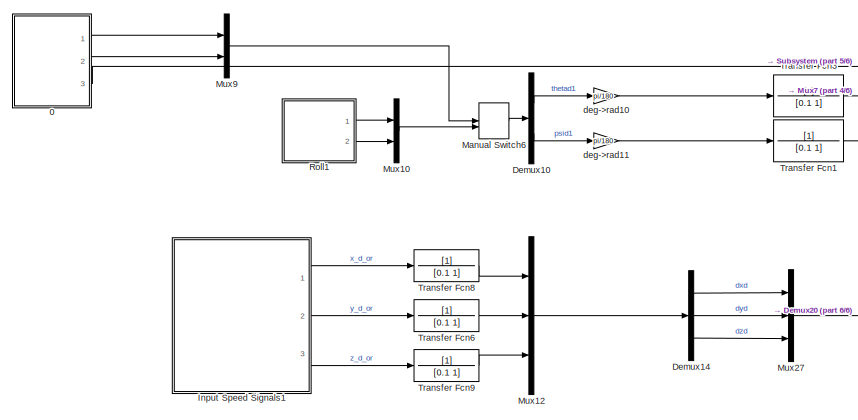
[diagram: root canvas - part 1/6, top left region]
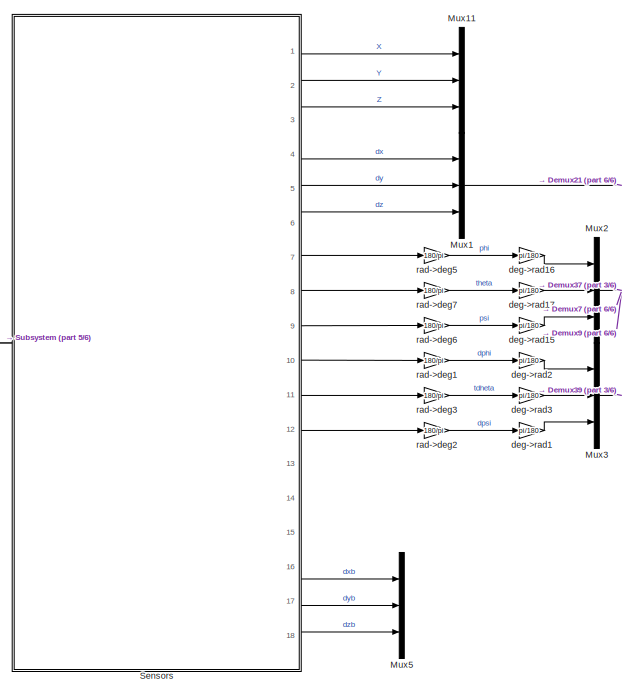
[diagram: root canvas - part 2/6, middle right region]
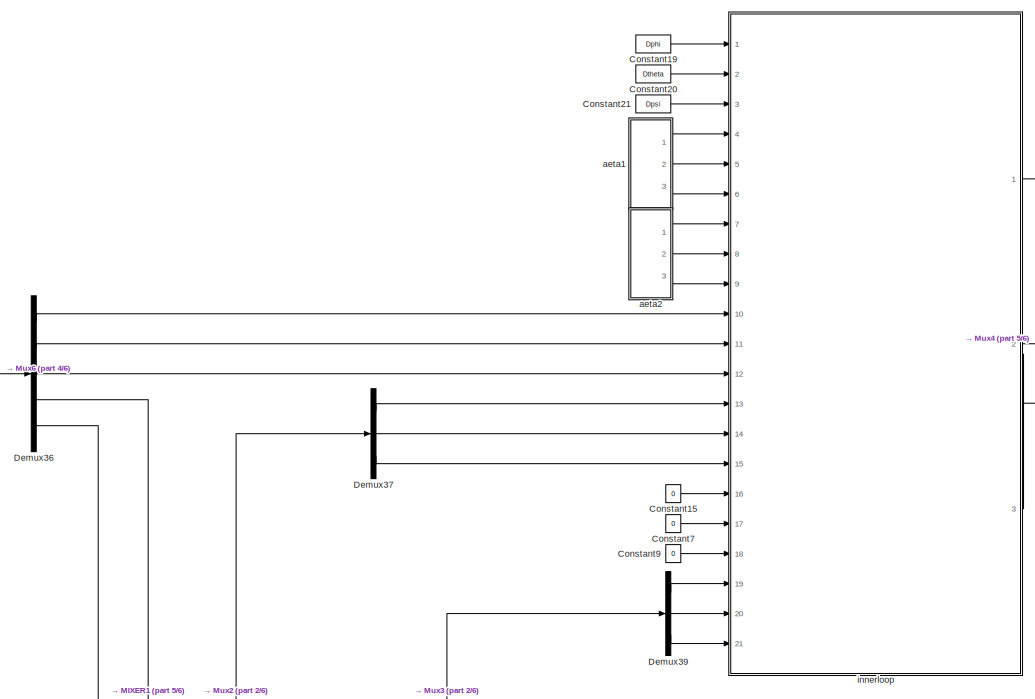
[diagram: root canvas - part 3/6, central region]
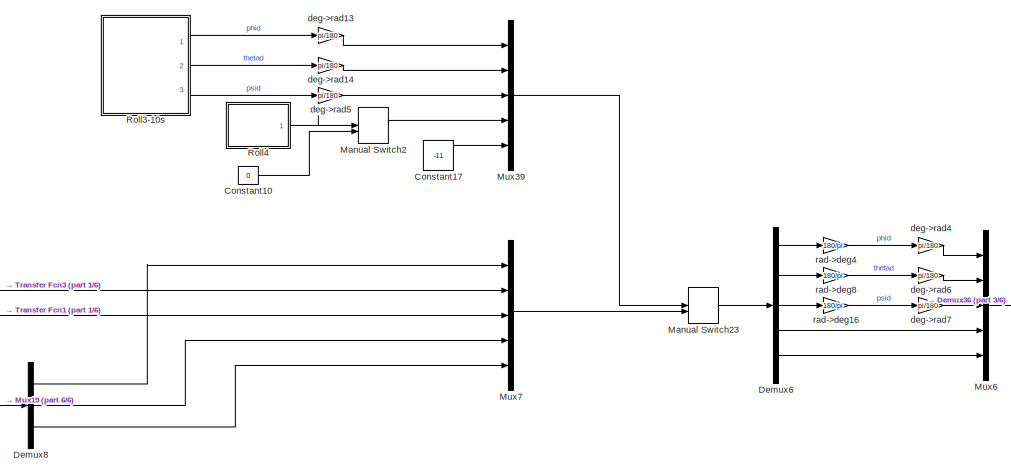
[diagram: root canvas - part 4/6, central region]
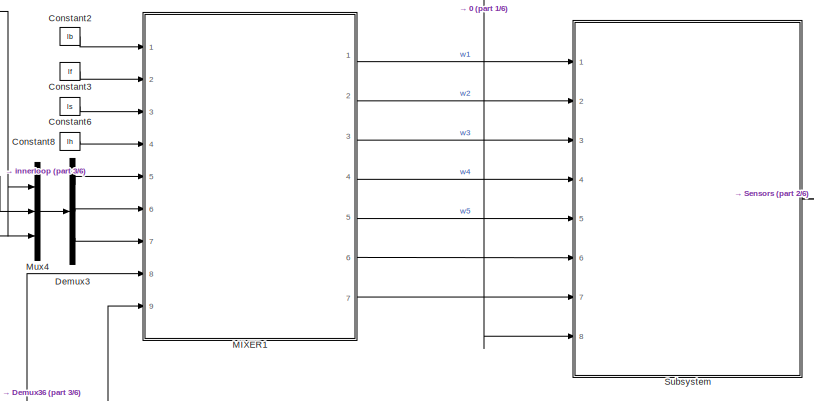
[diagram: root canvas - part 5/6, middle right region]
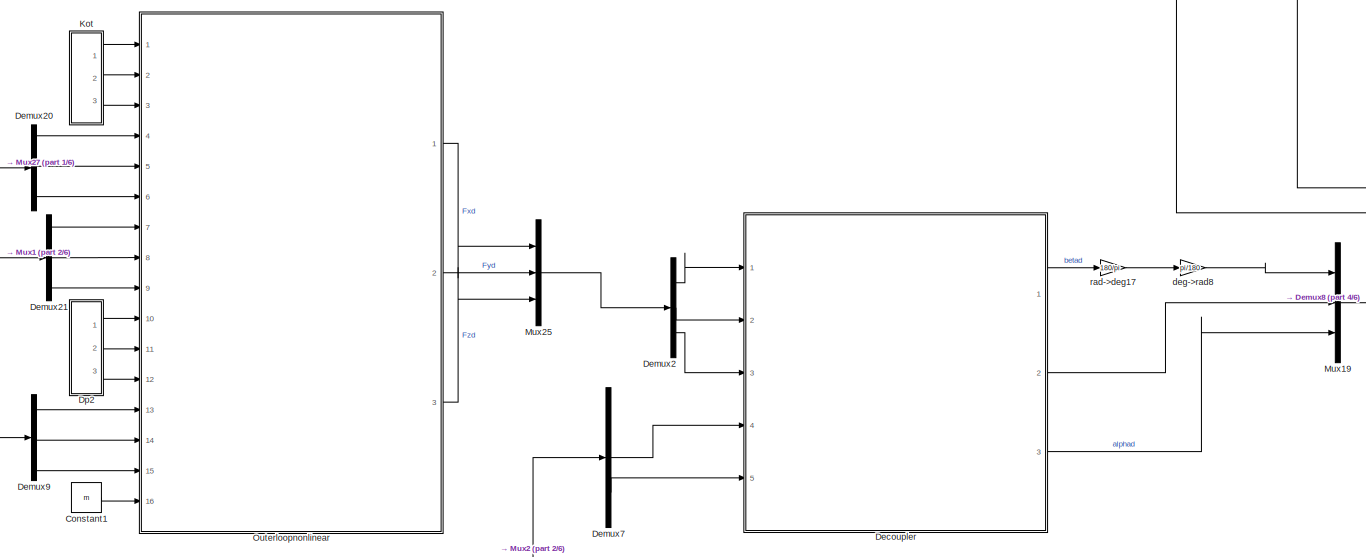
[diagram: root canvas - part 6/6, middle left region]
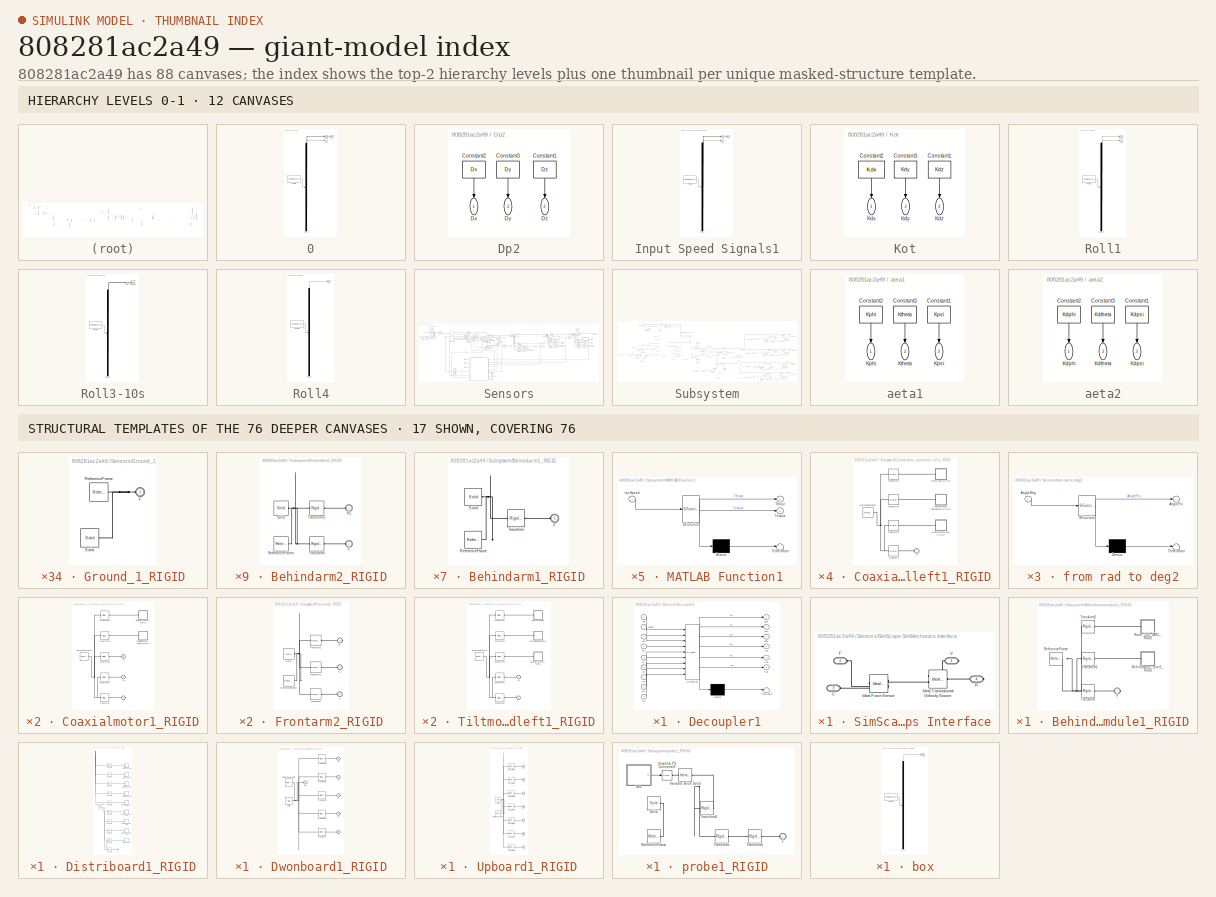
[diagram: thumbnail index - top-2 hierarchy levels (12 canvases) + 17 structural-template representatives of the remaining 76 canvases]
MODEL slx_808281ac2a49
KIND model
CONFIG AbsTol = auto
CONFIG EnableMultiTasking = off
CONFIG FixedStep = auto
CONFIG InitFcn = parameter_Tiltrotor;\ntime;
CONFIG MaxStep = auto
CONFIG MinStep = auto
CONFIG PreLoadFcn = parameter_Tiltrotor;\ntime;
CONFIG RelTol = 1e-3
CONFIG SampleTimeConstraint = Unconstrained
CONFIG Solver = VariableStepAuto
CONFIG SolverName = VariableStepAuto
CONFIG StartTime = 0.0
CONFIG StopTime = 60
WORKSPACE source: external: MATLAB File  (data not in archive)
BLOCK [SubSystem] 0
  ClipboardFcn = sigbuilder_block('clipboard');
  CloseFcn = sigbuilder_block('close');
  ContinueFcn = sigbuilder_block('continue');
  CopyFcn = sigbuilder_block('copy');
  DeleteFcn = sigbuilder_block('delete');
  LoadFcn = sigbuilder_block('load');
  MaskHideContents = on
  ModelCloseFcn = sigbuilder_block('modelClose');
  NameChangeFcn = sigbuilder_block('namechange');
  OpenFcn = sigbuilder_block('open',[1322.25 66 1162.5 420.75 ]);
  PauseFcn = sigbuilder_block('pause');
  Ports = [0, 3]
  PreSaveFcn = sigbuilder_block('preSave');
  RequestExecContextInheritance = off
  StartFcn = sigbuilder_block('start');
  StopFcn = sigbuilder_block('stop');
  Tag = STV Subsys
  Variant = off
BLOCK [Demux] 0/Demux
  Outputs = 3
  Ports = [1, 3]
  Tag = STV Demux
BLOCK [FromWorkspace] 0/FromWs
  SampleTime = 0
  Tag = STV FromWs
  VariableName = tuvar
  ZeroCross = on
BLOCK [Outport] 0/probe
  IconDisplay = Port number
  Port = 3
  Tag = STV Outport
BLOCK [Outport] 0/psid
  IconDisplay = Port number
  Port = 2
  Tag = STV Outport
BLOCK [Outport] 0/thetad
  IconDisplay = Port number
  Tag = STV Outport
BLOCK [Constant] Constant1
  Value = m
BLOCK [Constant] Constant10
  Value = 0
BLOCK [Constant] Constant15
  Value = 0
BLOCK [Constant] Constant17
  Value = -11
BLOCK [Constant] Constant19
  Value = Dphi
BLOCK [Constant] Constant2
  Value = lb
BLOCK [Constant] Constant20
  Value = Dtheta
BLOCK [Constant] Constant21
  Value = Dpsi
BLOCK [Constant] Constant3
  Value = lf
BLOCK [Constant] Constant6
  Value = ls
BLOCK [Constant] Constant7
  Value = 0
BLOCK [Constant] Constant8
  Value = lh
BLOCK [Constant] Constant9
  Value = 0
BLOCK [ModelReference] Decoupler
  CopyOfModelProtected = on
  ModelNameDialog = Decoupler0
  ModelReferenceVersion = 1.160
  Ports = [5, 3]
  Variant = off
BLOCK [Demux] Demux10
  DisplayOption = bar
  Outputs = 2
  Ports = [1, 2]
BLOCK [Demux] Demux14
  DisplayOption = bar
  Outputs = 3
  Ports = [1, 3]
BLOCK [Demux] Demux2
  DisplayOption = bar
  Outputs = 3
  Ports = [1, 3]
BLOCK [Demux] Demux20
  DisplayOption = bar
  Outputs = 3
  Ports = [1, 3]
BLOCK [Demux] Demux21
  DisplayOption = bar
  Outputs = 3
  Ports = [1, 3]
BLOCK [Demux] Demux3
  DisplayOption = bar
  Outputs = 3
  Ports = [1, 3]
BLOCK [Demux] Demux36
  DisplayOption = bar
  Outputs = 5
  Ports = [1, 5]
BLOCK [Demux] Demux37
  DisplayOption = bar
  Outputs = 3
  Ports = [1, 3]
BLOCK [Demux] Demux39
  DisplayOption = bar
  Outputs = 3
  Ports = [1, 3]
BLOCK [Demux] Demux6
  DisplayOption = bar
  Outputs = 5
  Ports = [1, 5]
BLOCK [Demux] Demux7
  DisplayOption = bar
  Outputs = 3
  Ports = [1, 3]
BLOCK [Demux] Demux8
  DisplayOption = bar
  Outputs = 3
  Ports = [1, 3]
BLOCK [Demux] Demux9
  DisplayOption = bar
  Outputs = 3
  Ports = [1, 3]
BLOCK [SubSystem] Dp2
  Ports = [0, 3]
  RequestExecContextInheritance = off
  Variant = off
BLOCK [Constant] Dp2/Constant1
  Value = Dz
BLOCK [Constant] Dp2/Constant2
  Value = Dx
BLOCK [Constant] Dp2/Constant3
  Value = Dy
BLOCK [Outport] Dp2/Dx
  IconDisplay = Port number
BLOCK [Outport] Dp2/Dy
  IconDisplay = Port number
  Port = 2
BLOCK [Outport] Dp2/Dz
  IconDisplay = Port number
  Port = 3
BLOCK [SubSystem] Input Speed Signals1
  ClipboardFcn = sigbuilder_block('clipboard');
  CloseFcn = sigbuilder_block('close');
  ContinueFcn = sigbuilder_block('continue');
  CopyFcn = sigbuilder_block('copy');
  DeleteFcn = sigbuilder_block('delete');
  LoadFcn = sigbuilder_block('load');
  MaskHideContents = on
  ModelCloseFcn = sigbuilder_block('modelClose');
  NameChangeFcn = sigbuilder_block('namechange');
  OpenFcn = sigbuilder_block('open',[57.75 0 966.75 517.5 ]);
  PauseFcn = sigbuilder_block('pause');
  Ports = [0, 3]
  PreSaveFcn = sigbuilder_block('preSave');
  RequestExecContextInheritance = off
  StartFcn = sigbuilder_block('start');
  StopFcn = sigbuilder_block('stop');
  Tag = STV Subsys
  Variant = off
BLOCK [Demux] Input Speed Signals1/Demux
  Outputs = 3
  Ports = [1, 3]
  Tag = STV Demux
BLOCK [FromWorkspace] Input Speed Signals1/FromWs
  SampleTime = 0
  Tag = STV FromWs
  VariableName = tuvar
  ZeroCross = on
BLOCK [Outport] Input Speed Signals1/dxd
  IconDisplay = Port number
  Tag = STV Outport
BLOCK [Outport] Input Speed Signals1/dyd
  IconDisplay = Port number
  Port = 2
  Tag = STV Outport
BLOCK [Outport] Input Speed Signals1/dzd
  IconDisplay = Port number
  Port = 3
  Tag = STV Outport
BLOCK [SubSystem] Kot
  Ports = [0, 3]
  RequestExecContextInheritance = off
  Variant = off
BLOCK [Constant] Kot/Constant1
  Value = Kdz
BLOCK [Constant] Kot/Constant2
  Value = Kdx
BLOCK [Constant] Kot/Constant3
  Value = Kdy
BLOCK [Outport] Kot/Kdx
  IconDisplay = Port number
BLOCK [Outport] Kot/Kdy
  IconDisplay = Port number
  Port = 2
BLOCK [Outport] Kot/Kdz
  IconDisplay = Port number
  Port = 3
BLOCK [ModelReference] MIXER1
  CopyOfModelProtected = on
  ModelNameDialog = MIXER10
  ModelReferenceVersion = 1.160
  Ports = [9, 7]
  Variant = off
BLOCK [ManualSwitch] Manual Switch2
BLOCK [ManualSwitch] Manual Switch23
  CurrentSetting = 0
BLOCK [ManualSwitch] Manual Switch6
BLOCK [Mux] Mux1
  DisplayOption = bar
  Inputs = 3
  Ports = [3, 1]
BLOCK [Mux] Mux10
  DisplayOption = bar
  Inputs = 2
  Ports = [2, 1]
BLOCK [Mux] Mux11
  DisplayOption = bar
  Inputs = 3
  Ports = [3, 1]
BLOCK [Mux] Mux12
  DisplayOption = bar
  Inputs = 3
  Ports = [3, 1]
BLOCK [Mux] Mux19
  DisplayOption = bar
  Inputs = 3
  Ports = [3, 1]
BLOCK [Mux] Mux2
  DisplayOption = bar
  Inputs = 3
  Ports = [3, 1]
BLOCK [Mux] Mux25
  DisplayOption = bar
  Inputs = 3
  Ports = [3, 1]
BLOCK [Mux] Mux27
  DisplayOption = bar
  Inputs = 3
  Ports = [3, 1]
BLOCK [Mux] Mux3
  DisplayOption = bar
  Inputs = 3
  Ports = [3, 1]
BLOCK [Mux] Mux39
  DisplayOption = bar
  Inputs = 5
  Ports = [5, 1]
BLOCK [Mux] Mux4
  DisplayOption = bar
  Inputs = 3
  Ports = [3, 1]
BLOCK [Mux] Mux5
  DisplayOption = bar
  Inputs = 3
  Ports = [3, 1]
BLOCK [Mux] Mux6
  DisplayOption = bar
  Inputs = 5
  Ports = [5, 1]
BLOCK [Mux] Mux7
  DisplayOption = bar
  Inputs = 5
  Ports = [5, 1]
BLOCK [Mux] Mux9
  DisplayOption = bar
  Inputs = 2
  Ports = [2, 1]
BLOCK [ModelReference] Outerloopnonlinear 
  CopyOfModelProtected = on
  ModelNameDialog = Outerloopnonlinear0
  ModelReferenceVersion = 1.160
  Ports = [16, 3]
  Variant = off
BLOCK [SubSystem] Roll1
  ClipboardFcn = sigbuilder_block('clipboard');
  CloseFcn = sigbuilder_block('close');
  ContinueFcn = sigbuilder_block('continue');
  CopyFcn = sigbuilder_block('copy');
  DeleteFcn = sigbuilder_block('delete');
  LoadFcn = sigbuilder_block('load');
  MaskHideContents = on
  ModelCloseFcn = sigbuilder_block('modelClose');
  NameChangeFcn = sigbuilder_block('namechange');
  OpenFcn = sigbuilder_block('open',[421.5 181.5 1012.5 423 ]);
  PauseFcn = sigbuilder_block('pause');
  Ports = [0, 2]
  PreSaveFcn = sigbuilder_block('preSave');
  RequestExecContextInheritance = off
  StartFcn = sigbuilder_block('start');
  StopFcn = sigbuilder_block('stop');
  Tag = STV Subsys
  Variant = off
BLOCK [Demux] Roll1/Demux
  Outputs = 2
  Ports = [1, 2]
  Tag = STV Demux
BLOCK [FromWorkspace] Roll1/FromWs
  SampleTime = 0
  Tag = STV FromWs
  VariableName = tuvar
  ZeroCross = on
BLOCK [Outport] Roll1/psid
  IconDisplay = Port number
  Port = 2
  Tag = STV Outport
BLOCK [Outport] Roll1/thetad
  IconDisplay = Port number
  Tag = STV Outport
BLOCK [SubSystem] Roll3-10s
  ClipboardFcn = sigbuilder_block('clipboard');
  CloseFcn = sigbuilder_block('close');
  ContinueFcn = sigbuilder_block('continue');
  CopyFcn = sigbuilder_block('copy');
  DeleteFcn = sigbuilder_block('delete');
  LoadFcn = sigbuilder_block('load');
  MaskHideContents = on
  ModelCloseFcn = sigbuilder_block('modelClose');
  NameChangeFcn = sigbuilder_block('namechange');
  OpenFcn = sigbuilder_block('open',[212.25 112.5 1012.5 505.5 ]);
  PauseFcn = sigbuilder_block('pause');
  Ports = [0, 3]
  PreSaveFcn = sigbuilder_block('preSave');
  RequestExecContextInheritance = off
  StartFcn = sigbuilder_block('start');
  StopFcn = sigbuilder_block('stop');
  Tag = STV Subsys
  Variant = off
BLOCK [Demux] Roll3-10s/Demux
  Outputs = 3
  Ports = [1, 3]
  Tag = STV Demux
BLOCK [FromWorkspace] Roll3-10s/FromWs
  SampleTime = 0
  Tag = STV FromWs
  VariableName = tuvar
  ZeroCross = on
BLOCK [Outport] Roll3-10s/Signal 1
  IconDisplay = Port number
  Port = 2
  Tag = STV Outport
BLOCK [Outport] Roll3-10s/Signal 2
  IconDisplay = Port number
  Port = 3
  Tag = STV Outport
BLOCK [Outport] Roll3-10s/test
  IconDisplay = Port number
  Tag = STV Outport
BLOCK [SubSystem] Roll4
  ClipboardFcn = sigbuilder_block('clipboard');
  CloseFcn = sigbuilder_block('close');
  ContinueFcn = sigbuilder_block('continue');
  CopyFcn = sigbuilder_block('copy');
  DeleteFcn = sigbuilder_block('delete');
  LoadFcn = sigbuilder_block('load');
  MaskHideContents = on
  ModelCloseFcn = sigbuilder_block('modelClose');
  NameChangeFcn = sigbuilder_block('namechange');
  OpenFcn = sigbuilder_block('open',[212.25 112.5 1012.5 505.5 ]);
  PauseFcn = sigbuilder_block('pause');
  Ports = [0, 1]
  PreSaveFcn = sigbuilder_block('preSave');
  RequestExecContextInheritance = off
  StartFcn = sigbuilder_block('start');
  StopFcn = sigbuilder_block('stop');
  Tag = STV Subsys
  Variant = off
BLOCK [Demux] Roll4/Demux
  Outputs = 1
  Ports = [1, 1]
  Tag = STV Demux
BLOCK [FromWorkspace] Roll4/FromWs
  SampleTime = 0
  Tag = STV FromWs
  VariableName = tuvar
  ZeroCross = on
BLOCK [Outport] Roll4/test
  IconDisplay = Port number
  Tag = STV Outport
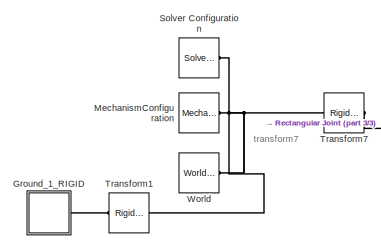
[diagram: Sensors - part 1/3, top left region]
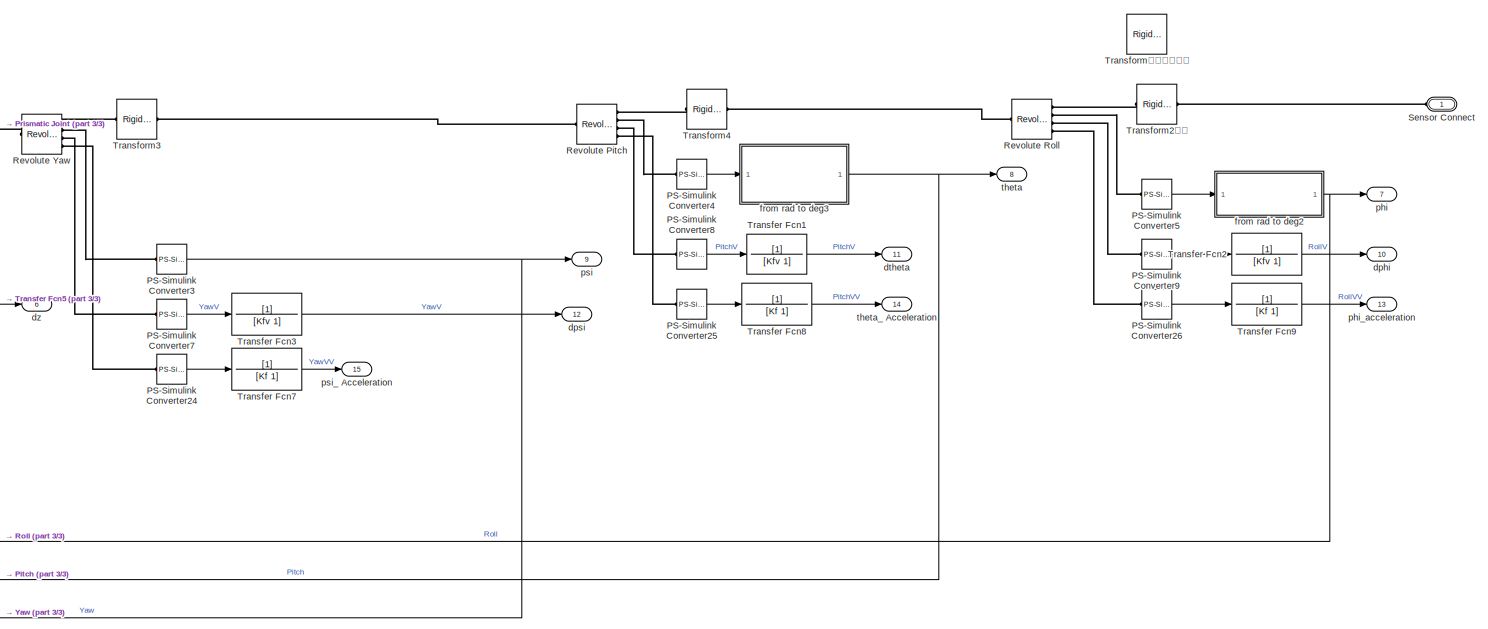
[diagram: Sensors - part 2/3, middle right region]
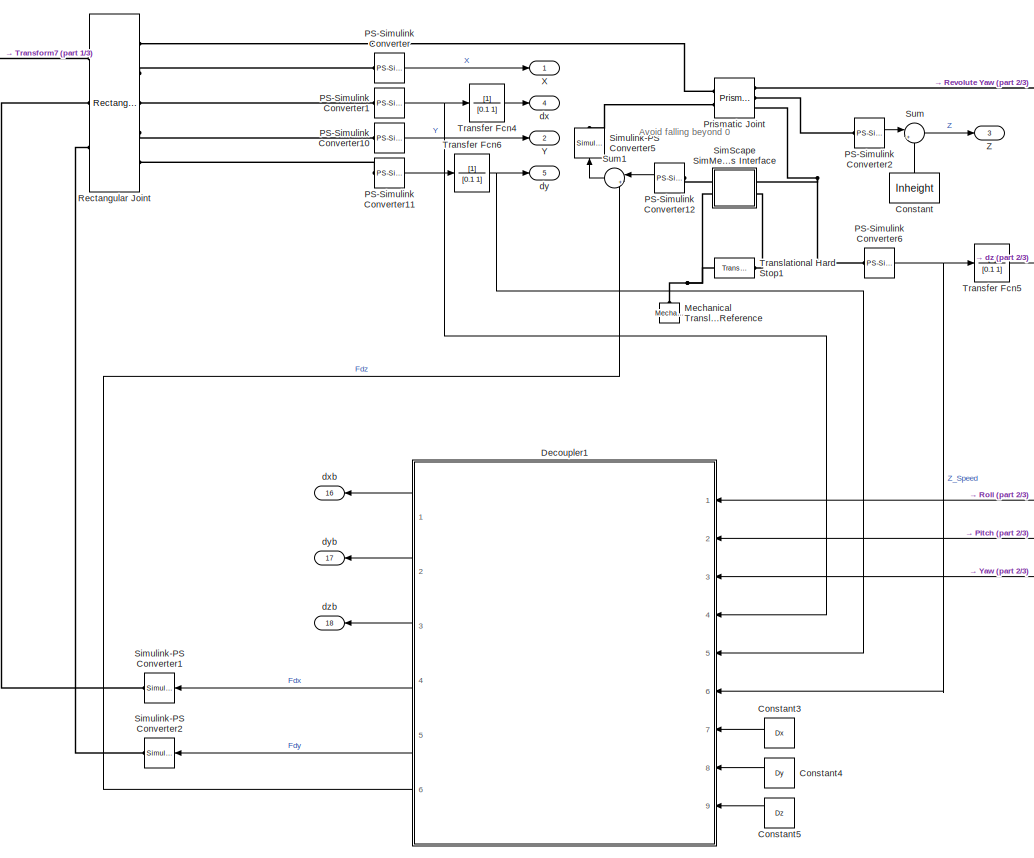
[diagram: Sensors - part 3/3, left side, full height]
BLOCK [SubSystem] Sensors
  Ports = [0, 18, 0, 0, 0, 1]
  RequestExecContextInheritance = off
  Variant = off
BLOCK [Constant] Sensors/Constant
  Value = Inheight
BLOCK [Constant] Sensors/Constant3
  Value = Dx
BLOCK [Constant] Sensors/Constant4
  Value = Dy
BLOCK [Constant] Sensors/Constant5
  Value = Dz
BLOCK [SubSystem] Sensors/Decoupler1
  ErrorFcn = Stateflow.Translate.translate
  PermitHierarchicalResolution = ExplicitOnly
  Ports = [9, 6]
  RequestExecContextInheritance = off
  SFBlockType = MATLAB Function
  TreatAsAtomicUnit = on
  Variant = off
BLOCK [Demux] Sensors/Decoupler1/ Demux 
  Outputs = 1
  Ports = [1, 1]
BLOCK [S-Function] Sensors/Decoupler1/ SFunction 
  EnableBusSupport = on
  FunctionName = sf_sfun
  PortCounts = [9 7]
  Ports = [9, 7]
  SFcnIsStateOwnerBlock = off
  SFunctionDeploymentMode = off
  Tag = Stateflow S-Function Tiltrotor_temp 11
BLOCK [Terminator] Sensors/Decoupler1/ Terminator 
BLOCK [Inport] Sensors/Decoupler1/Dx
  IconDisplay = Port number
  Port = 7
BLOCK [Inport] Sensors/Decoupler1/Dy
  IconDisplay = Port number
  Port = 8
BLOCK [Inport] Sensors/Decoupler1/Dz
  IconDisplay = Port number
  Port = 9
BLOCK [Outport] Sensors/Decoupler1/Fdx
  IconDisplay = Port number
  Port = 4
BLOCK [Outport] Sensors/Decoupler1/Fdy
  IconDisplay = Port number
  Port = 5
BLOCK [Outport] Sensors/Decoupler1/Fdz
  IconDisplay = Port number
  Port = 6
BLOCK [Inport] Sensors/Decoupler1/dx
  IconDisplay = Port number
  Port = 4
BLOCK [Outport] Sensors/Decoupler1/dxb
  IconDisplay = Port number
BLOCK [Inport] Sensors/Decoupler1/dy
  IconDisplay = Port number
  Port = 5
BLOCK [Outport] Sensors/Decoupler1/dyb
  IconDisplay = Port number
  Port = 2
BLOCK [Inport] Sensors/Decoupler1/dz
  IconDisplay = Port number
  Port = 6
BLOCK [Outport] Sensors/Decoupler1/dzb
  IconDisplay = Port number
  Port = 3
BLOCK [Inport] Sensors/Decoupler1/phi
  IconDisplay = Port number
BLOCK [Inport] Sensors/Decoupler1/psi
  IconDisplay = Port number
  Port = 3
BLOCK [Inport] Sensors/Decoupler1/theta
  IconDisplay = Port number
  Port = 2
BLOCK [SubSystem] Sensors/Ground_1_RIGID
  Ports = [0, 0, 0, 0, 0, 1]
  RequestExecContextInheritance = off
  Variant = off
BLOCK [PMIOPort] Sensors/Ground_1_RIGID/F
  Port = 1
  Side = Left
BLOCK [Reference] Sensors/Ground_1_RIGID/ReferenceFrame  REF=sm_lib/Frames and
Transforms/Reference
Frame
  Ports = [0, 0, 0, 0, 0, 0, 1]
  SourceBlock = sm_lib/Frames and\nTransforms/Reference\nFrame
  SourceProductBaseCode = MS
  SourceProductName = Simscape Multibody
  SourceType = Reference\nFrame
BLOCK [Reference] Sensors/Ground_1_RIGID/Solid  REF=sm_lib/Body Elements/Solid
  Ports = [0, 0, 0, 0, 0, 0, 1]
  SourceBlock = sm_lib/Body Elements/Solid
  SourceProductBaseCode = MS
  SourceProductName = Simscape Multibody
  SourceType = Solid
BLOCK [Reference] Sensors/Mechanical Translational Reference  REF=fl_lib/Mechanical/Translational
Elements/Mechanical
Translational
Reference
  Ports = [0, 0, 0, 0, 0, 1]
  SourceBlock = fl_lib/Mechanical/Translational\nElements/Mechanical\nTranslational\nReference
  SourceProductBaseCode = SS
  SourceProductName = Simscape
  SourceType = Mechanical\nTranslational\nReference
BLOCK [Reference] Sensors/MechanismConfiguration  REF=sm_lib/Utilities/Mechanism
Configuration
  Ports = [0, 0, 0, 0, 0, 0, 1]
  SourceBlock = sm_lib/Utilities/Mechanism\nConfiguration
  SourceProductBaseCode = MS
  SourceProductName = Simscape Multibody
  SourceType = Mechanism\nConfiguration
BLOCK [Reference] Sensors/PS-Simulink Converter  REF=nesl_utility/PS-Simulink
Converter
  Ports = [0, 1, 0, 0, 0, 1]
  SourceBlock = nesl_utility/PS-Simulink\nConverter
  SourceProductBaseCode = SS
  SourceProductName = Simscape
  SourceType = PS-Simulink\nConverter
BLOCK [Reference] Sensors/PS-Simulink Converter1  REF=nesl_utility/PS-Simulink
Converter
  Ports = [0, 1, 0, 0, 0, 1]
  SourceBlock = nesl_utility/PS-Simulink\nConverter
  SourceProductBaseCode = SS
  SourceProductName = Simscape
  SourceType = PS-Simulink\nConverter
BLOCK [Reference] Sensors/PS-Simulink Converter10  REF=nesl_utility/PS-Simulink
Converter
  Ports = [0, 1, 0, 0, 0, 1]
  SourceBlock = nesl_utility/PS-Simulink\nConverter
  SourceProductBaseCode = SS
  SourceProductName = Simscape
  SourceType = PS-Simulink\nConverter
BLOCK [Reference] Sensors/PS-Simulink Converter11  REF=nesl_utility/PS-Simulink
Converter
  Ports = [0, 1, 0, 0, 0, 1]
  SourceBlock = nesl_utility/PS-Simulink\nConverter
  SourceProductBaseCode = SS
  SourceProductName = Simscape
  SourceType = PS-Simulink\nConverter
BLOCK [Reference] Sensors/PS-Simulink Converter12  REF=nesl_utility/PS-Simulink
Converter
  Ports = [0, 1, 0, 0, 0, 1]
  SourceBlock = nesl_utility/PS-Simulink\nConverter
  SourceProductBaseCode = SS
  SourceProductName = Simscape
  SourceType = PS-Simulink\nConverter
BLOCK [Reference] Sensors/PS-Simulink Converter2  REF=nesl_utility/PS-Simulink
Converter
  Ports = [0, 1, 0, 0, 0, 1]
  SourceBlock = nesl_utility/PS-Simulink\nConverter
  SourceProductBaseCode = SS
  SourceProductName = Simscape
  SourceType = PS-Simulink\nConverter
BLOCK [Reference] Sensors/PS-Simulink Converter24  REF=nesl_utility/PS-Simulink
Converter
  Ports = [0, 1, 0, 0, 0, 1]
  SourceBlock = nesl_utility/PS-Simulink\nConverter
  SourceProductBaseCode = SS
  SourceProductName = Simscape
  SourceType = PS-Simulink\nConverter
BLOCK [Reference] Sensors/PS-Simulink Converter25  REF=nesl_utility/PS-Simulink
Converter
  Ports = [0, 1, 0, 0, 0, 1]
  SourceBlock = nesl_utility/PS-Simulink\nConverter
  SourceProductBaseCode = SS
  SourceProductName = Simscape
  SourceType = PS-Simulink\nConverter
BLOCK [Reference] Sensors/PS-Simulink Converter26  REF=nesl_utility/PS-Simulink
Converter
  Ports = [0, 1, 0, 0, 0, 1]
  SourceBlock = nesl_utility/PS-Simulink\nConverter
  SourceProductBaseCode = SS
  SourceProductName = Simscape
  SourceType = PS-Simulink\nConverter
BLOCK [Reference] Sensors/PS-Simulink Converter3  REF=nesl_utility/PS-Simulink
Converter
  Ports = [0, 1, 0, 0, 0, 1]
  SourceBlock = nesl_utility/PS-Simulink\nConverter
  SourceProductBaseCode = SS
  SourceProductName = Simscape
  SourceType = PS-Simulink\nConverter
BLOCK [Reference] Sensors/PS-Simulink Converter4  REF=nesl_utility/PS-Simulink
Converter
  Ports = [0, 1, 0, 0, 0, 1]
  SourceBlock = nesl_utility/PS-Simulink\nConverter
  SourceProductBaseCode = SS
  SourceProductName = Simscape
  SourceType = PS-Simulink\nConverter
BLOCK [Reference] Sensors/PS-Simulink Converter5  REF=nesl_utility/PS-Simulink
Converter
  Ports = [0, 1, 0, 0, 0, 1]
  SourceBlock = nesl_utility/PS-Simulink\nConverter
  SourceProductBaseCode = SS
  SourceProductName = Simscape
  SourceType = PS-Simulink\nConverter
BLOCK [Reference] Sensors/PS-Simulink Converter6  REF=nesl_utility/PS-Simulink
Converter
  Ports = [0, 1, 0, 0, 0, 1]
  SourceBlock = nesl_utility/PS-Simulink\nConverter
  SourceProductBaseCode = SS
  SourceProductName = Simscape
  SourceType = PS-Simulink\nConverter
BLOCK [Reference] Sensors/PS-Simulink Converter7  REF=nesl_utility/PS-Simulink
Converter
  Ports = [0, 1, 0, 0, 0, 1]
  SourceBlock = nesl_utility/PS-Simulink\nConverter
  SourceProductBaseCode = SS
  SourceProductName = Simscape
  SourceType = PS-Simulink\nConverter
BLOCK [Reference] Sensors/PS-Simulink Converter8  REF=nesl_utility/PS-Simulink
Converter
  Ports = [0, 1, 0, 0, 0, 1]
  SourceBlock = nesl_utility/PS-Simulink\nConverter
  SourceProductBaseCode = SS
  SourceProductName = Simscape
  SourceType = PS-Simulink\nConverter
BLOCK [Reference] Sensors/PS-Simulink Converter9  REF=nesl_utility/PS-Simulink
Converter
  Ports = [0, 1, 0, 0, 0, 1]
  SourceBlock = nesl_utility/PS-Simulink\nConverter
  SourceProductBaseCode = SS
  SourceProductName = Simscape
  SourceType = PS-Simulink\nConverter
BLOCK [Reference] Sensors/Prismatic Joint  REF=sm_lib/Joints/Prismatic
Joint
  Ports = [0, 0, 0, 0, 0, 2, 3]
  SourceBlock = sm_lib/Joints/Prismatic\nJoint
  SourceProductBaseCode = MS
  SourceProductName = Simscape Multibody
  SourceType = Prismatic\nJoint
BLOCK [Reference] Sensors/Rectangular Joint  REF=sm_lib/Joints/Rectangular
Joint
  Ports = [0, 0, 0, 0, 0, 3, 5]
  SourceBlock = sm_lib/Joints/Rectangular\nJoint
  SourceProductBaseCode = MS
  SourceProductName = Simscape Multibody
  SourceType = Rectangular\nJoint
BLOCK [Reference] Sensors/Revolute Pitch  REF=sm_lib/Joints/Revolute Joint
  Ports = [0, 0, 0, 0, 0, 1, 4]
  SourceBlock = sm_lib/Joints/Revolute Joint
  SourceProductBaseCode = MS
  SourceProductName = Simscape Multibody
  SourceType = Revolute Joint
BLOCK [Reference] Sensors/Revolute Roll  REF=sm_lib/Joints/Revolute Joint
  Ports = [0, 0, 0, 0, 0, 1, 4]
  SourceBlock = sm_lib/Joints/Revolute Joint
  SourceProductBaseCode = MS
  SourceProductName = Simscape Multibody
  SourceType = Revolute Joint
BLOCK [Reference] Sensors/Revolute Yaw  REF=sm_lib/Joints/Revolute Joint
  Ports = [0, 0, 0, 0, 0, 1, 4]
  SourceBlock = sm_lib/Joints/Revolute Joint
  SourceProductBaseCode = MS
  SourceProductName = Simscape Multibody
  SourceType = Revolute Joint
BLOCK [PMIOPort] Sensors/Sensor Connect
  Port = 1
  Side = Left
BLOCK [SubSystem] Sensors/SimScape SimMechanics Interface
  Ports = [0, 0, 0, 0, 0, 2, 2]
  RequestExecContextInheritance = off
  Variant = off
BLOCK [PMIOPort] Sensors/SimScape SimMechanics Interface/C
  Port = 3
  Side = Left
BLOCK [PMIOPort] Sensors/SimScape SimMechanics Interface/F
  Port = 2
  Side = Left
BLOCK [Reference] Sensors/SimScape SimMechanics Interface/Ideal Force Sensor  REF=fl_lib/Mechanical/Mechanical Sensors/Ideal Force Sensor
  Ports = [0, 0, 0, 0, 0, 1, 2]
  SourceBlock = fl_lib/Mechanical/Mechanical Sensors/Ideal Force Sensor
  SourceProductBaseCode = SS
  SourceProductName = Simscape
  SourceType = Ideal Force Sensor
BLOCK [Reference] Sensors/SimScape SimMechanics Interface/Ideal Translational Velocity Source  REF=fl_lib/Mechanical/Mechanical Sources/Ideal Translational
Velocity Source
  Ports = [0, 0, 0, 0, 0, 1, 2]
  SourceBlock = fl_lib/Mechanical/Mechanical Sources/Ideal Translational\nVelocity Source
  SourceProductBaseCode = SS
  SourceProductName = Simscape
  SourceType = Ideal Translational\nVelocity Source
BLOCK [PMIOPort] Sensors/SimScape SimMechanics Interface/R
  Port = 4
  Side = Right
BLOCK [PMIOPort] Sensors/SimScape SimMechanics Interface/V
  Port = 1
  Side = Right
BLOCK [Reference] Sensors/Simulink-PS Converter1  REF=nesl_utility/Simulink-PS
Converter
  Ports = [1, 0, 0, 0, 0, 0, 1]
  SourceBlock = nesl_utility/Simulink-PS\nConverter
  SourceProductBaseCode = SS
  SourceProductName = Simscape
  SourceType = Simulink-PS\nConverter
BLOCK [Reference] Sensors/Simulink-PS Converter2  REF=nesl_utility/Simulink-PS
Converter
  Ports = [1, 0, 0, 0, 0, 0, 1]
  SourceBlock = nesl_utility/Simulink-PS\nConverter
  SourceProductBaseCode = SS
  SourceProductName = Simscape
  SourceType = Simulink-PS\nConverter
BLOCK [Reference] Sensors/Simulink-PS Converter5  REF=nesl_utility/Simulink-PS
Converter
  Ports = [1, 0, 0, 0, 0, 0, 1]
  SourceBlock = nesl_utility/Simulink-PS\nConverter
  SourceProductBaseCode = SS
  SourceProductName = Simscape
  SourceType = Simulink-PS\nConverter
BLOCK [Reference] Sensors/Solver Configuration  REF=nesl_utility/Solver
Configuration
  Ports = [0, 0, 0, 0, 0, 0, 1]
  SourceBlock = nesl_utility/Solver\nConfiguration
  SourceProductBaseCode = SS
  SourceProductName = Simscape
  SourceType = Solver\nConfiguration
BLOCK [Sum] Sensors/Sum
  IconShape = round
  InputSameDT = off
  Inputs = |++
  OutDataTypeStr = Inherit: Inherit via internal rule
  Ports = [2, 1]
  SaturateOnIntegerOverflow = off
BLOCK [Sum] Sensors/Sum1
  IconShape = round
  InputSameDT = off
  Inputs = |++
  OutDataTypeStr = Inherit: Inherit via internal rule
  Ports = [2, 1]
  SaturateOnIntegerOverflow = off
BLOCK [TransferFcn] Sensors/Transfer Fcn1
  Denominator = [Kfv 1]
BLOCK [TransferFcn] Sensors/Transfer Fcn2
  Denominator = [Kfv 1]
BLOCK [TransferFcn] Sensors/Transfer Fcn3
  Denominator = [Kfv 1]
BLOCK [TransferFcn] Sensors/Transfer Fcn4
  Denominator = [0.1 1]
BLOCK [TransferFcn] Sensors/Transfer Fcn5
  Denominator = [0.1 1]
BLOCK [TransferFcn] Sensors/Transfer Fcn6
  Denominator = [0.1 1]
BLOCK [TransferFcn] Sensors/Transfer Fcn7
  Denominator = [Kf 1]
BLOCK [TransferFcn] Sensors/Transfer Fcn8
  Denominator = [Kf 1]
BLOCK [TransferFcn] Sensors/Transfer Fcn9
  Denominator = [Kf 1]
BLOCK [Reference] Sensors/Transform1  REF=sm_lib/Frames and
Transforms/Rigid
Transform
  Ports = [0, 0, 0, 0, 0, 1, 1]
  SourceBlock = sm_lib/Frames and\nTransforms/Rigid\nTransform
  SourceProductBaseCode = MS
  SourceProductName = Simscape Multibody
  SourceType = Rigid\nTransform
BLOCK [Reference] Sensors/Transform2总体  REF=sm_lib/Frames and
Transforms/Rigid
Transform
  Ports = [0, 0, 0, 0, 0, 1, 1]
  SourceBlock = sm_lib/Frames and\nTransforms/Rigid\nTransform
  SourceProductBaseCode = MS
  SourceProductName = Simscape Multibody
  SourceType = Rigid\nTransform
BLOCK [Reference] Sensors/Transform3  REF=sm_lib/Frames and
Transforms/Rigid
Transform
  Ports = [0, 0, 0, 0, 0, 1, 1]
  SourceBlock = sm_lib/Frames and\nTransforms/Rigid\nTransform
  SourceProductBaseCode = MS
  SourceProductName = Simscape Multibody
  SourceType = Rigid\nTransform
BLOCK [Reference] Sensors/Transform4  REF=sm_lib/Frames and
Transforms/Rigid
Transform
  Ports = [0, 0, 0, 0, 0, 1, 1]
  SourceBlock = sm_lib/Frames and\nTransforms/Rigid\nTransform
  SourceProductBaseCode = MS
  SourceProductName = Simscape Multibody
  SourceType = Rigid\nTransform
BLOCK [Reference] Sensors/Transform7  REF=sm_lib/Frames and
Transforms/Rigid
Transform
  Ports = [0, 0, 0, 0, 0, 1, 1]
  SourceBlock = sm_lib/Frames and\nTransforms/Rigid\nTransform
  SourceProductBaseCode = MS
  SourceProductName = Simscape Multibody
  SourceType = Rigid\nTransform
BLOCK [Reference] Sensors/Transform机体模块分开  REF=sm_lib/Frames and
Transforms/Rigid
Transform
  Ports = [0, 0, 0, 0, 0, 1, 1]
  SourceBlock = sm_lib/Frames and\nTransforms/Rigid\nTransform
  SourceProductBaseCode = MS
  SourceProductName = Simscape Multibody
  SourceType = Rigid\nTransform
BLOCK [Reference] Sensors/Translational Hard Stop1  REF=fl_lib/Mechanical/Translational
Elements/Translational Hard
Stop
  Ports = [0, 0, 0, 0, 0, 1, 1]
  SourceBlock = fl_lib/Mechanical/Translational\nElements/Translational Hard\nStop
  SourceProductBaseCode = SS
  SourceProductName = Simscape
  SourceType = Translational Hard\nStop
BLOCK [Reference] Sensors/World  REF=sm_lib/Frames and
Transforms/World Frame
  Ports = [0, 0, 0, 0, 0, 0, 1]
  SourceBlock = sm_lib/Frames and\nTransforms/World Frame
  SourceProductBaseCode = MS
  SourceProductName = Simscape Multibody
  SourceType = World Frame
BLOCK [Outport] Sensors/X
  IconDisplay = Port number
BLOCK [Outport] Sensors/Y
  IconDisplay = Port number
  Port = 2
BLOCK [Outport] Sensors/Z
  IconDisplay = Port number
  Port = 3
BLOCK [Outport] Sensors/dphi
  IconDisplay = Port number
  Port = 10
BLOCK [Outport] Sensors/dpsi
  IconDisplay = Port number
  Port = 12
BLOCK [Outport] Sensors/dtheta
  IconDisplay = Port number
  Port = 11
BLOCK [Outport] Sensors/dx
  IconDisplay = Port number
  Port = 4
BLOCK [Outport] Sensors/dxb
  IconDisplay = Port number
  Port = 16
BLOCK [Outport] Sensors/dy
  IconDisplay = Port number
  Port = 5
BLOCK [Outport] Sensors/dyb
  IconDisplay = Port number
  Port = 17
BLOCK [Outport] Sensors/dz
  IconDisplay = Port number
  Port = 6
BLOCK [Outport] Sensors/dzb
  IconDisplay = Port number
  Port = 18
BLOCK [SubSystem] Sensors/from rad to deg2
  ErrorFcn = Stateflow.Translate.translate
  PermitHierarchicalResolution = ExplicitOnly
  Ports = [1, 1]
  RequestExecContextInheritance = off
  SFBlockType = MATLAB Function
  TreatAsAtomicUnit = on
  Variant = off
BLOCK [Demux] Sensors/from rad to deg2/ Demux 
  Outputs = 1
  Ports = [1, 1]
BLOCK [S-Function] Sensors/from rad to deg2/ SFunction 
  EnableBusSupport = on
  FunctionName = sf_sfun
  PortCounts = [1 2]
  Ports = [1, 2]
  SFcnIsStateOwnerBlock = off
  SFunctionDeploymentMode = off
  Tag = Stateflow S-Function Tiltrotor_temp 7
BLOCK [Terminator] Sensors/from rad to deg2/ Terminator 
BLOCK [Inport] Sensors/from rad to deg2/AngleDeg
  IconDisplay = Port number
BLOCK [Outport] Sensors/from rad to deg2/AngleFix
  IconDisplay = Port number
BLOCK [SubSystem] Sensors/from rad to deg3
  ErrorFcn = Stateflow.Translate.translate
  PermitHierarchicalResolution = ExplicitOnly
  Ports = [1, 1]
  RequestExecContextInheritance = off
  SFBlockType = MATLAB Function
  TreatAsAtomicUnit = on
  Variant = off
BLOCK [Demux] Sensors/from rad to deg3/ Demux 
  Outputs = 1
  Ports = [1, 1]
BLOCK [S-Function] Sensors/from rad to deg3/ SFunction 
  EnableBusSupport = on
  FunctionName = sf_sfun
  PortCounts = [1 2]
  Ports = [1, 2]
  SFcnIsStateOwnerBlock = off
  SFunctionDeploymentMode = off
  Tag = Stateflow S-Function Tiltrotor_temp 6
BLOCK [Terminator] Sensors/from rad to deg3/ Terminator 
BLOCK [Inport] Sensors/from rad to deg3/AngleDeg
  IconDisplay = Port number
BLOCK [Outport] Sensors/from rad to deg3/AngleFix
  IconDisplay = Port number
BLOCK [Outport] Sensors/phi
  IconDisplay = Port number
  Port = 7
BLOCK [Outport] Sensors/phi_acceleration
  IconDisplay = Port number
  Port = 13
BLOCK [Outport] Sensors/psi
  IconDisplay = Port number
  Port = 9
BLOCK [Outport] Sensors/psi_ Acceleration
  IconDisplay = Port number
  Port = 15
BLOCK [Outport] Sensors/theta
  IconDisplay = Port number
  Port = 8
BLOCK [Outport] Sensors/theta_ Acceleration
  IconDisplay = Port number
  Port = 14
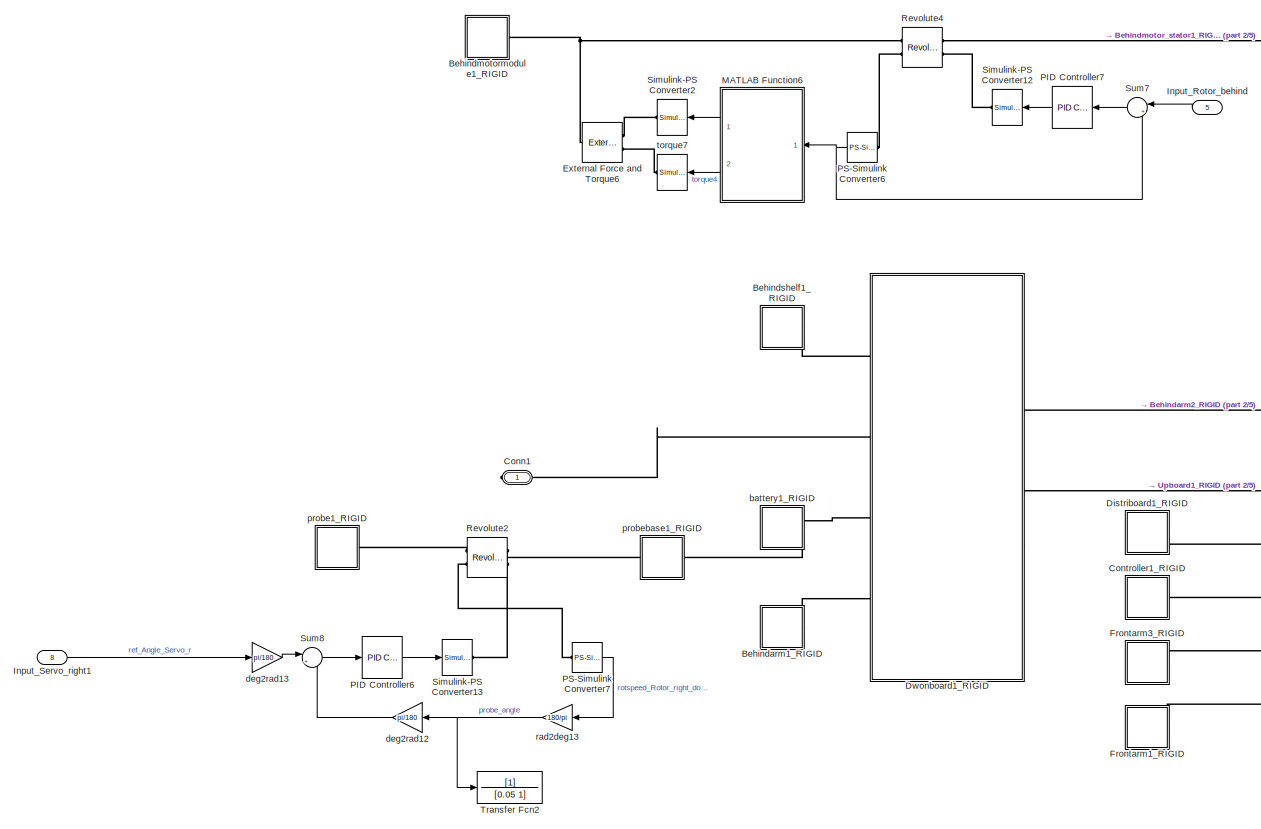
[diagram: Subsystem - part 1/5, middle left region]
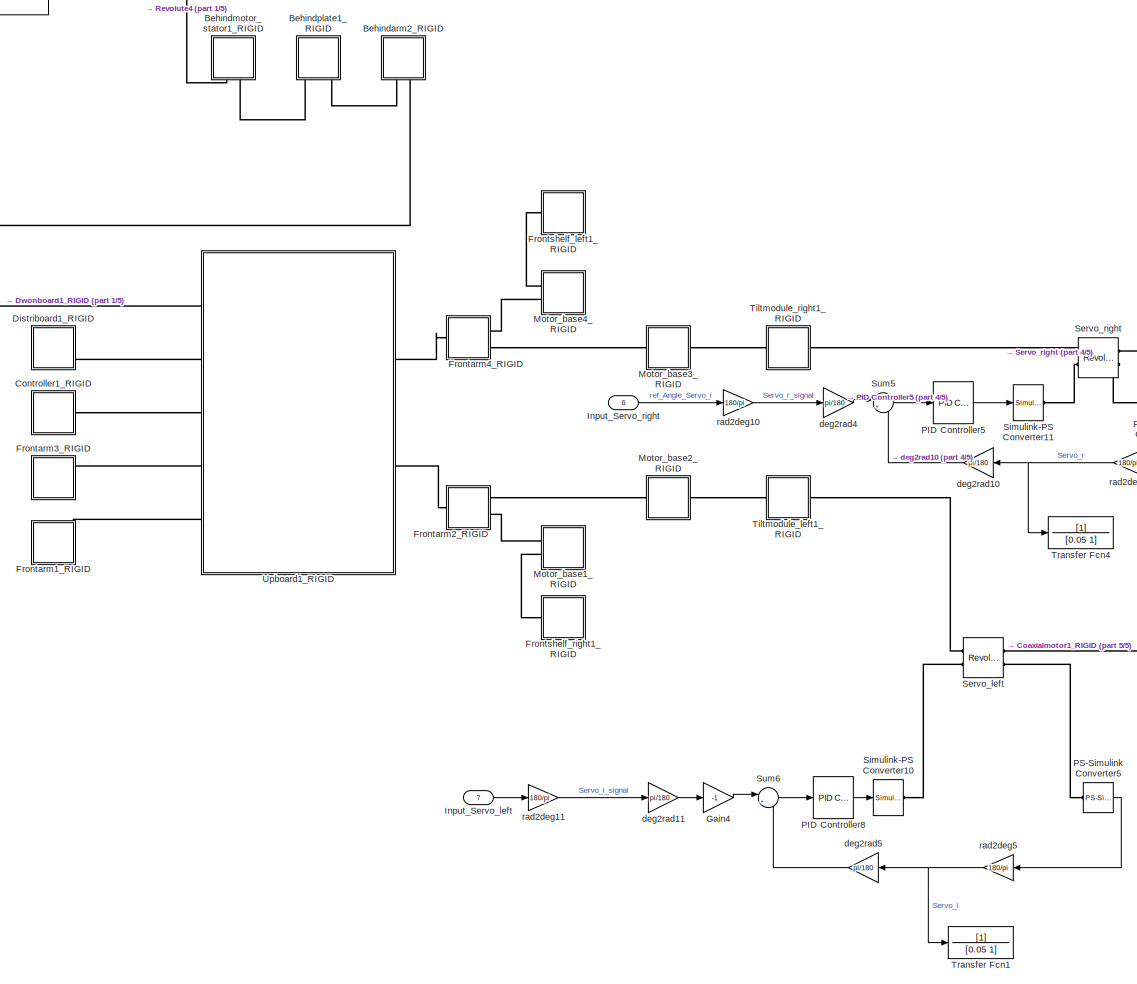
[diagram: Subsystem - part 2/5, center side, full height]
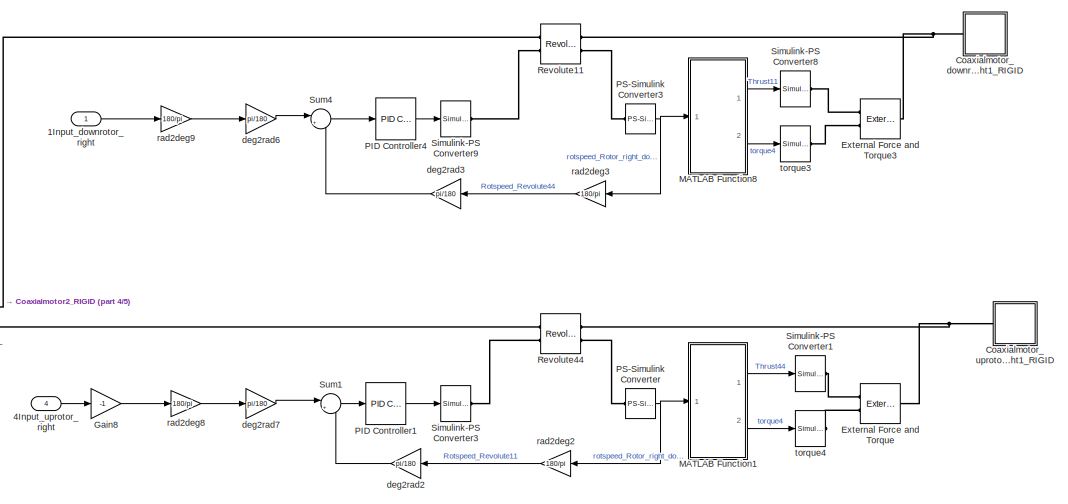
[diagram: Subsystem - part 3/5, middle right region]
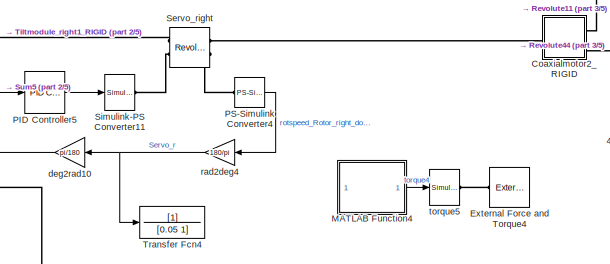
[diagram: Subsystem - part 4/5, central region]
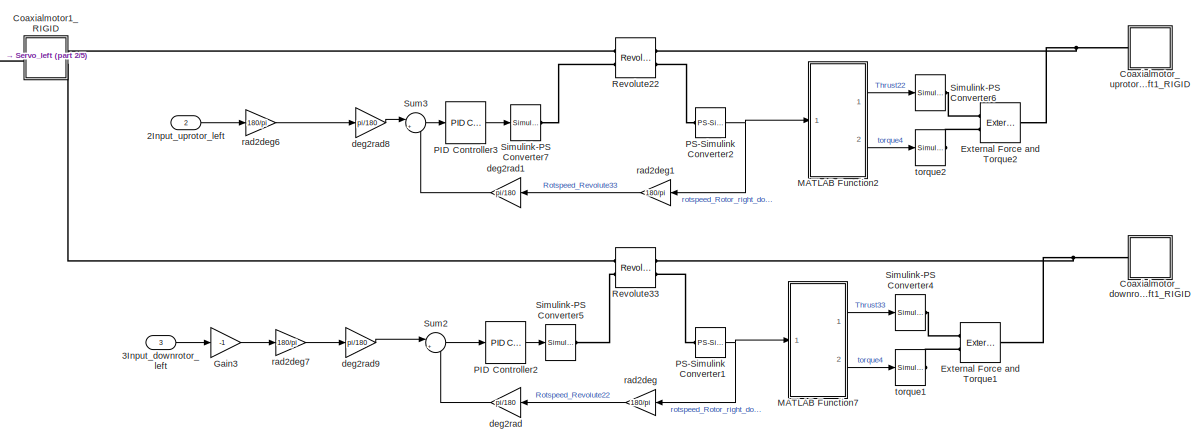
[diagram: Subsystem - part 5/5, bottom right region]
BLOCK [SubSystem] Subsystem
  Ports = [8, 0, 0, 0, 0, 0, 1]
  RequestExecContextInheritance = off
  Variant = off
BLOCK [Inport] Subsystem/1Input_downrotor_right
  IconDisplay = Port number
BLOCK [Inport] Subsystem/2Input_uprotor_left
  IconDisplay = Port number
  Port = 2
BLOCK [Inport] Subsystem/3Input_downrotor_left
  IconDisplay = Port number
  Port = 3
BLOCK [Inport] Subsystem/4Input_uprotor_right
  IconDisplay = Port number
  Port = 4
BLOCK [SubSystem] Subsystem/Behindarm1_RIGID
  Ports = [0, 0, 0, 0, 0, 1]
  RequestExecContextInheritance = off
  Variant = off
BLOCK [PMIOPort] Subsystem/Behindarm1_RIGID/F
  Port = 1
  Side = Left
BLOCK [Reference] Subsystem/Behindarm1_RIGID/ReferenceFrame  REF=sm_lib/Frames and
Transforms/Reference
Frame
  Ports = [0, 0, 0, 0, 0, 0, 1]
  SourceBlock = sm_lib/Frames and\nTransforms/Reference\nFrame
  SourceProductBaseCode = MS
  SourceProductName = Simscape Multibody
  SourceType = Reference\nFrame
BLOCK [Reference] Subsystem/Behindarm1_RIGID/Solid  REF=sm_lib/Body Elements/Solid
  Ports = [0, 0, 0, 0, 0, 0, 1]
  SourceBlock = sm_lib/Body Elements/Solid
  SourceProductBaseCode = MS
  SourceProductName = Simscape Multibody
  SourceType = Solid
BLOCK [Reference] Subsystem/Behindarm1_RIGID/Transform  REF=sm_lib/Frames and
Transforms/Rigid
Transform
  Ports = [0, 0, 0, 0, 0, 1, 1]
  SourceBlock = sm_lib/Frames and\nTransforms/Rigid\nTransform
  SourceProductBaseCode = MS
  SourceProductName = Simscape Multibody
  SourceType = Rigid\nTransform
BLOCK [SubSystem] Subsystem/Behindarm2_RIGID
  Ports = [0, 0, 0, 0, 0, 2]
  RequestExecContextInheritance = off
  Variant = off
BLOCK [PMIOPort] Subsystem/Behindarm2_RIGID/F
  Port = 1
  Side = Left
BLOCK [PMIOPort] Subsystem/Behindarm2_RIGID/F1
  Port = 2
  Side = Left
BLOCK [Reference] Subsystem/Behindarm2_RIGID/ReferenceFrame  REF=sm_lib/Frames and
Transforms/Reference
Frame
  Ports = [0, 0, 0, 0, 0, 0, 1]
  SourceBlock = sm_lib/Frames and\nTransforms/Reference\nFrame
  SourceProductBaseCode = MS
  SourceProductName = Simscape Multibody
  SourceType = Reference\nFrame
BLOCK [Reference] Subsystem/Behindarm2_RIGID/Solid  REF=sm_lib/Body Elements/Solid
  Ports = [0, 0, 0, 0, 0, 0, 1]
  SourceBlock = sm_lib/Body Elements/Solid
  SourceProductBaseCode = MS
  SourceProductName = Simscape Multibody
  SourceType = Solid
BLOCK [Reference] Subsystem/Behindarm2_RIGID/Transform  REF=sm_lib/Frames and
Transforms/Rigid
Transform
  Ports = [0, 0, 0, 0, 0, 1, 1]
  SourceBlock = sm_lib/Frames and\nTransforms/Rigid\nTransform
  SourceProductBaseCode = MS
  SourceProductName = Simscape Multibody
  SourceType = Rigid\nTransform
BLOCK [Reference] Subsystem/Behindarm2_RIGID/Transform1  REF=sm_lib/Frames and
Transforms/Rigid
Transform
  Ports = [0, 0, 0, 0, 0, 1, 1]
  SourceBlock = sm_lib/Frames and\nTransforms/Rigid\nTransform
  SourceProductBaseCode = MS
  SourceProductName = Simscape Multibody
  SourceType = Rigid\nTransform
BLOCK [SubSystem] Subsystem/Behindmotor_stator1_RIGID
  Ports = [0, 0, 0, 0, 0, 2]
  RequestExecContextInheritance = off
  Variant = off
BLOCK [PMIOPort] Subsystem/Behindmotor_stator1_RIGID/F
  Port = 2
  Side = Left
BLOCK [PMIOPort] Subsystem/Behindmotor_stator1_RIGID/F1
  Port = 1
  Side = Left
BLOCK [Reference] Subsystem/Behindmotor_stator1_RIGID/ReferenceFrame  REF=sm_lib/Frames and
Transforms/Reference
Frame
  Ports = [0, 0, 0, 0, 0, 0, 1]
  SourceBlock = sm_lib/Frames and\nTransforms/Reference\nFrame
  SourceProductBaseCode = MS
  SourceProductName = Simscape Multibody
  SourceType = Reference\nFrame
BLOCK [Reference] Subsystem/Behindmotor_stator1_RIGID/Solid  REF=sm_lib/Body Elements/Solid
  Ports = [0, 0, 0, 0, 0, 0, 1]
  SourceBlock = sm_lib/Body Elements/Solid
  SourceProductBaseCode = MS
  SourceProductName = Simscape Multibody
  SourceType = Solid
BLOCK [Reference] Subsystem/Behindmotor_stator1_RIGID/Transform  REF=sm_lib/Frames and
Transforms/Rigid
Transform
  Ports = [0, 0, 0, 0, 0, 1, 1]
  SourceBlock = sm_lib/Frames and\nTransforms/Rigid\nTransform
  SourceProductBaseCode = MS
  SourceProductName = Simscape Multibody
  SourceType = Rigid\nTransform
BLOCK [Reference] Subsystem/Behindmotor_stator1_RIGID/Transform1  REF=sm_lib/Frames and
Transforms/Rigid
Transform
  Ports = [0, 0, 0, 0, 0, 1, 1]
  SourceBlock = sm_lib/Frames and\nTransforms/Rigid\nTransform
  SourceProductBaseCode = MS
  SourceProductName = Simscape Multibody
  SourceType = Rigid\nTransform
BLOCK [SubSystem] Subsystem/Behindmotormodule1_RIGID
  Ports = [0, 0, 0, 0, 0, 0, 1]
  RequestExecContextInheritance = off
  Variant = off
BLOCK [SubSystem] Subsystem/Behindmotormodule1_RIGID/Behindmotor_rotor1_RIGID
  Ports = [0, 0, 0, 0, 0, 1]
  RequestExecContextInheritance = off
  Variant = off
BLOCK [PMIOPort] Subsystem/Behindmotormodule1_RIGID/Behindmotor_rotor1_RIGID/F
  Port = 1
  Side = Left
BLOCK [Reference] Subsystem/Behindmotormodule1_RIGID/Behindmotor_rotor1_RIGID/ReferenceFrame  REF=sm_lib/Frames and
Transforms/Reference
Frame
  Ports = [0, 0, 0, 0, 0, 0, 1]
  SourceBlock = sm_lib/Frames and\nTransforms/Reference\nFrame
  SourceProductBaseCode = MS
  SourceProductName = Simscape Multibody
  SourceType = Reference\nFrame
BLOCK [Reference] Subsystem/Behindmotormodule1_RIGID/Behindmotor_rotor1_RIGID/Solid  REF=sm_lib/Body Elements/Solid
  Ports = [0, 0, 0, 0, 0, 0, 1]
  SourceBlock = sm_lib/Body Elements/Solid
  SourceProductBaseCode = MS
  SourceProductName = Simscape Multibody
  SourceType = Solid
BLOCK [PMIOPort] Subsystem/Behindmotormodule1_RIGID/F
  Port = 1
  Side = Right
BLOCK [Reference] Subsystem/Behindmotormodule1_RIGID/ReferenceFrame  REF=sm_lib/Frames and
Transforms/Reference
Frame
  Ports = [0, 0, 0, 0, 0, 0, 1]
  SourceBlock = sm_lib/Frames and\nTransforms/Reference\nFrame
  SourceProductBaseCode = MS
  SourceProductName = Simscape Multibody
  SourceType = Reference\nFrame
BLOCK [SubSystem] Subsystem/Behindmotormodule1_RIGID/Rotor_200_MIR1_RIGID
  Ports = [0, 0, 0, 0, 0, 1]
  RequestExecContextInheritance = off
  Variant = off
BLOCK [PMIOPort] Subsystem/Behindmotormodule1_RIGID/Rotor_200_MIR1_RIGID/F
  Port = 1
  Side = Left
BLOCK [Reference] Subsystem/Behindmotormodule1_RIGID/Rotor_200_MIR1_RIGID/ReferenceFrame  REF=sm_lib/Frames and
Transforms/Reference
Frame
  Ports = [0, 0, 0, 0, 0, 0, 1]
  SourceBlock = sm_lib/Frames and\nTransforms/Reference\nFrame
  SourceProductBaseCode = MS
  SourceProductName = Simscape Multibody
  SourceType = Reference\nFrame
BLOCK [Reference] Subsystem/Behindmotormodule1_RIGID/Rotor_200_MIR1_RIGID/Solid  REF=sm_lib/Body Elements/Solid
  Ports = [0, 0, 0, 0, 0, 0, 1]
  SourceBlock = sm_lib/Body Elements/Solid
  SourceProductBaseCode = MS
  SourceProductName = Simscape Multibody
  SourceType = Solid
BLOCK [Reference] Subsystem/Behindmotormodule1_RIGID/Transform  REF=sm_lib/Frames and
Transforms/Rigid
Transform
  Ports = [0, 0, 0, 0, 0, 1, 1]
  SourceBlock = sm_lib/Frames and\nTransforms/Rigid\nTransform
  SourceProductBaseCode = MS
  SourceProductName = Simscape Multibody
  SourceType = Rigid\nTransform
BLOCK [Reference] Subsystem/Behindmotormodule1_RIGID/Transform1  REF=sm_lib/Frames and
Transforms/Rigid
Transform
  Ports = [0, 0, 0, 0, 0, 1, 1]
  SourceBlock = sm_lib/Frames and\nTransforms/Rigid\nTransform
  SourceProductBaseCode = MS
  SourceProductName = Simscape Multibody
  SourceType = Rigid\nTransform
BLOCK [Reference] Subsystem/Behindmotormodule1_RIGID/Transform2  REF=sm_lib/Frames and
Transforms/Rigid
Transform
  Ports = [0, 0, 0, 0, 0, 1, 1]
  SourceBlock = sm_lib/Frames and\nTransforms/Rigid\nTransform
  SourceProductBaseCode = MS
  SourceProductName = Simscape Multibody
  SourceType = Rigid\nTransform
BLOCK [SubSystem] Subsystem/Behindplate1_RIGID
  Ports = [0, 0, 0, 0, 0, 2]
  RequestExecContextInheritance = off
  Variant = off
BLOCK [PMIOPort] Subsystem/Behindplate1_RIGID/F
  Port = 2
  Side = Left
BLOCK [PMIOPort] Subsystem/Behindplate1_RIGID/F1
  Port = 1
  Side = Left
BLOCK [Reference] Subsystem/Behindplate1_RIGID/ReferenceFrame  REF=sm_lib/Frames and
Transforms/Reference
Frame
  Ports = [0, 0, 0, 0, 0, 0, 1]
  SourceBlock = sm_lib/Frames and\nTransforms/Reference\nFrame
  SourceProductBaseCode = MS
  SourceProductName = Simscape Multibody
  SourceType = Reference\nFrame
BLOCK [Reference] Subsystem/Behindplate1_RIGID/Solid  REF=sm_lib/Body Elements/Solid
  Ports = [0, 0, 0, 0, 0, 0, 1]
  SourceBlock = sm_lib/Body Elements/Solid
  SourceProductBaseCode = MS
  SourceProductName = Simscape Multibody
  SourceType = Solid
BLOCK [Reference] Subsystem/Behindplate1_RIGID/Transform  REF=sm_lib/Frames and
Transforms/Rigid
Transform
  Ports = [0, 0, 0, 0, 0, 1, 1]
  SourceBlock = sm_lib/Frames and\nTransforms/Rigid\nTransform
  SourceProductBaseCode = MS
  SourceProductName = Simscape Multibody
  SourceType = Rigid\nTransform
BLOCK [Reference] Subsystem/Behindplate1_RIGID/Transform1  REF=sm_lib/Frames and
Transforms/Rigid
Transform
  Ports = [0, 0, 0, 0, 0, 1, 1]
  SourceBlock = sm_lib/Frames and\nTransforms/Rigid\nTransform
  SourceProductBaseCode = MS
  SourceProductName = Simscape Multibody
  SourceType = Rigid\nTransform
BLOCK [SubSystem] Subsystem/Behindshelf1_RIGID
  Ports = [0, 0, 0, 0, 0, 1]
  RequestExecContextInheritance = off
  Variant = off
BLOCK [PMIOPort] Subsystem/Behindshelf1_RIGID/F
  Port = 1
  Side = Left
BLOCK [Reference] Subsystem/Behindshelf1_RIGID/ReferenceFrame  REF=sm_lib/Frames and
Transforms/Reference
Frame
  Ports = [0, 0, 0, 0, 0, 0, 1]
  SourceBlock = sm_lib/Frames and\nTransforms/Reference\nFrame
  SourceProductBaseCode = MS
  SourceProductName = Simscape Multibody
  SourceType = Reference\nFrame
BLOCK [Reference] Subsystem/Behindshelf1_RIGID/Solid  REF=sm_lib/Body Elements/Solid
  Ports = [0, 0, 0, 0, 0, 0, 1]
  SourceBlock = sm_lib/Body Elements/Solid
  SourceProductBaseCode = MS
  SourceProductName = Simscape Multibody
  SourceType = Solid
BLOCK [Reference] Subsystem/Behindshelf1_RIGID/Transform  REF=sm_lib/Frames and
Transforms/Rigid
Transform
  Ports = [0, 0, 0, 0, 0, 1, 1]
  SourceBlock = sm_lib/Frames and\nTransforms/Rigid\nTransform
  SourceProductBaseCode = MS
  SourceProductName = Simscape Multibody
  SourceType = Rigid\nTransform
BLOCK [SubSystem] Subsystem/Coaxialmotor1_RIGID
  Ports = [0, 0, 0, 0, 0, 1, 2]
  RequestExecContextInheritance = off
  Variant = off
BLOCK [SubSystem] Subsystem/Coaxialmotor1_RIGID/Coaxialmotor_base1_RIGID
  Ports = [0, 0, 0, 0, 0, 1]
  RequestExecContextInheritance = off
  Variant = off
BLOCK [PMIOPort] Subsystem/Coaxialmotor1_RIGID/Coaxialmotor_base1_RIGID/F
  Port = 1
  Side = Left
BLOCK [Reference] Subsystem/Coaxialmotor1_RIGID/Coaxialmotor_base1_RIGID/ReferenceFrame  REF=sm_lib/Frames and
Transforms/Reference
Frame
  Ports = [0, 0, 0, 0, 0, 0, 1]
  SourceBlock = sm_lib/Frames and\nTransforms/Reference\nFrame
  SourceProductBaseCode = MS
  SourceProductName = Simscape Multibody
  SourceType = Reference\nFrame
BLOCK [Reference] Subsystem/Coaxialmotor1_RIGID/Coaxialmotor_base1_RIGID/Solid  REF=sm_lib/Body Elements/Solid
  Ports = [0, 0, 0, 0, 0, 0, 1]
  SourceBlock = sm_lib/Body Elements/Solid
  SourceProductBaseCode = MS
  SourceProductName = Simscape Multibody
  SourceType = Solid
BLOCK [PMIOPort] Subsystem/Coaxialmotor1_RIGID/F
  Port = 3
  Side = Right
BLOCK [PMIOPort] Subsystem/Coaxialmotor1_RIGID/F1
  Port = 2
  Side = Right
BLOCK [PMIOPort] Subsystem/Coaxialmotor1_RIGID/F2
  Port = 1
  Side = Left
BLOCK [Reference] Subsystem/Coaxialmotor1_RIGID/ReferenceFrame  REF=sm_lib/Frames and
Transforms/Reference
Frame
  Ports = [0, 0, 0, 0, 0, 0, 1]
  SourceBlock = sm_lib/Frames and\nTransforms/Reference\nFrame
  SourceProductBaseCode = MS
  SourceProductName = Simscape Multibody
  SourceType = Reference\nFrame
BLOCK [SubSystem] Subsystem/Coaxialmotor1_RIGID/Tiltbase_rotor1_RIGID
  Ports = [0, 0, 0, 0, 0, 1]
  RequestExecContextInheritance = off
  Variant = off
BLOCK [PMIOPort] Subsystem/Coaxialmotor1_RIGID/Tiltbase_rotor1_RIGID/F
  Port = 1
  Side = Left
BLOCK [Reference] Subsystem/Coaxialmotor1_RIGID/Tiltbase_rotor1_RIGID/ReferenceFrame  REF=sm_lib/Frames and
Transforms/Reference
Frame
  Ports = [0, 0, 0, 0, 0, 0, 1]
  SourceBlock = sm_lib/Frames and\nTransforms/Reference\nFrame
  SourceProductBaseCode = MS
  SourceProductName = Simscape Multibody
  SourceType = Reference\nFrame
BLOCK [Reference] Subsystem/Coaxialmotor1_RIGID/Tiltbase_rotor1_RIGID/Solid  REF=sm_lib/Body Elements/Solid
  Ports = [0, 0, 0, 0, 0, 0, 1]
  SourceBlock = sm_lib/Body Elements/Solid
  SourceProductBaseCode = MS
  SourceProductName = Simscape Multibody
  SourceType = Solid
BLOCK [Reference] Subsystem/Coaxialmotor1_RIGID/Transform  REF=sm_lib/Frames and
Transforms/Rigid
Transform
  Ports = [0, 0, 0, 0, 0, 1, 1]
  SourceBlock = sm_lib/Frames and\nTransforms/Rigid\nTransform
  SourceProductBaseCode = MS
  SourceProductName = Simscape Multibody
  SourceType = Rigid\nTransform
BLOCK [Reference] Subsystem/Coaxialmotor1_RIGID/Transform1  REF=sm_lib/Frames and
Transforms/Rigid
Transform
  Ports = [0, 0, 0, 0, 0, 1, 1]
  SourceBlock = sm_lib/Frames and\nTransforms/Rigid\nTransform
  SourceProductBaseCode = MS
  SourceProductName = Simscape Multibody
  SourceType = Rigid\nTransform
BLOCK [Reference] Subsystem/Coaxialmotor1_RIGID/Transform2  REF=sm_lib/Frames and
Transforms/Rigid
Transform
  Ports = [0, 0, 0, 0, 0, 1, 1]
  SourceBlock = sm_lib/Frames and\nTransforms/Rigid\nTransform
  SourceProductBaseCode = MS
  SourceProductName = Simscape Multibody
  SourceType = Rigid\nTransform
BLOCK [Reference] Subsystem/Coaxialmotor1_RIGID/Transform3  REF=sm_lib/Frames and
Transforms/Rigid
Transform
  Ports = [0, 0, 0, 0, 0, 1, 1]
  SourceBlock = sm_lib/Frames and\nTransforms/Rigid\nTransform
  SourceProductBaseCode = MS
  SourceProductName = Simscape Multibody
  SourceType = Rigid\nTransform
BLOCK [Reference] Subsystem/Coaxialmotor1_RIGID/Transform4  REF=sm_lib/Frames and
Transforms/Rigid
Transform
  Ports = [0, 0, 0, 0, 0, 1, 1]
  SourceBlock = sm_lib/Frames and\nTransforms/Rigid\nTransform
  SourceProductBaseCode = MS
  SourceProductName = Simscape Multibody
  SourceType = Rigid\nTransform
BLOCK [SubSystem] Subsystem/Coaxialmotor2_RIGID
  Ports = [0, 0, 0, 0, 0, 1, 2]
  RequestExecContextInheritance = off
  Variant = off
BLOCK [SubSystem] Subsystem/Coaxialmotor2_RIGID/Coaxialmotor_base1_RIGID
  Ports = [0, 0, 0, 0, 0, 1]
  RequestExecContextInheritance = off
  Variant = off
BLOCK [PMIOPort] Subsystem/Coaxialmotor2_RIGID/Coaxialmotor_base1_RIGID/F
  Port = 1
  Side = Left
BLOCK [Reference] Subsystem/Coaxialmotor2_RIGID/Coaxialmotor_base1_RIGID/ReferenceFrame  REF=sm_lib/Frames and
Transforms/Reference
Frame
  Ports = [0, 0, 0, 0, 0, 0, 1]
  SourceBlock = sm_lib/Frames and\nTransforms/Reference\nFrame
  SourceProductBaseCode = MS
  SourceProductName = Simscape Multibody
  SourceType = Reference\nFrame
BLOCK [Reference] Subsystem/Coaxialmotor2_RIGID/Coaxialmotor_base1_RIGID/Solid  REF=sm_lib/Body Elements/Solid
  Ports = [0, 0, 0, 0, 0, 0, 1]
  SourceBlock = sm_lib/Body Elements/Solid
  SourceProductBaseCode = MS
  SourceProductName = Simscape Multibody
  SourceType = Solid
BLOCK [PMIOPort] Subsystem/Coaxialmotor2_RIGID/F
  Port = 3
  Side = Right
BLOCK [PMIOPort] Subsystem/Coaxialmotor2_RIGID/F1
  Port = 2
  Side = Left
BLOCK [PMIOPort] Subsystem/Coaxialmotor2_RIGID/F2
  Port = 1
  Side = Right
BLOCK [Reference] Subsystem/Coaxialmotor2_RIGID/ReferenceFrame  REF=sm_lib/Frames and
Transforms/Reference
Frame
  Ports = [0, 0, 0, 0, 0, 0, 1]
  SourceBlock = sm_lib/Frames and\nTransforms/Reference\nFrame
  SourceProductBaseCode = MS
  SourceProductName = Simscape Multibody
  SourceType = Reference\nFrame
BLOCK [SubSystem] Subsystem/Coaxialmotor2_RIGID/Tiltbase_rotor1_RIGID
  Ports = [0, 0, 0, 0, 0, 1]
  RequestExecContextInheritance = off
  Variant = off
BLOCK [PMIOPort] Subsystem/Coaxialmotor2_RIGID/Tiltbase_rotor1_RIGID/F
  Port = 1
  Side = Left
BLOCK [Reference] Subsystem/Coaxialmotor2_RIGID/Tiltbase_rotor1_RIGID/ReferenceFrame  REF=sm_lib/Frames and
Transforms/Reference
Frame
  Ports = [0, 0, 0, 0, 0, 0, 1]
  SourceBlock = sm_lib/Frames and\nTransforms/Reference\nFrame
  SourceProductBaseCode = MS
  SourceProductName = Simscape Multibody
  SourceType = Reference\nFrame
BLOCK [Reference] Subsystem/Coaxialmotor2_RIGID/Tiltbase_rotor1_RIGID/Solid  REF=sm_lib/Body Elements/Solid
  Ports = [0, 0, 0, 0, 0, 0, 1]
  SourceBlock = sm_lib/Body Elements/Solid
  SourceProductBaseCode = MS
  SourceProductName = Simscape Multibody
  SourceType = Solid
BLOCK [Reference] Subsystem/Coaxialmotor2_RIGID/Transform  REF=sm_lib/Frames and
Transforms/Rigid
Transform
  Ports = [0, 0, 0, 0, 0, 1, 1]
  SourceBlock = sm_lib/Frames and\nTransforms/Rigid\nTransform
  SourceProductBaseCode = MS
  SourceProductName = Simscape Multibody
  SourceType = Rigid\nTransform
BLOCK [Reference] Subsystem/Coaxialmotor2_RIGID/Transform1  REF=sm_lib/Frames and
Transforms/Rigid
Transform
  Ports = [0, 0, 0, 0, 0, 1, 1]
  SourceBlock = sm_lib/Frames and\nTransforms/Rigid\nTransform
  SourceProductBaseCode = MS
  SourceProductName = Simscape Multibody
  SourceType = Rigid\nTransform
BLOCK [Reference] Subsystem/Coaxialmotor2_RIGID/Transform2  REF=sm_lib/Frames and
Transforms/Rigid
Transform
  Ports = [0, 0, 0, 0, 0, 1, 1]
  SourceBlock = sm_lib/Frames and\nTransforms/Rigid\nTransform
  SourceProductBaseCode = MS
  SourceProductName = Simscape Multibody
  SourceType = Rigid\nTransform
BLOCK [Reference] Subsystem/Coaxialmotor2_RIGID/Transform3  REF=sm_lib/Frames and
Transforms/Rigid
Transform
  Ports = [0, 0, 0, 0, 0, 1, 1]
  SourceBlock = sm_lib/Frames and\nTransforms/Rigid\nTransform
  SourceProductBaseCode = MS
  SourceProductName = Simscape Multibody
  SourceType = Rigid\nTransform
BLOCK [Reference] Subsystem/Coaxialmotor2_RIGID/Transform4  REF=sm_lib/Frames and
Transforms/Rigid
Transform
  Ports = [0, 0, 0, 0, 0, 1, 1]
  SourceBlock = sm_lib/Frames and\nTransforms/Rigid\nTransform
  SourceProductBaseCode = MS
  SourceProductName = Simscape Multibody
  SourceType = Rigid\nTransform
BLOCK [SubSystem] Subsystem/Coaxialmotor_downrotor_left1_RIGID
  Ports = [0, 0, 0, 0, 0, 1]
  RequestExecContextInheritance = off
  Variant = off
BLOCK [SubSystem] Subsystem/Coaxialmotor_downrotor_left1_RIGID/Coaxialmotor_downcover1_RIGID
  Ports = [0, 0, 0, 0, 0, 1]
  RequestExecContextInheritance = off
  Variant = off
BLOCK [PMIOPort] Subsystem/Coaxialmotor_downrotor_left1_RIGID/Coaxialmotor_downcover1_RIGID/F
  Port = 1
  Side = Left
BLOCK [Reference] Subsystem/Coaxialmotor_downrotor_left1_RIGID/Coaxialmotor_downcover1_RIGID/ReferenceFrame  REF=sm_lib/Frames and
Transforms/Reference
Frame
  Ports = [0, 0, 0, 0, 0, 0, 1]
  SourceBlock = sm_lib/Frames and\nTransforms/Reference\nFrame
  SourceProductBaseCode = MS
  SourceProductName = Simscape Multibody
  SourceType = Reference\nFrame
BLOCK [Reference] Subsystem/Coaxialmotor_downrotor_left1_RIGID/Coaxialmotor_downcover1_RIGID/Solid  REF=sm_lib/Body Elements/Solid
  Ports = [0, 0, 0, 0, 0, 0, 1]
  SourceBlock = sm_lib/Body Elements/Solid
  SourceProductBaseCode = MS
  SourceProductName = Simscape Multibody
  SourceType = Solid
BLOCK [SubSystem] Subsystem/Coaxialmotor_downrotor_left1_RIGID/Coaxialmotor_up1_RIGID
  Ports = [0, 0, 0, 0, 0, 1]
  RequestExecContextInheritance = off
  Variant = off
BLOCK [PMIOPort] Subsystem/Coaxialmotor_downrotor_left1_RIGID/Coaxialmotor_up1_RIGID/F
  Port = 1
  Side = Left
BLOCK [Reference] Subsystem/Coaxialmotor_downrotor_left1_RIGID/Coaxialmotor_up1_RIGID/ReferenceFrame  REF=sm_lib/Frames and
Transforms/Reference
Frame
  Ports = [0, 0, 0, 0, 0, 0, 1]
  SourceBlock = sm_lib/Frames and\nTransforms/Reference\nFrame
  SourceProductBaseCode = MS
  SourceProductName = Simscape Multibody
  SourceType = Reference\nFrame
BLOCK [Reference] Subsystem/Coaxialmotor_downrotor_left1_RIGID/Coaxialmotor_up1_RIGID/Solid  REF=sm_lib/Body Elements/Solid
  Ports = [0, 0, 0, 0, 0, 0, 1]
  SourceBlock = sm_lib/Body Elements/Solid
  SourceProductBaseCode = MS
  SourceProductName = Simscape Multibody
  SourceType = Solid
BLOCK [PMIOPort] Subsystem/Coaxialmotor_downrotor_left1_RIGID/F
  Port = 1
  Side = Left
BLOCK [Reference] Subsystem/Coaxialmotor_downrotor_left1_RIGID/ReferenceFrame  REF=sm_lib/Frames and
Transforms/Reference
Frame
  Ports = [0, 0, 0, 0, 0, 0, 1]
  SourceBlock = sm_lib/Frames and\nTransforms/Reference\nFrame
  SourceProductBaseCode = MS
  SourceProductName = Simscape Multibody
  SourceType = Reference\nFrame
BLOCK [SubSystem] Subsystem/Coaxialmotor_downrotor_left1_RIGID/Rotor_2001_RIGID
  Ports = [0, 0, 0, 0, 0, 1]
  RequestExecContextInheritance = off
  Variant = off
BLOCK [PMIOPort] Subsystem/Coaxialmotor_downrotor_left1_RIGID/Rotor_2001_RIGID/F
  Port = 1
  Side = Left
BLOCK [Reference] Subsystem/Coaxialmotor_downrotor_left1_RIGID/Rotor_2001_RIGID/ReferenceFrame  REF=sm_lib/Frames and
Transforms/Reference
Frame
  Ports = [0, 0, 0, 0, 0, 0, 1]
  SourceBlock = sm_lib/Frames and\nTransforms/Reference\nFrame
  SourceProductBaseCode = MS
  SourceProductName = Simscape Multibody
  SourceType = Reference\nFrame
BLOCK [Reference] Subsystem/Coaxialmotor_downrotor_left1_RIGID/Rotor_2001_RIGID/Solid  REF=sm_lib/Body Elements/Solid
  Ports = [0, 0, 0, 0, 0, 0, 1]
  SourceBlock = sm_lib/Body Elements/Solid
  SourceProductBaseCode = MS
  SourceProductName = Simscape Multibody
  SourceType = Solid
BLOCK [Reference] Subsystem/Coaxialmotor_downrotor_left1_RIGID/Transform  REF=sm_lib/Frames and
Transforms/Rigid
Transform
  Ports = [0, 0, 0, 0, 0, 1, 1]
  SourceBlock = sm_lib/Frames and\nTransforms/Rigid\nTransform
  SourceProductBaseCode = MS
  SourceProductName = Simscape Multibody
  SourceType = Rigid\nTransform
BLOCK [Reference] Subsystem/Coaxialmotor_downrotor_left1_RIGID/Transform1  REF=sm_lib/Frames and
Transforms/Rigid
Transform
  Ports = [0, 0, 0, 0, 0, 1, 1]
  SourceBlock = sm_lib/Frames and\nTransforms/Rigid\nTransform
  SourceProductBaseCode = MS
  SourceProductName = Simscape Multibody
  SourceType = Rigid\nTransform
BLOCK [Reference] Subsystem/Coaxialmotor_downrotor_left1_RIGID/Transform2  REF=sm_lib/Frames and
Transforms/Rigid
Transform
  Ports = [0, 0, 0, 0, 0, 1, 1]
  SourceBlock = sm_lib/Frames and\nTransforms/Rigid\nTransform
  SourceProductBaseCode = MS
  SourceProductName = Simscape Multibody
  SourceType = Rigid\nTransform
BLOCK [Reference] Subsystem/Coaxialmotor_downrotor_left1_RIGID/Transform3  REF=sm_lib/Frames and
Transforms/Rigid
Transform
  Ports = [0, 0, 0, 0, 0, 1, 1]
  SourceBlock = sm_lib/Frames and\nTransforms/Rigid\nTransform
  SourceProductBaseCode = MS
  SourceProductName = Simscape Multibody
  SourceType = Rigid\nTransform
BLOCK [SubSystem] Subsystem/Coaxialmotor_downrotor_right1_RIGID
  Ports = [0, 0, 0, 0, 0, 1]
  RequestExecContextInheritance = off
  Variant = off
BLOCK [SubSystem] Subsystem/Coaxialmotor_downrotor_right1_RIGID/Coaxialmotor_downcover1_RIGID
  Ports = [0, 0, 0, 0, 0, 1]
  RequestExecContextInheritance = off
  Variant = off
BLOCK [PMIOPort] Subsystem/Coaxialmotor_downrotor_right1_RIGID/Coaxialmotor_downcover1_RIGID/F
  Port = 1
  Side = Left
BLOCK [Reference] Subsystem/Coaxialmotor_downrotor_right1_RIGID/Coaxialmotor_downcover1_RIGID/ReferenceFrame  REF=sm_lib/Frames and
Transforms/Reference
Frame
  Ports = [0, 0, 0, 0, 0, 0, 1]
  SourceBlock = sm_lib/Frames and\nTransforms/Reference\nFrame
  SourceProductBaseCode = MS
  SourceProductName = Simscape Multibody
  SourceType = Reference\nFrame
BLOCK [Reference] Subsystem/Coaxialmotor_downrotor_right1_RIGID/Coaxialmotor_downcover1_RIGID/Solid  REF=sm_lib/Body Elements/Solid
  Ports = [0, 0, 0, 0, 0, 0, 1]
  SourceBlock = sm_lib/Body Elements/Solid
  SourceProductBaseCode = MS
  SourceProductName = Simscape Multibody
  SourceType = Solid
BLOCK [SubSystem] Subsystem/Coaxialmotor_downrotor_right1_RIGID/Coaxialmotor_up1_RIGID
  Ports = [0, 0, 0, 0, 0, 1]
  RequestExecContextInheritance = off
  Variant = off
BLOCK [PMIOPort] Subsystem/Coaxialmotor_downrotor_right1_RIGID/Coaxialmotor_up1_RIGID/F
  Port = 1
  Side = Left
BLOCK [Reference] Subsystem/Coaxialmotor_downrotor_right1_RIGID/Coaxialmotor_up1_RIGID/ReferenceFrame  REF=sm_lib/Frames and
Transforms/Reference
Frame
  Ports = [0, 0, 0, 0, 0, 0, 1]
  SourceBlock = sm_lib/Frames and\nTransforms/Reference\nFrame
  SourceProductBaseCode = MS
  SourceProductName = Simscape Multibody
  SourceType = Reference\nFrame
BLOCK [Reference] Subsystem/Coaxialmotor_downrotor_right1_RIGID/Coaxialmotor_up1_RIGID/Solid  REF=sm_lib/Body Elements/Solid
  Ports = [0, 0, 0, 0, 0, 0, 1]
  SourceBlock = sm_lib/Body Elements/Solid
  SourceProductBaseCode = MS
  SourceProductName = Simscape Multibody
  SourceType = Solid
BLOCK [PMIOPort] Subsystem/Coaxialmotor_downrotor_right1_RIGID/F
  Port = 1
  Side = Left
BLOCK [Reference] Subsystem/Coaxialmotor_downrotor_right1_RIGID/ReferenceFrame  REF=sm_lib/Frames and
Transforms/Reference
Frame
  Ports = [0, 0, 0, 0, 0, 0, 1]
  SourceBlock = sm_lib/Frames and\nTransforms/Reference\nFrame
  SourceProductBaseCode = MS
  SourceProductName = Simscape Multibody
  SourceType = Reference\nFrame
BLOCK [SubSystem] Subsystem/Coaxialmotor_downrotor_right1_RIGID/Rotor_200_MIR1_RIGID
  Ports = [0, 0, 0, 0, 0, 1]
  RequestExecContextInheritance = off
  Variant = off
BLOCK [PMIOPort] Subsystem/Coaxialmotor_downrotor_right1_RIGID/Rotor_200_MIR1_RIGID/F
  Port = 1
  Side = Left
BLOCK [Reference] Subsystem/Coaxialmotor_downrotor_right1_RIGID/Rotor_200_MIR1_RIGID/ReferenceFrame  REF=sm_lib/Frames and
Transforms/Reference
Frame
  Ports = [0, 0, 0, 0, 0, 0, 1]
  SourceBlock = sm_lib/Frames and\nTransforms/Reference\nFrame
  SourceProductBaseCode = MS
  SourceProductName = Simscape Multibody
  SourceType = Reference\nFrame
BLOCK [Reference] Subsystem/Coaxialmotor_downrotor_right1_RIGID/Rotor_200_MIR1_RIGID/Solid  REF=sm_lib/Body Elements/Solid
  Ports = [0, 0, 0, 0, 0, 0, 1]
  SourceBlock = sm_lib/Body Elements/Solid
  SourceProductBaseCode = MS
  SourceProductName = Simscape Multibody
  SourceType = Solid
BLOCK [Reference] Subsystem/Coaxialmotor_downrotor_right1_RIGID/Transform  REF=sm_lib/Frames and
Transforms/Rigid
Transform
  Ports = [0, 0, 0, 0, 0, 1, 1]
  SourceBlock = sm_lib/Frames and\nTransforms/Rigid\nTransform
  SourceProductBaseCode = MS
  SourceProductName = Simscape Multibody
  SourceType = Rigid\nTransform
BLOCK [Reference] Subsystem/Coaxialmotor_downrotor_right1_RIGID/Transform1  REF=sm_lib/Frames and
Transforms/Rigid
Transform
  Ports = [0, 0, 0, 0, 0, 1, 1]
  SourceBlock = sm_lib/Frames and\nTransforms/Rigid\nTransform
  SourceProductBaseCode = MS
  SourceProductName = Simscape Multibody
  SourceType = Rigid\nTransform
BLOCK [Reference] Subsystem/Coaxialmotor_downrotor_right1_RIGID/Transform2  REF=sm_lib/Frames and
Transforms/Rigid
Transform
  Ports = [0, 0, 0, 0, 0, 1, 1]
  SourceBlock = sm_lib/Frames and\nTransforms/Rigid\nTransform
  SourceProductBaseCode = MS
  SourceProductName = Simscape Multibody
  SourceType = Rigid\nTransform
BLOCK [Reference] Subsystem/Coaxialmotor_downrotor_right1_RIGID/Transform3  REF=sm_lib/Frames and
Transforms/Rigid
Transform
  Ports = [0, 0, 0, 0, 0, 1, 1]
  SourceBlock = sm_lib/Frames and\nTransforms/Rigid\nTransform
  SourceProductBaseCode = MS
  SourceProductName = Simscape Multibody
  SourceType = Rigid\nTransform
BLOCK [SubSystem] Subsystem/Coaxialmotor_uprotor_left1_RIGID
  Ports = [0, 0, 0, 0, 0, 1]
  RequestExecContextInheritance = off
  Variant = off
BLOCK [SubSystem] Subsystem/Coaxialmotor_uprotor_left1_RIGID/Coaxialmotor_dowm1_RIGID
  Ports = [0, 0, 0, 0, 0, 1]
  RequestExecContextInheritance = off
  Variant = off
BLOCK [PMIOPort] Subsystem/Coaxialmotor_uprotor_left1_RIGID/Coaxialmotor_dowm1_RIGID/F
  Port = 1
  Side = Left
BLOCK [Reference] Subsystem/Coaxialmotor_uprotor_left1_RIGID/Coaxialmotor_dowm1_RIGID/ReferenceFrame  REF=sm_lib/Frames and
Transforms/Reference
Frame
  Ports = [0, 0, 0, 0, 0, 0, 1]
  SourceBlock = sm_lib/Frames and\nTransforms/Reference\nFrame
  SourceProductBaseCode = MS
  SourceProductName = Simscape Multibody
  SourceType = Reference\nFrame
BLOCK [Reference] Subsystem/Coaxialmotor_uprotor_left1_RIGID/Coaxialmotor_dowm1_RIGID/Solid  REF=sm_lib/Body Elements/Solid
  Ports = [0, 0, 0, 0, 0, 0, 1]
  SourceBlock = sm_lib/Body Elements/Solid
  SourceProductBaseCode = MS
  SourceProductName = Simscape Multibody
  SourceType = Solid
BLOCK [SubSystem] Subsystem/Coaxialmotor_uprotor_left1_RIGID/Coaxialmotor_upcover1_RIGID
  Ports = [0, 0, 0, 0, 0, 1]
  RequestExecContextInheritance = off
  Variant = off
BLOCK [PMIOPort] Subsystem/Coaxialmotor_uprotor_left1_RIGID/Coaxialmotor_upcover1_RIGID/F
  Port = 1
  Side = Left
BLOCK [Reference] Subsystem/Coaxialmotor_uprotor_left1_RIGID/Coaxialmotor_upcover1_RIGID/ReferenceFrame  REF=sm_lib/Frames and
Transforms/Reference
Frame
  Ports = [0, 0, 0, 0, 0, 0, 1]
  SourceBlock = sm_lib/Frames and\nTransforms/Reference\nFrame
  SourceProductBaseCode = MS
  SourceProductName = Simscape Multibody
  SourceType = Reference\nFrame
BLOCK [Reference] Subsystem/Coaxialmotor_uprotor_left1_RIGID/Coaxialmotor_upcover1_RIGID/Solid  REF=sm_lib/Body Elements/Solid
  Ports = [0, 0, 0, 0, 0, 0, 1]
  SourceBlock = sm_lib/Body Elements/Solid
  SourceProductBaseCode = MS
  SourceProductName = Simscape Multibody
  SourceType = Solid
BLOCK [PMIOPort] Subsystem/Coaxialmotor_uprotor_left1_RIGID/F
  Port = 1
  Side = Left
BLOCK [Reference] Subsystem/Coaxialmotor_uprotor_left1_RIGID/ReferenceFrame  REF=sm_lib/Frames and
Transforms/Reference
Frame
  Ports = [0, 0, 0, 0, 0, 0, 1]
  SourceBlock = sm_lib/Frames and\nTransforms/Reference\nFrame
  SourceProductBaseCode = MS
  SourceProductName = Simscape Multibody
  SourceType = Reference\nFrame
BLOCK [SubSystem] Subsystem/Coaxialmotor_uprotor_left1_RIGID/Rotor_200_MIR1_RIGID
  Ports = [0, 0, 0, 0, 0, 1]
  RequestExecContextInheritance = off
  Variant = off
BLOCK [PMIOPort] Subsystem/Coaxialmotor_uprotor_left1_RIGID/Rotor_200_MIR1_RIGID/F
  Port = 1
  Side = Left
BLOCK [Reference] Subsystem/Coaxialmotor_uprotor_left1_RIGID/Rotor_200_MIR1_RIGID/ReferenceFrame  REF=sm_lib/Frames and
Transforms/Reference
Frame
  Ports = [0, 0, 0, 0, 0, 0, 1]
  SourceBlock = sm_lib/Frames and\nTransforms/Reference\nFrame
  SourceProductBaseCode = MS
  SourceProductName = Simscape Multibody
  SourceType = Reference\nFrame
BLOCK [Reference] Subsystem/Coaxialmotor_uprotor_left1_RIGID/Rotor_200_MIR1_RIGID/Solid  REF=sm_lib/Body Elements/Solid
  Ports = [0, 0, 0, 0, 0, 0, 1]
  SourceBlock = sm_lib/Body Elements/Solid
  SourceProductBaseCode = MS
  SourceProductName = Simscape Multibody
  SourceType = Solid
BLOCK [Reference] Subsystem/Coaxialmotor_uprotor_left1_RIGID/Transform  REF=sm_lib/Frames and
Transforms/Rigid
Transform
  Ports = [0, 0, 0, 0, 0, 1, 1]
  SourceBlock = sm_lib/Frames and\nTransforms/Rigid\nTransform
  SourceProductBaseCode = MS
  SourceProductName = Simscape Multibody
  SourceType = Rigid\nTransform
BLOCK [Reference] Subsystem/Coaxialmotor_uprotor_left1_RIGID/Transform1  REF=sm_lib/Frames and
Transforms/Rigid
Transform
  Ports = [0, 0, 0, 0, 0, 1, 1]
  SourceBlock = sm_lib/Frames and\nTransforms/Rigid\nTransform
  SourceProductBaseCode = MS
  SourceProductName = Simscape Multibody
  SourceType = Rigid\nTransform
BLOCK [Reference] Subsystem/Coaxialmotor_uprotor_left1_RIGID/Transform2  REF=sm_lib/Frames and
Transforms/Rigid
Transform
  Ports = [0, 0, 0, 0, 0, 1, 1]
  SourceBlock = sm_lib/Frames and\nTransforms/Rigid\nTransform
  SourceProductBaseCode = MS
  SourceProductName = Simscape Multibody
  SourceType = Rigid\nTransform
BLOCK [Reference] Subsystem/Coaxialmotor_uprotor_left1_RIGID/Transform3  REF=sm_lib/Frames and
Transforms/Rigid
Transform
  Ports = [0, 0, 0, 0, 0, 1, 1]
  SourceBlock = sm_lib/Frames and\nTransforms/Rigid\nTransform
  SourceProductBaseCode = MS
  SourceProductName = Simscape Multibody
  SourceType = Rigid\nTransform
BLOCK [SubSystem] Subsystem/Coaxialmotor_uprotor_right1_RIGID
  Ports = [0, 0, 0, 0, 0, 1]
  RequestExecContextInheritance = off
  Variant = off
BLOCK [SubSystem] Subsystem/Coaxialmotor_uprotor_right1_RIGID/Coaxialmotor_dowm1_RIGID
  Ports = [0, 0, 0, 0, 0, 1]
  RequestExecContextInheritance = off
  Variant = off
BLOCK [PMIOPort] Subsystem/Coaxialmotor_uprotor_right1_RIGID/Coaxialmotor_dowm1_RIGID/F
  Port = 1
  Side = Left
BLOCK [Reference] Subsystem/Coaxialmotor_uprotor_right1_RIGID/Coaxialmotor_dowm1_RIGID/ReferenceFrame  REF=sm_lib/Frames and
Transforms/Reference
Frame
  Ports = [0, 0, 0, 0, 0, 0, 1]
  SourceBlock = sm_lib/Frames and\nTransforms/Reference\nFrame
  SourceProductBaseCode = MS
  SourceProductName = Simscape Multibody
  SourceType = Reference\nFrame
BLOCK [Reference] Subsystem/Coaxialmotor_uprotor_right1_RIGID/Coaxialmotor_dowm1_RIGID/Solid  REF=sm_lib/Body Elements/Solid
  Ports = [0, 0, 0, 0, 0, 0, 1]
  SourceBlock = sm_lib/Body Elements/Solid
  SourceProductBaseCode = MS
  SourceProductName = Simscape Multibody
  SourceType = Solid
BLOCK [SubSystem] Subsystem/Coaxialmotor_uprotor_right1_RIGID/Coaxialmotor_upcover1_RIGID
  Ports = [0, 0, 0, 0, 0, 1]
  RequestExecContextInheritance = off
  Variant = off
BLOCK [PMIOPort] Subsystem/Coaxialmotor_uprotor_right1_RIGID/Coaxialmotor_upcover1_RIGID/F
  Port = 1
  Side = Left
BLOCK [Reference] Subsystem/Coaxialmotor_uprotor_right1_RIGID/Coaxialmotor_upcover1_RIGID/ReferenceFrame  REF=sm_lib/Frames and
Transforms/Reference
Frame
  Ports = [0, 0, 0, 0, 0, 0, 1]
  SourceBlock = sm_lib/Frames and\nTransforms/Reference\nFrame
  SourceProductBaseCode = MS
  SourceProductName = Simscape Multibody
  SourceType = Reference\nFrame
BLOCK [Reference] Subsystem/Coaxialmotor_uprotor_right1_RIGID/Coaxialmotor_upcover1_RIGID/Solid  REF=sm_lib/Body Elements/Solid
  Ports = [0, 0, 0, 0, 0, 0, 1]
  SourceBlock = sm_lib/Body Elements/Solid
  SourceProductBaseCode = MS
  SourceProductName = Simscape Multibody
  SourceType = Solid
BLOCK [PMIOPort] Subsystem/Coaxialmotor_uprotor_right1_RIGID/F
  Port = 1
  Side = Left
BLOCK [Reference] Subsystem/Coaxialmotor_uprotor_right1_RIGID/ReferenceFrame  REF=sm_lib/Frames and
Transforms/Reference
Frame
  Ports = [0, 0, 0, 0, 0, 0, 1]
  SourceBlock = sm_lib/Frames and\nTransforms/Reference\nFrame
  SourceProductBaseCode = MS
  SourceProductName = Simscape Multibody
  SourceType = Reference\nFrame
BLOCK [SubSystem] Subsystem/Coaxialmotor_uprotor_right1_RIGID/Rotor_2001_RIGID
  Ports = [0, 0, 0, 0, 0, 1]
  RequestExecContextInheritance = off
  Variant = off
BLOCK [PMIOPort] Subsystem/Coaxialmotor_uprotor_right1_RIGID/Rotor_2001_RIGID/F
  Port = 1
  Side = Left
BLOCK [Reference] Subsystem/Coaxialmotor_uprotor_right1_RIGID/Rotor_2001_RIGID/ReferenceFrame  REF=sm_lib/Frames and
Transforms/Reference
Frame
  Ports = [0, 0, 0, 0, 0, 0, 1]
  SourceBlock = sm_lib/Frames and\nTransforms/Reference\nFrame
  SourceProductBaseCode = MS
  SourceProductName = Simscape Multibody
  SourceType = Reference\nFrame
BLOCK [Reference] Subsystem/Coaxialmotor_uprotor_right1_RIGID/Rotor_2001_RIGID/Solid  REF=sm_lib/Body Elements/Solid
  Ports = [0, 0, 0, 0, 0, 0, 1]
  SourceBlock = sm_lib/Body Elements/Solid
  SourceProductBaseCode = MS
  SourceProductName = Simscape Multibody
  SourceType = Solid
BLOCK [Reference] Subsystem/Coaxialmotor_uprotor_right1_RIGID/Transform  REF=sm_lib/Frames and
Transforms/Rigid
Transform
  Ports = [0, 0, 0, 0, 0, 1, 1]
  SourceBlock = sm_lib/Frames and\nTransforms/Rigid\nTransform
  SourceProductBaseCode = MS
  SourceProductName = Simscape Multibody
  SourceType = Rigid\nTransform
BLOCK [Reference] Subsystem/Coaxialmotor_uprotor_right1_RIGID/Transform1  REF=sm_lib/Frames and
Transforms/Rigid
Transform
  Ports = [0, 0, 0, 0, 0, 1, 1]
  SourceBlock = sm_lib/Frames and\nTransforms/Rigid\nTransform
  SourceProductBaseCode = MS
  SourceProductName = Simscape Multibody
  SourceType = Rigid\nTransform
BLOCK [Reference] Subsystem/Coaxialmotor_uprotor_right1_RIGID/Transform2  REF=sm_lib/Frames and
Transforms/Rigid
Transform
  Ports = [0, 0, 0, 0, 0, 1, 1]
  SourceBlock = sm_lib/Frames and\nTransforms/Rigid\nTransform
  SourceProductBaseCode = MS
  SourceProductName = Simscape Multibody
  SourceType = Rigid\nTransform
BLOCK [Reference] Subsystem/Coaxialmotor_uprotor_right1_RIGID/Transform3  REF=sm_lib/Frames and
Transforms/Rigid
Transform
  Ports = [0, 0, 0, 0, 0, 1, 1]
  SourceBlock = sm_lib/Frames and\nTransforms/Rigid\nTransform
  SourceProductBaseCode = MS
  SourceProductName = Simscape Multibody
  SourceType = Rigid\nTransform
BLOCK [PMIOPort] Subsystem/Conn1
  Port = 1
  Side = Right
BLOCK [SubSystem] Subsystem/Controller1_RIGID
  Ports = [0, 0, 0, 0, 0, 1]
  RequestExecContextInheritance = off
  Variant = off
BLOCK [PMIOPort] Subsystem/Controller1_RIGID/F
  Port = 1
  Side = Left
BLOCK [Reference] Subsystem/Controller1_RIGID/ReferenceFrame  REF=sm_lib/Frames and
Transforms/Reference
Frame
  Ports = [0, 0, 0, 0, 0, 0, 1]
  SourceBlock = sm_lib/Frames and\nTransforms/Reference\nFrame
  SourceProductBaseCode = MS
  SourceProductName = Simscape Multibody
  SourceType = Reference\nFrame
BLOCK [Reference] Subsystem/Controller1_RIGID/Solid  REF=sm_lib/Body Elements/Solid
  Ports = [0, 0, 0, 0, 0, 0, 1]
  SourceBlock = sm_lib/Body Elements/Solid
  SourceProductBaseCode = MS
  SourceProductName = Simscape Multibody
  SourceType = Solid
BLOCK [Reference] Subsystem/Controller1_RIGID/Transform  REF=sm_lib/Frames and
Transforms/Rigid
Transform
  Ports = [0, 0, 0, 0, 0, 1, 1]
  SourceBlock = sm_lib/Frames and\nTransforms/Rigid\nTransform
  SourceProductBaseCode = MS
  SourceProductName = Simscape Multibody
  SourceType = Rigid\nTransform
BLOCK [SubSystem] Subsystem/Distriboard1_RIGID
  Ports = [0, 0, 0, 0, 0, 1]
  RequestExecContextInheritance = off
  Variant = off
BLOCK [SubSystem] Subsystem/Distriboard1_RIGID/Distriboard1_RIGID
  Ports = [0, 0, 0, 0, 0, 1]
  RequestExecContextInheritance = off
  Variant = off
BLOCK [PMIOPort] Subsystem/Distriboard1_RIGID/Distriboard1_RIGID/F
  Port = 1
  Side = Left
BLOCK [Reference] Subsystem/Distriboard1_RIGID/Distriboard1_RIGID/ReferenceFrame  REF=sm_lib/Frames and
Transforms/Reference
Frame
  Ports = [0, 0, 0, 0, 0, 0, 1]
  SourceBlock = sm_lib/Frames and\nTransforms/Reference\nFrame
  SourceProductBaseCode = MS
  SourceProductName = Simscape Multibody
  SourceType = Reference\nFrame
BLOCK [Reference] Subsystem/Distriboard1_RIGID/Distriboard1_RIGID/Solid  REF=sm_lib/Body Elements/Solid
  Ports = [0, 0, 0, 0, 0, 0, 1]
  SourceBlock = sm_lib/Body Elements/Solid
  SourceProductBaseCode = MS
  SourceProductName = Simscape Multibody
  SourceType = Solid
BLOCK [SubSystem] Subsystem/Distriboard1_RIGID/Distriboard_outterscrew1_RIGID
  Ports = [0, 0, 0, 0, 0, 1]
  RequestExecContextInheritance = off
  Variant = off
BLOCK [PMIOPort] Subsystem/Distriboard1_RIGID/Distriboard_outterscrew1_RIGID/F
  Port = 1
  Side = Left
BLOCK [Reference] Subsystem/Distriboard1_RIGID/Distriboard_outterscrew1_RIGID/ReferenceFrame  REF=sm_lib/Frames and
Transforms/Reference
Frame
  Ports = [0, 0, 0, 0, 0, 0, 1]
  SourceBlock = sm_lib/Frames and\nTransforms/Reference\nFrame
  SourceProductBaseCode = MS
  SourceProductName = Simscape Multibody
  SourceType = Reference\nFrame
BLOCK [Reference] Subsystem/Distriboard1_RIGID/Distriboard_outterscrew1_RIGID/Solid  REF=sm_lib/Body Elements/Solid
  Ports = [0, 0, 0, 0, 0, 0, 1]
  SourceBlock = sm_lib/Body Elements/Solid
  SourceProductBaseCode = MS
  SourceProductName = Simscape Multibody
  SourceType = Solid
BLOCK [SubSystem] Subsystem/Distriboard1_RIGID/Distriboard_outterscrew2_RIGID
  Ports = [0, 0, 0, 0, 0, 1]
  RequestExecContextInheritance = off
  Variant = off
BLOCK [PMIOPort] Subsystem/Distriboard1_RIGID/Distriboard_outterscrew2_RIGID/F
  Port = 1
  Side = Left
BLOCK [Reference] Subsystem/Distriboard1_RIGID/Distriboard_outterscrew2_RIGID/ReferenceFrame  REF=sm_lib/Frames and
Transforms/Reference
Frame
  Ports = [0, 0, 0, 0, 0, 0, 1]
  SourceBlock = sm_lib/Frames and\nTransforms/Reference\nFrame
  SourceProductBaseCode = MS
  SourceProductName = Simscape Multibody
  SourceType = Reference\nFrame
BLOCK [Reference] Subsystem/Distriboard1_RIGID/Distriboard_outterscrew2_RIGID/Solid  REF=sm_lib/Body Elements/Solid
  Ports = [0, 0, 0, 0, 0, 0, 1]
  SourceBlock = sm_lib/Body Elements/Solid
  SourceProductBaseCode = MS
  SourceProductName = Simscape Multibody
  SourceType = Solid
BLOCK [SubSystem] Subsystem/Distriboard1_RIGID/Distriboard_outterscrew3_RIGID
  Ports = [0, 0, 0, 0, 0, 1]
  RequestExecContextInheritance = off
  Variant = off
BLOCK [PMIOPort] Subsystem/Distriboard1_RIGID/Distriboard_outterscrew3_RIGID/F
  Port = 1
  Side = Left
BLOCK [Reference] Subsystem/Distriboard1_RIGID/Distriboard_outterscrew3_RIGID/ReferenceFrame  REF=sm_lib/Frames and
Transforms/Reference
Frame
  Ports = [0, 0, 0, 0, 0, 0, 1]
  SourceBlock = sm_lib/Frames and\nTransforms/Reference\nFrame
  SourceProductBaseCode = MS
  SourceProductName = Simscape Multibody
  SourceType = Reference\nFrame
BLOCK [Reference] Subsystem/Distriboard1_RIGID/Distriboard_outterscrew3_RIGID/Solid  REF=sm_lib/Body Elements/Solid
  Ports = [0, 0, 0, 0, 0, 0, 1]
  SourceBlock = sm_lib/Body Elements/Solid
  SourceProductBaseCode = MS
  SourceProductName = Simscape Multibody
  SourceType = Solid
BLOCK [SubSystem] Subsystem/Distriboard1_RIGID/Distriboard_outterscrew4_RIGID
  Ports = [0, 0, 0, 0, 0, 1]
  RequestExecContextInheritance = off
  Variant = off
BLOCK [PMIOPort] Subsystem/Distriboard1_RIGID/Distriboard_outterscrew4_RIGID/F
  Port = 1
  Side = Left
BLOCK [Reference] Subsystem/Distriboard1_RIGID/Distriboard_outterscrew4_RIGID/ReferenceFrame  REF=sm_lib/Frames and
Transforms/Reference
Frame
  Ports = [0, 0, 0, 0, 0, 0, 1]
  SourceBlock = sm_lib/Frames and\nTransforms/Reference\nFrame
  SourceProductBaseCode = MS
  SourceProductName = Simscape Multibody
  SourceType = Reference\nFrame
BLOCK [Reference] Subsystem/Distriboard1_RIGID/Distriboard_outterscrew4_RIGID/Solid  REF=sm_lib/Body Elements/Solid
  Ports = [0, 0, 0, 0, 0, 0, 1]
  SourceBlock = sm_lib/Body Elements/Solid
  SourceProductBaseCode = MS
  SourceProductName = Simscape Multibody
  SourceType = Solid
BLOCK [SubSystem] Subsystem/Distriboard1_RIGID/Distriboard_screw1_RIGID
  Ports = [0, 0, 0, 0, 0, 1]
  RequestExecContextInheritance = off
  Variant = off
BLOCK [PMIOPort] Subsystem/Distriboard1_RIGID/Distriboard_screw1_RIGID/F
  Port = 1
  Side = Left
BLOCK [Reference] Subsystem/Distriboard1_RIGID/Distriboard_screw1_RIGID/ReferenceFrame  REF=sm_lib/Frames and
Transforms/Reference
Frame
  Ports = [0, 0, 0, 0, 0, 0, 1]
  SourceBlock = sm_lib/Frames and\nTransforms/Reference\nFrame
  SourceProductBaseCode = MS
  SourceProductName = Simscape Multibody
  SourceType = Reference\nFrame
BLOCK [Reference] Subsystem/Distriboard1_RIGID/Distriboard_screw1_RIGID/Solid  REF=sm_lib/Body Elements/Solid
  Ports = [0, 0, 0, 0, 0, 0, 1]
  SourceBlock = sm_lib/Body Elements/Solid
  SourceProductBaseCode = MS
  SourceProductName = Simscape Multibody
  SourceType = Solid
BLOCK [SubSystem] Subsystem/Distriboard1_RIGID/Distriboard_screw2_RIGID
  Ports = [0, 0, 0, 0, 0, 1]
  RequestExecContextInheritance = off
  Variant = off
BLOCK [PMIOPort] Subsystem/Distriboard1_RIGID/Distriboard_screw2_RIGID/F
  Port = 1
  Side = Left
BLOCK [Reference] Subsystem/Distriboard1_RIGID/Distriboard_screw2_RIGID/ReferenceFrame  REF=sm_lib/Frames and
Transforms/Reference
Frame
  Ports = [0, 0, 0, 0, 0, 0, 1]
  SourceBlock = sm_lib/Frames and\nTransforms/Reference\nFrame
  SourceProductBaseCode = MS
  SourceProductName = Simscape Multibody
  SourceType = Reference\nFrame
BLOCK [Reference] Subsystem/Distriboard1_RIGID/Distriboard_screw2_RIGID/Solid  REF=sm_lib/Body Elements/Solid
  Ports = [0, 0, 0, 0, 0, 0, 1]
  SourceBlock = sm_lib/Body Elements/Solid
  SourceProductBaseCode = MS
  SourceProductName = Simscape Multibody
  SourceType = Solid
BLOCK [SubSystem] Subsystem/Distriboard1_RIGID/Distriboard_screw3_RIGID
  Ports = [0, 0, 0, 0, 0, 1]
  RequestExecContextInheritance = off
  Variant = off
BLOCK [PMIOPort] Subsystem/Distriboard1_RIGID/Distriboard_screw3_RIGID/F
  Port = 1
  Side = Left
BLOCK [Reference] Subsystem/Distriboard1_RIGID/Distriboard_screw3_RIGID/ReferenceFrame  REF=sm_lib/Frames and
Transforms/Reference
Frame
  Ports = [0, 0, 0, 0, 0, 0, 1]
  SourceBlock = sm_lib/Frames and\nTransforms/Reference\nFrame
  SourceProductBaseCode = MS
  SourceProductName = Simscape Multibody
  SourceType = Reference\nFrame
BLOCK [Reference] Subsystem/Distriboard1_RIGID/Distriboard_screw3_RIGID/Solid  REF=sm_lib/Body Elements/Solid
  Ports = [0, 0, 0, 0, 0, 0, 1]
  SourceBlock = sm_lib/Body Elements/Solid
  SourceProductBaseCode = MS
  SourceProductName = Simscape Multibody
  SourceType = Solid
BLOCK [SubSystem] Subsystem/Distriboard1_RIGID/Distriboard_screw4_RIGID
  Ports = [0, 0, 0, 0, 0, 1]
  RequestExecContextInheritance = off
  Variant = off
BLOCK [PMIOPort] Subsystem/Distriboard1_RIGID/Distriboard_screw4_RIGID/F
  Port = 1
  Side = Left
BLOCK [Reference] Subsystem/Distriboard1_RIGID/Distriboard_screw4_RIGID/ReferenceFrame  REF=sm_lib/Frames and
Transforms/Reference
Frame
  Ports = [0, 0, 0, 0, 0, 0, 1]
  SourceBlock = sm_lib/Frames and\nTransforms/Reference\nFrame
  SourceProductBaseCode = MS
  SourceProductName = Simscape Multibody
  SourceType = Reference\nFrame
BLOCK [Reference] Subsystem/Distriboard1_RIGID/Distriboard_screw4_RIGID/Solid  REF=sm_lib/Body Elements/Solid
  Ports = [0, 0, 0, 0, 0, 0, 1]
  SourceBlock = sm_lib/Body Elements/Solid
  SourceProductBaseCode = MS
  SourceProductName = Simscape Multibody
  SourceType = Solid
BLOCK [PMIOPort] Subsystem/Distriboard1_RIGID/F
  Port = 1
  Side = Left
BLOCK [Reference] Subsystem/Distriboard1_RIGID/ReferenceFrame  REF=sm_lib/Frames and
Transforms/Reference
Frame
  Ports = [0, 0, 0, 0, 0, 0, 1]
  SourceBlock = sm_lib/Frames and\nTransforms/Reference\nFrame
  SourceProductBaseCode = MS
  SourceProductName = Simscape Multibody
  SourceType = Reference\nFrame
BLOCK [Reference] Subsystem/Distriboard1_RIGID/Transform  REF=sm_lib/Frames and
Transforms/Rigid
Transform
  Ports = [0, 0, 0, 0, 0, 1, 1]
  SourceBlock = sm_lib/Frames and\nTransforms/Rigid\nTransform
  SourceProductBaseCode = MS
  SourceProductName = Simscape Multibody
  SourceType = Rigid\nTransform
BLOCK [Reference] Subsystem/Distriboard1_RIGID/Transform1  REF=sm_lib/Frames and
Transforms/Rigid
Transform
  Ports = [0, 0, 0, 0, 0, 1, 1]
  SourceBlock = sm_lib/Frames and\nTransforms/Rigid\nTransform
  SourceProductBaseCode = MS
  SourceProductName = Simscape Multibody
  SourceType = Rigid\nTransform
BLOCK [Reference] Subsystem/Distriboard1_RIGID/Transform2  REF=sm_lib/Frames and
Transforms/Rigid
Transform
  Ports = [0, 0, 0, 0, 0, 1, 1]
  SourceBlock = sm_lib/Frames and\nTransforms/Rigid\nTransform
  SourceProductBaseCode = MS
  SourceProductName = Simscape Multibody
  SourceType = Rigid\nTransform
BLOCK [Reference] Subsystem/Distriboard1_RIGID/Transform3  REF=sm_lib/Frames and
Transforms/Rigid
Transform
  Ports = [0, 0, 0, 0, 0, 1, 1]
  SourceBlock = sm_lib/Frames and\nTransforms/Rigid\nTransform
  SourceProductBaseCode = MS
  SourceProductName = Simscape Multibody
  SourceType = Rigid\nTransform
BLOCK [Reference] Subsystem/Distriboard1_RIGID/Transform4  REF=sm_lib/Frames and
Transforms/Rigid
Transform
  Ports = [0, 0, 0, 0, 0, 1, 1]
  SourceBlock = sm_lib/Frames and\nTransforms/Rigid\nTransform
  SourceProductBaseCode = MS
  SourceProductName = Simscape Multibody
  SourceType = Rigid\nTransform
BLOCK [Reference] Subsystem/Distriboard1_RIGID/Transform5  REF=sm_lib/Frames and
Transforms/Rigid
Transform
  Ports = [0, 0, 0, 0, 0, 1, 1]
  SourceBlock = sm_lib/Frames and\nTransforms/Rigid\nTransform
  SourceProductBaseCode = MS
  SourceProductName = Simscape Multibody
  SourceType = Rigid\nTransform
BLOCK [Reference] Subsystem/Distriboard1_RIGID/Transform6  REF=sm_lib/Frames and
Transforms/Rigid
Transform
  Ports = [0, 0, 0, 0, 0, 1, 1]
  SourceBlock = sm_lib/Frames and\nTransforms/Rigid\nTransform
  SourceProductBaseCode = MS
  SourceProductName = Simscape Multibody
  SourceType = Rigid\nTransform
BLOCK [Reference] Subsystem/Distriboard1_RIGID/Transform7  REF=sm_lib/Frames and
Transforms/Rigid
Transform
  Ports = [0, 0, 0, 0, 0, 1, 1]
  SourceBlock = sm_lib/Frames and\nTransforms/Rigid\nTransform
  SourceProductBaseCode = MS
  SourceProductName = Simscape Multibody
  SourceType = Rigid\nTransform
BLOCK [Reference] Subsystem/Distriboard1_RIGID/Transform8  REF=sm_lib/Frames and
Transforms/Rigid
Transform
  Ports = [0, 0, 0, 0, 0, 1, 1]
  SourceBlock = sm_lib/Frames and\nTransforms/Rigid\nTransform
  SourceProductBaseCode = MS
  SourceProductName = Simscape Multibody
  SourceType = Rigid\nTransform
BLOCK [Reference] Subsystem/Distriboard1_RIGID/Transform9  REF=sm_lib/Frames and
Transforms/Rigid
Transform
  Ports = [0, 0, 0, 0, 0, 1, 1]
  SourceBlock = sm_lib/Frames and\nTransforms/Rigid\nTransform
  SourceProductBaseCode = MS
  SourceProductName = Simscape Multibody
  SourceType = Rigid\nTransform
BLOCK [SubSystem] Subsystem/Dwonboard1_RIGID
  Ports = [0, 0, 0, 0, 0, 4, 2]
  RequestExecContextInheritance = off
  Variant = off
BLOCK [PMIOPort] Subsystem/Dwonboard1_RIGID/F
  Port = 5
  Side = Left
BLOCK [PMIOPort] Subsystem/Dwonboard1_RIGID/F1
  Port = 2
  Side = Right
BLOCK [PMIOPort] Subsystem/Dwonboard1_RIGID/F2
  Port = 6
  Side = Right
BLOCK [PMIOPort] Subsystem/Dwonboard1_RIGID/F3
  Port = 4
  Side = Left
BLOCK [PMIOPort] Subsystem/Dwonboard1_RIGID/F4
  Port = 1
  Side = Left
BLOCK [PMIOPort] Subsystem/Dwonboard1_RIGID/F5
  Port = 3
  Side = Left
BLOCK [Reference] Subsystem/Dwonboard1_RIGID/ReferenceFrame  REF=sm_lib/Frames and
Transforms/Reference
Frame
  Ports = [0, 0, 0, 0, 0, 0, 1]
  SourceBlock = sm_lib/Frames and\nTransforms/Reference\nFrame
  SourceProductBaseCode = MS
  SourceProductName = Simscape Multibody
  SourceType = Reference\nFrame
BLOCK [Reference] Subsystem/Dwonboard1_RIGID/Solid  REF=sm_lib/Body Elements/Solid
  Ports = [0, 0, 0, 0, 0, 0, 1]
  SourceBlock = sm_lib/Body Elements/Solid
  SourceProductBaseCode = MS
  SourceProductName = Simscape Multibody
  SourceType = Solid
BLOCK [Reference] Subsystem/Dwonboard1_RIGID/Transform  REF=sm_lib/Frames and
Transforms/Rigid
Transform
  Ports = [0, 0, 0, 0, 0, 1, 1]
  SourceBlock = sm_lib/Frames and\nTransforms/Rigid\nTransform
  SourceProductBaseCode = MS
  SourceProductName = Simscape Multibody
  SourceType = Rigid\nTransform
BLOCK [Reference] Subsystem/Dwonboard1_RIGID/Transform1  REF=sm_lib/Frames and
Transforms/Rigid
Transform
  Ports = [0, 0, 0, 0, 0, 1, 1]
  SourceBlock = sm_lib/Frames and\nTransforms/Rigid\nTransform
  SourceProductBaseCode = MS
  SourceProductName = Simscape Multibody
  SourceType = Rigid\nTransform
BLOCK [Reference] Subsystem/Dwonboard1_RIGID/Transform2  REF=sm_lib/Frames and
Transforms/Rigid
Transform
  Ports = [0, 0, 0, 0, 0, 1, 1]
  SourceBlock = sm_lib/Frames and\nTransforms/Rigid\nTransform
  SourceProductBaseCode = MS
  SourceProductName = Simscape Multibody
  SourceType = Rigid\nTransform
BLOCK [Reference] Subsystem/Dwonboard1_RIGID/Transform3  REF=sm_lib/Frames and
Transforms/Rigid
Transform
  Ports = [0, 0, 0, 0, 0, 1, 1]
  SourceBlock = sm_lib/Frames and\nTransforms/Rigid\nTransform
  SourceProductBaseCode = MS
  SourceProductName = Simscape Multibody
  SourceType = Rigid\nTransform
BLOCK [Reference] Subsystem/Dwonboard1_RIGID/Transform4  REF=sm_lib/Frames and
Transforms/Rigid
Transform
  Ports = [0, 0, 0, 0, 0, 1, 1]
  SourceBlock = sm_lib/Frames and\nTransforms/Rigid\nTransform
  SourceProductBaseCode = MS
  SourceProductName = Simscape Multibody
  SourceType = Rigid\nTransform
BLOCK [Reference] Subsystem/External Force and Torque  REF=sm_lib/Forces and
Torques/External Force
and Torque
  Ports = [0, 0, 0, 0, 0, 2, 1]
  SourceBlock = sm_lib/Forces and\nTorques/External Force\nand Torque
  SourceProductBaseCode = MS
  SourceProductName = Simscape Multibody
  SourceType = External Force\nand Torque
BLOCK [Reference] Subsystem/External Force and Torque1  REF=sm_lib/Forces and
Torques/External Force
and Torque
  Ports = [0, 0, 0, 0, 0, 2, 1]
  SourceBlock = sm_lib/Forces and\nTorques/External Force\nand Torque
  SourceProductBaseCode = MS
  SourceProductName = Simscape Multibody
  SourceType = External Force\nand Torque
BLOCK [Reference] Subsystem/External Force and Torque2  REF=sm_lib/Forces and
Torques/External Force
and Torque
  Ports = [0, 0, 0, 0, 0, 2, 1]
  SourceBlock = sm_lib/Forces and\nTorques/External Force\nand Torque
  SourceProductBaseCode = MS
  SourceProductName = Simscape Multibody
  SourceType = External Force\nand Torque
BLOCK [Reference] Subsystem/External Force and Torque3  REF=sm_lib/Forces and
Torques/External Force
and Torque
  Ports = [0, 0, 0, 0, 0, 2, 1]
  SourceBlock = sm_lib/Forces and\nTorques/External Force\nand Torque
  SourceProductBaseCode = MS
  SourceProductName = Simscape Multibody
  SourceType = External Force\nand Torque
BLOCK [Reference] Subsystem/External Force and Torque4  REF=sm_lib/Forces and
Torques/External Force
and Torque
  Commented = on
  Ports = [0, 0, 0, 0, 0, 1, 1]
  SourceBlock = sm_lib/Forces and\nTorques/External Force\nand Torque
  SourceProductBaseCode = MS
  SourceProductName = Simscape Multibody
  SourceType = External Force\nand Torque
BLOCK [Reference] Subsystem/External Force and Torque6  REF=sm_lib/Forces and
Torques/External Force
and Torque
  Ports = [0, 0, 0, 0, 0, 2, 1]
  SourceBlock = sm_lib/Forces and\nTorques/External Force\nand Torque
  SourceProductBaseCode = MS
  SourceProductName = Simscape Multibody
  SourceType = External Force\nand Torque
BLOCK [SubSystem] Subsystem/Frontarm1_RIGID
  Ports = [0, 0, 0, 0, 0, 1]
  RequestExecContextInheritance = off
  Variant = off
BLOCK [PMIOPort] Subsystem/Frontarm1_RIGID/F
  Port = 1
  Side = Left
BLOCK [Reference] Subsystem/Frontarm1_RIGID/ReferenceFrame  REF=sm_lib/Frames and
Transforms/Reference
Frame
  Ports = [0, 0, 0, 0, 0, 0, 1]
  SourceBlock = sm_lib/Frames and\nTransforms/Reference\nFrame
  SourceProductBaseCode = MS
  SourceProductName = Simscape Multibody
  SourceType = Reference\nFrame
BLOCK [Reference] Subsystem/Frontarm1_RIGID/Solid  REF=sm_lib/Body Elements/Solid
  Ports = [0, 0, 0, 0, 0, 0, 1]
  SourceBlock = sm_lib/Body Elements/Solid
  SourceProductBaseCode = MS
  SourceProductName = Simscape Multibody
  SourceType = Solid
BLOCK [Reference] Subsystem/Frontarm1_RIGID/Transform  REF=sm_lib/Frames and
Transforms/Rigid
Transform
  Ports = [0, 0, 0, 0, 0, 1, 1]
  SourceBlock = sm_lib/Frames and\nTransforms/Rigid\nTransform
  SourceProductBaseCode = MS
  SourceProductName = Simscape Multibody
  SourceType = Rigid\nTransform
BLOCK [SubSystem] Subsystem/Frontarm2_RIGID
  Ports = [0, 0, 0, 0, 0, 2, 1]
  RequestExecContextInheritance = off
  Variant = off
BLOCK [PMIOPort] Subsystem/Frontarm2_RIGID/F
  Port = 3
  Side = Left
BLOCK [PMIOPort] Subsystem/Frontarm2_RIGID/F1
  Port = 2
  Side = Left
BLOCK [PMIOPort] Subsystem/Frontarm2_RIGID/F2
  Port = 1
  Side = Right
BLOCK [Reference] Subsystem/Frontarm2_RIGID/ReferenceFrame  REF=sm_lib/Frames and
Transforms/Reference
Frame
  Ports = [0, 0, 0, 0, 0, 0, 1]
  SourceBlock = sm_lib/Frames and\nTransforms/Reference\nFrame
  SourceProductBaseCode = MS
  SourceProductName = Simscape Multibody
  SourceType = Reference\nFrame
BLOCK [Reference] Subsystem/Frontarm2_RIGID/Solid  REF=sm_lib/Body Elements/Solid
  Ports = [0, 0, 0, 0, 0, 0, 1]
  SourceBlock = sm_lib/Body Elements/Solid
  SourceProductBaseCode = MS
  SourceProductName = Simscape Multibody
  SourceType = Solid
BLOCK [Reference] Subsystem/Frontarm2_RIGID/Transform  REF=sm_lib/Frames and
Transforms/Rigid
Transform
  Ports = [0, 0, 0, 0, 0, 1, 1]
  SourceBlock = sm_lib/Frames and\nTransforms/Rigid\nTransform
  SourceProductBaseCode = MS
  SourceProductName = Simscape Multibody
  SourceType = Rigid\nTransform
BLOCK [Reference] Subsystem/Frontarm2_RIGID/Transform1  REF=sm_lib/Frames and
Transforms/Rigid
Transform
  Ports = [0, 0, 0, 0, 0, 1, 1]
  SourceBlock = sm_lib/Frames and\nTransforms/Rigid\nTransform
  SourceProductBaseCode = MS
  SourceProductName = Simscape Multibody
  SourceType = Rigid\nTransform
BLOCK [Reference] Subsystem/Frontarm2_RIGID/Transform2  REF=sm_lib/Frames and
Transforms/Rigid
Transform
  Ports = [0, 0, 0, 0, 0, 1, 1]
  SourceBlock = sm_lib/Frames and\nTransforms/Rigid\nTransform
  SourceProductBaseCode = MS
  SourceProductName = Simscape Multibody
  SourceType = Rigid\nTransform
BLOCK [SubSystem] Subsystem/Frontarm3_RIGID
  Ports = [0, 0, 0, 0, 0, 1]
  RequestExecContextInheritance = off
  Variant = off
BLOCK [PMIOPort] Subsystem/Frontarm3_RIGID/F
  Port = 1
  Side = Left
BLOCK [Reference] Subsystem/Frontarm3_RIGID/ReferenceFrame  REF=sm_lib/Frames and
Transforms/Reference
Frame
  Ports = [0, 0, 0, 0, 0, 0, 1]
  SourceBlock = sm_lib/Frames and\nTransforms/Reference\nFrame
  SourceProductBaseCode = MS
  SourceProductName = Simscape Multibody
  SourceType = Reference\nFrame
BLOCK [Reference] Subsystem/Frontarm3_RIGID/Solid  REF=sm_lib/Body Elements/Solid
  Ports = [0, 0, 0, 0, 0, 0, 1]
  SourceBlock = sm_lib/Body Elements/Solid
  SourceProductBaseCode = MS
  SourceProductName = Simscape Multibody
  SourceType = Solid
BLOCK [Reference] Subsystem/Frontarm3_RIGID/Transform  REF=sm_lib/Frames and
Transforms/Rigid
Transform
  Ports = [0, 0, 0, 0, 0, 1, 1]
  SourceBlock = sm_lib/Frames and\nTransforms/Rigid\nTransform
  SourceProductBaseCode = MS
  SourceProductName = Simscape Multibody
  SourceType = Rigid\nTransform
BLOCK [SubSystem] Subsystem/Frontarm4_RIGID
  Ports = [0, 0, 0, 0, 0, 1, 2]
  RequestExecContextInheritance = off
  Variant = off
BLOCK [PMIOPort] Subsystem/Frontarm4_RIGID/F
  Port = 3
  Side = Right
BLOCK [PMIOPort] Subsystem/Frontarm4_RIGID/F1
  Port = 1
  Side = Right
BLOCK [PMIOPort] Subsystem/Frontarm4_RIGID/F2
  Port = 2
  Side = Left
BLOCK [Reference] Subsystem/Frontarm4_RIGID/ReferenceFrame  REF=sm_lib/Frames and
Transforms/Reference
Frame
  Ports = [0, 0, 0, 0, 0, 0, 1]
  SourceBlock = sm_lib/Frames and\nTransforms/Reference\nFrame
  SourceProductBaseCode = MS
  SourceProductName = Simscape Multibody
  SourceType = Reference\nFrame
BLOCK [Reference] Subsystem/Frontarm4_RIGID/Solid  REF=sm_lib/Body Elements/Solid
  Ports = [0, 0, 0, 0, 0, 0, 1]
  SourceBlock = sm_lib/Body Elements/Solid
  SourceProductBaseCode = MS
  SourceProductName = Simscape Multibody
  SourceType = Solid
BLOCK [Reference] Subsystem/Frontarm4_RIGID/Transform  REF=sm_lib/Frames and
Transforms/Rigid
Transform
  Ports = [0, 0, 0, 0, 0, 1, 1]
  SourceBlock = sm_lib/Frames and\nTransforms/Rigid\nTransform
  SourceProductBaseCode = MS
  SourceProductName = Simscape Multibody
  SourceType = Rigid\nTransform
BLOCK [Reference] Subsystem/Frontarm4_RIGID/Transform1  REF=sm_lib/Frames and
Transforms/Rigid
Transform
  Ports = [0, 0, 0, 0, 0, 1, 1]
  SourceBlock = sm_lib/Frames and\nTransforms/Rigid\nTransform
  SourceProductBaseCode = MS
  SourceProductName = Simscape Multibody
  SourceType = Rigid\nTransform
BLOCK [Reference] Subsystem/Frontarm4_RIGID/Transform2  REF=sm_lib/Frames and
Transforms/Rigid
Transform
  Ports = [0, 0, 0, 0, 0, 1, 1]
  SourceBlock = sm_lib/Frames and\nTransforms/Rigid\nTransform
  SourceProductBaseCode = MS
  SourceProductName = Simscape Multibody
  SourceType = Rigid\nTransform
BLOCK [SubSystem] Subsystem/Frontshelf_left1_RIGID
  Ports = [0, 0, 0, 0, 0, 1]
  RequestExecContextInheritance = off
  Variant = off
BLOCK [PMIOPort] Subsystem/Frontshelf_left1_RIGID/F
  Port = 1
  Side = Left
BLOCK [Reference] Subsystem/Frontshelf_left1_RIGID/ReferenceFrame  REF=sm_lib/Frames and
Transforms/Reference
Frame
  Ports = [0, 0, 0, 0, 0, 0, 1]
  SourceBlock = sm_lib/Frames and\nTransforms/Reference\nFrame
  SourceProductBaseCode = MS
  SourceProductName = Simscape Multibody
  SourceType = Reference\nFrame
BLOCK [Reference] Subsystem/Frontshelf_left1_RIGID/Solid  REF=sm_lib/Body Elements/Solid
  Ports = [0, 0, 0, 0, 0, 0, 1]
  SourceBlock = sm_lib/Body Elements/Solid
  SourceProductBaseCode = MS
  SourceProductName = Simscape Multibody
  SourceType = Solid
BLOCK [Reference] Subsystem/Frontshelf_left1_RIGID/Transform  REF=sm_lib/Frames and
Transforms/Rigid
Transform
  Ports = [0, 0, 0, 0, 0, 1, 1]
  SourceBlock = sm_lib/Frames and\nTransforms/Rigid\nTransform
  SourceProductBaseCode = MS
  SourceProductName = Simscape Multibody
  SourceType = Rigid\nTransform
BLOCK [SubSystem] Subsystem/Frontshelf_right1_RIGID
  Ports = [0, 0, 0, 0, 0, 1]
  RequestExecContextInheritance = off
  Variant = off
BLOCK [PMIOPort] Subsystem/Frontshelf_right1_RIGID/F
  Port = 1
  Side = Left
BLOCK [Reference] Subsystem/Frontshelf_right1_RIGID/ReferenceFrame  REF=sm_lib/Frames and
Transforms/Reference
Frame
  Ports = [0, 0, 0, 0, 0, 0, 1]
  SourceBlock = sm_lib/Frames and\nTransforms/Reference\nFrame
  SourceProductBaseCode = MS
  SourceProductName = Simscape Multibody
  SourceType = Reference\nFrame
BLOCK [Reference] Subsystem/Frontshelf_right1_RIGID/Solid  REF=sm_lib/Body Elements/Solid
  Ports = [0, 0, 0, 0, 0, 0, 1]
  SourceBlock = sm_lib/Body Elements/Solid
  SourceProductBaseCode = MS
  SourceProductName = Simscape Multibody
  SourceType = Solid
BLOCK [Reference] Subsystem/Frontshelf_right1_RIGID/Transform  REF=sm_lib/Frames and
Transforms/Rigid
Transform
  Ports = [0, 0, 0, 0, 0, 1, 1]
  SourceBlock = sm_lib/Frames and\nTransforms/Rigid\nTransform
  SourceProductBaseCode = MS
  SourceProductName = Simscape Multibody
  SourceType = Rigid\nTransform
BLOCK [Gain] Subsystem/Gain3
  Gain = -1
  OutDataTypeStr = Inherit: Inherit via internal rule
  ParamDataTypeStr = Inherit: Inherit via internal rule
  SaturateOnIntegerOverflow = off
BLOCK [Gain] Subsystem/Gain4
  Gain = -1
  OutDataTypeStr = Inherit: Inherit via internal rule
  ParamDataTypeStr = Inherit: Inherit via internal rule
  SaturateOnIntegerOverflow = off
BLOCK [Gain] Subsystem/Gain8
  Gain = -1
  OutDataTypeStr = Inherit: Inherit via internal rule
  ParamDataTypeStr = Inherit: Inherit via internal rule
  SaturateOnIntegerOverflow = off
BLOCK [Inport] Subsystem/Input_Rotor_behind
  IconDisplay = Port number
  Port = 5
BLOCK [Inport] Subsystem/Input_Servo_left
  IconDisplay = Port number
  Port = 7
BLOCK [Inport] Subsystem/Input_Servo_right
  IconDisplay = Port number
  Port = 6
BLOCK [Inport] Subsystem/Input_Servo_right1
  IconDisplay = Port number
  Port = 8
BLOCK [SubSystem] Subsystem/MATLAB Function1
  ErrorFcn = Stateflow.Translate.translate
  PermitHierarchicalResolution = ExplicitOnly
  Ports = [1, 2]
  RequestExecContextInheritance = off
  SFBlockType = MATLAB Function
  TreatAsAtomicUnit = on
  Variant = off
BLOCK [Demux] Subsystem/MATLAB Function1/ Demux 
  Outputs = 1
  Ports = [1, 1]
BLOCK [S-Function] Subsystem/MATLAB Function1/ SFunction 
  EnableBusSupport = on
  FunctionName = sf_sfun
  PortCounts = [1 3]
  Ports = [1, 3]
  SFcnIsStateOwnerBlock = off
  SFunctionDeploymentMode = off
  Tag = Stateflow S-Function Tiltrotor_temp 1
BLOCK [Terminator] Subsystem/MATLAB Function1/ Terminator 
BLOCK [Outport] Subsystem/MATLAB Function1/Thrust
  IconDisplay = Port number
BLOCK [Outport] Subsystem/MATLAB Function1/Torque
  IconDisplay = Port number
  Port = 2
BLOCK [Inport] Subsystem/MATLAB Function1/revSpeed
  IconDisplay = Port number
BLOCK [SubSystem] Subsystem/MATLAB Function2
  ErrorFcn = Stateflow.Translate.translate
  PermitHierarchicalResolution = ExplicitOnly
  Ports = [1, 2]
  RequestExecContextInheritance = off
  SFBlockType = MATLAB Function
  TreatAsAtomicUnit = on
  Variant = off
BLOCK [Demux] Subsystem/MATLAB Function2/ Demux 
  Outputs = 1
  Ports = [1, 1]
BLOCK [S-Function] Subsystem/MATLAB Function2/ SFunction 
  EnableBusSupport = on
  FunctionName = sf_sfun
  PortCounts = [1 3]
  Ports = [1, 3]
  SFcnIsStateOwnerBlock = off
  SFunctionDeploymentMode = off
  Tag = Stateflow S-Function Tiltrotor_temp 2
BLOCK [Terminator] Subsystem/MATLAB Function2/ Terminator 
BLOCK [Outport] Subsystem/MATLAB Function2/Thrust
  IconDisplay = Port number
BLOCK [Outport] Subsystem/MATLAB Function2/Torque
  IconDisplay = Port number
  Port = 2
BLOCK [Inport] Subsystem/MATLAB Function2/revSpeed
  IconDisplay = Port number
BLOCK [SubSystem] Subsystem/MATLAB Function4
  Commented = on
  ErrorFcn = Stateflow.Translate.translate
  PermitHierarchicalResolution = ExplicitOnly
  Ports = [1, 1]
  RequestExecContextInheritance = off
  SFBlockType = MATLAB Function
  TreatAsAtomicUnit = on
  Variant = off
BLOCK [Demux] Subsystem/MATLAB Function4/ Demux 
  Outputs = 1
  Ports = [1, 1]
BLOCK [S-Function] Subsystem/MATLAB Function4/ SFunction 
  EnableBusSupport = on
  FunctionName = sf_sfun
  PortCounts = [1 2]
  Ports = [1, 2]
  SFcnIsStateOwnerBlock = off
  SFunctionDeploymentMode = off
  Tag = Stateflow S-Function Tiltrotor_temp 5
BLOCK [Terminator] Subsystem/MATLAB Function4/ Terminator 
BLOCK [Outport] Subsystem/MATLAB Function4/Torque
  IconDisplay = Port number
BLOCK [Inport] Subsystem/MATLAB Function4/revSpeed
  IconDisplay = Port number
BLOCK [SubSystem] Subsystem/MATLAB Function6
  ErrorFcn = Stateflow.Translate.translate
  PermitHierarchicalResolution = ExplicitOnly
  Ports = [1, 2]
  RequestExecContextInheritance = off
  SFBlockType = MATLAB Function
  TreatAsAtomicUnit = on
  Variant = off
BLOCK [Demux] Subsystem/MATLAB Function6/ Demux 
  Outputs = 1
  Ports = [1, 1]
BLOCK [S-Function] Subsystem/MATLAB Function6/ SFunction 
  EnableBusSupport = on
  FunctionName = sf_sfun
  PortCounts = [1 3]
  Ports = [1, 3]
  SFcnIsStateOwnerBlock = off
  SFunctionDeploymentMode = off
  Tag = Stateflow S-Function Tiltrotor_temp 10
BLOCK [Terminator] Subsystem/MATLAB Function6/ Terminator 
BLOCK [Outport] Subsystem/MATLAB Function6/Thrust
  IconDisplay = Port number
BLOCK [Outport] Subsystem/MATLAB Function6/Torque
  IconDisplay = Port number
  Port = 2
BLOCK [Inport] Subsystem/MATLAB Function6/revSpeed
  IconDisplay = Port number
BLOCK [SubSystem] Subsystem/MATLAB Function7
  ErrorFcn = Stateflow.Translate.translate
  PermitHierarchicalResolution = ExplicitOnly
  Ports = [1, 2]
  RequestExecContextInheritance = off
  SFBlockType = MATLAB Function
  TreatAsAtomicUnit = on
  Variant = off
BLOCK [Demux] Subsystem/MATLAB Function7/ Demux 
  Outputs = 1
  Ports = [1, 1]
BLOCK [S-Function] Subsystem/MATLAB Function7/ SFunction 
  EnableBusSupport = on
  FunctionName = sf_sfun
  PortCounts = [1 3]
  Ports = [1, 3]
  SFcnIsStateOwnerBlock = off
  SFunctionDeploymentMode = off
  Tag = Stateflow S-Function Tiltrotor_temp 3
BLOCK [Terminator] Subsystem/MATLAB Function7/ Terminator 
BLOCK [Outport] Subsystem/MATLAB Function7/Thrust
  IconDisplay = Port number
BLOCK [Outport] Subsystem/MATLAB Function7/Torque
  IconDisplay = Port number
  Port = 2
BLOCK [Inport] Subsystem/MATLAB Function7/revSpeed
  IconDisplay = Port number
BLOCK [SubSystem] Subsystem/MATLAB Function8
  ErrorFcn = Stateflow.Translate.translate
  PermitHierarchicalResolution = ExplicitOnly
  Ports = [1, 2]
  RequestExecContextInheritance = off
  SFBlockType = MATLAB Function
  TreatAsAtomicUnit = on
  Variant = off
BLOCK [Demux] Subsystem/MATLAB Function8/ Demux 
  Outputs = 1
  Ports = [1, 1]
BLOCK [S-Function] Subsystem/MATLAB Function8/ SFunction 
  EnableBusSupport = on
  FunctionName = sf_sfun
  PortCounts = [1 3]
  Ports = [1, 3]
  SFcnIsStateOwnerBlock = off
  SFunctionDeploymentMode = off
  Tag = Stateflow S-Function Tiltrotor_temp 9
BLOCK [Terminator] Subsystem/MATLAB Function8/ Terminator 
BLOCK [Outport] Subsystem/MATLAB Function8/Thrust
  IconDisplay = Port number
BLOCK [Outport] Subsystem/MATLAB Function8/Torque
  IconDisplay = Port number
  Port = 2
BLOCK [Inport] Subsystem/MATLAB Function8/revSpeed
  IconDisplay = Port number
BLOCK [SubSystem] Subsystem/Motor_base1_RIGID
  Ports = [0, 0, 0, 0, 0, 2]
  RequestExecContextInheritance = off
  Variant = off
BLOCK [PMIOPort] Subsystem/Motor_base1_RIGID/F
  Port = 1
  Side = Left
BLOCK [PMIOPort] Subsystem/Motor_base1_RIGID/F1
  Port = 2
  Side = Left
BLOCK [Reference] Subsystem/Motor_base1_RIGID/ReferenceFrame  REF=sm_lib/Frames and
Transforms/Reference
Frame
  Ports = [0, 0, 0, 0, 0, 0, 1]
  SourceBlock = sm_lib/Frames and\nTransforms/Reference\nFrame
  SourceProductBaseCode = MS
  SourceProductName = Simscape Multibody
  SourceType = Reference\nFrame
BLOCK [Reference] Subsystem/Motor_base1_RIGID/Solid  REF=sm_lib/Body Elements/Solid
  Ports = [0, 0, 0, 0, 0, 0, 1]
  SourceBlock = sm_lib/Body Elements/Solid
  SourceProductBaseCode = MS
  SourceProductName = Simscape Multibody
  SourceType = Solid
BLOCK [Reference] Subsystem/Motor_base1_RIGID/Transform  REF=sm_lib/Frames and
Transforms/Rigid
Transform
  Ports = [0, 0, 0, 0, 0, 1, 1]
  SourceBlock = sm_lib/Frames and\nTransforms/Rigid\nTransform
  SourceProductBaseCode = MS
  SourceProductName = Simscape Multibody
  SourceType = Rigid\nTransform
BLOCK [Reference] Subsystem/Motor_base1_RIGID/Transform1  REF=sm_lib/Frames and
Transforms/Rigid
Transform
  Ports = [0, 0, 0, 0, 0, 1, 1]
  SourceBlock = sm_lib/Frames and\nTransforms/Rigid\nTransform
  SourceProductBaseCode = MS
  SourceProductName = Simscape Multibody
  SourceType = Rigid\nTransform
BLOCK [SubSystem] Subsystem/Motor_base2_RIGID
  Ports = [0, 0, 0, 0, 0, 1, 1]
  RequestExecContextInheritance = off
  Variant = off
BLOCK [PMIOPort] Subsystem/Motor_base2_RIGID/F
  Port = 2
  Side = Right
BLOCK [PMIOPort] Subsystem/Motor_base2_RIGID/F1
  Port = 1
  Side = Left
BLOCK [Reference] Subsystem/Motor_base2_RIGID/ReferenceFrame  REF=sm_lib/Frames and
Transforms/Reference
Frame
  Ports = [0, 0, 0, 0, 0, 0, 1]
  SourceBlock = sm_lib/Frames and\nTransforms/Reference\nFrame
  SourceProductBaseCode = MS
  SourceProductName = Simscape Multibody
  SourceType = Reference\nFrame
BLOCK [Reference] Subsystem/Motor_base2_RIGID/Solid  REF=sm_lib/Body Elements/Solid
  Ports = [0, 0, 0, 0, 0, 0, 1]
  SourceBlock = sm_lib/Body Elements/Solid
  SourceProductBaseCode = MS
  SourceProductName = Simscape Multibody
  SourceType = Solid
BLOCK [Reference] Subsystem/Motor_base2_RIGID/Transform  REF=sm_lib/Frames and
Transforms/Rigid
Transform
  Ports = [0, 0, 0, 0, 0, 1, 1]
  SourceBlock = sm_lib/Frames and\nTransforms/Rigid\nTransform
  SourceProductBaseCode = MS
  SourceProductName = Simscape Multibody
  SourceType = Rigid\nTransform
BLOCK [Reference] Subsystem/Motor_base2_RIGID/Transform1  REF=sm_lib/Frames and
Transforms/Rigid
Transform
  Ports = [0, 0, 0, 0, 0, 1, 1]
  SourceBlock = sm_lib/Frames and\nTransforms/Rigid\nTransform
  SourceProductBaseCode = MS
  SourceProductName = Simscape Multibody
  SourceType = Rigid\nTransform
BLOCK [SubSystem] Subsystem/Motor_base3_RIGID
  Ports = [0, 0, 0, 0, 0, 1, 1]
  RequestExecContextInheritance = off
  Variant = off
BLOCK [PMIOPort] Subsystem/Motor_base3_RIGID/F
  Port = 1
  Side = Left
BLOCK [PMIOPort] Subsystem/Motor_base3_RIGID/F1
  Port = 2
  Side = Right
BLOCK [Reference] Subsystem/Motor_base3_RIGID/ReferenceFrame  REF=sm_lib/Frames and
Transforms/Reference
Frame
  Ports = [0, 0, 0, 0, 0, 0, 1]
  SourceBlock = sm_lib/Frames and\nTransforms/Reference\nFrame
  SourceProductBaseCode = MS
  SourceProductName = Simscape Multibody
  SourceType = Reference\nFrame
BLOCK [Reference] Subsystem/Motor_base3_RIGID/Solid  REF=sm_lib/Body Elements/Solid
  Ports = [0, 0, 0, 0, 0, 0, 1]
  SourceBlock = sm_lib/Body Elements/Solid
  SourceProductBaseCode = MS
  SourceProductName = Simscape Multibody
  SourceType = Solid
BLOCK [Reference] Subsystem/Motor_base3_RIGID/Transform  REF=sm_lib/Frames and
Transforms/Rigid
Transform
  Ports = [0, 0, 0, 0, 0, 1, 1]
  SourceBlock = sm_lib/Frames and\nTransforms/Rigid\nTransform
  SourceProductBaseCode = MS
  SourceProductName = Simscape Multibody
  SourceType = Rigid\nTransform
BLOCK [Reference] Subsystem/Motor_base3_RIGID/Transform1  REF=sm_lib/Frames and
Transforms/Rigid
Transform
  Ports = [0, 0, 0, 0, 0, 1, 1]
  SourceBlock = sm_lib/Frames and\nTransforms/Rigid\nTransform
  SourceProductBaseCode = MS
  SourceProductName = Simscape Multibody
  SourceType = Rigid\nTransform
BLOCK [SubSystem] Subsystem/Motor_base4_RIGID
  Ports = [0, 0, 0, 0, 0, 2]
  RequestExecContextInheritance = off
  Variant = off
BLOCK [PMIOPort] Subsystem/Motor_base4_RIGID/F
  Port = 2
  Side = Left
BLOCK [PMIOPort] Subsystem/Motor_base4_RIGID/F1
  Port = 1
  Side = Left
BLOCK [Reference] Subsystem/Motor_base4_RIGID/ReferenceFrame  REF=sm_lib/Frames and
Transforms/Reference
Frame
  Ports = [0, 0, 0, 0, 0, 0, 1]
  SourceBlock = sm_lib/Frames and\nTransforms/Reference\nFrame
  SourceProductBaseCode = MS
  SourceProductName = Simscape Multibody
  SourceType = Reference\nFrame
BLOCK [Reference] Subsystem/Motor_base4_RIGID/Solid  REF=sm_lib/Body Elements/Solid
  Ports = [0, 0, 0, 0, 0, 0, 1]
  SourceBlock = sm_lib/Body Elements/Solid
  SourceProductBaseCode = MS
  SourceProductName = Simscape Multibody
  SourceType = Solid
BLOCK [Reference] Subsystem/Motor_base4_RIGID/Transform  REF=sm_lib/Frames and
Transforms/Rigid
Transform
  Ports = [0, 0, 0, 0, 0, 1, 1]
  SourceBlock = sm_lib/Frames and\nTransforms/Rigid\nTransform
  SourceProductBaseCode = MS
  SourceProductName = Simscape Multibody
  SourceType = Rigid\nTransform
BLOCK [Reference] Subsystem/Motor_base4_RIGID/Transform1  REF=sm_lib/Frames and
Transforms/Rigid
Transform
  Ports = [0, 0, 0, 0, 0, 1, 1]
  SourceBlock = sm_lib/Frames and\nTransforms/Rigid\nTransform
  SourceProductBaseCode = MS
  SourceProductName = Simscape Multibody
  SourceType = Rigid\nTransform
BLOCK [Reference] Subsystem/PID Controller1  REF=simulink/Continuous/PID Controller
  Ports = [1, 1]
  SourceBlock = simulink/Continuous/PID Controller
  SourceProductBaseCode = SL
  SourceProductName = Simulink
  SourceType = PID 1dof
BLOCK [Reference] Subsystem/PID Controller2  REF=simulink/Continuous/PID Controller
  Ports = [1, 1]
  SourceBlock = simulink/Continuous/PID Controller
  SourceProductBaseCode = SL
  SourceProductName = Simulink
  SourceType = PID 1dof
BLOCK [Reference] Subsystem/PID Controller3  REF=simulink/Continuous/PID Controller
  Ports = [1, 1]
  SourceBlock = simulink/Continuous/PID Controller
  SourceProductBaseCode = SL
  SourceProductName = Simulink
  SourceType = PID 1dof
BLOCK [Reference] Subsystem/PID Controller4  REF=simulink/Continuous/PID Controller
  Ports = [1, 1]
  SourceBlock = simulink/Continuous/PID Controller
  SourceProductBaseCode = SL
  SourceProductName = Simulink
  SourceType = PID 1dof
BLOCK [Reference] Subsystem/PID Controller5  REF=simulink/Continuous/PID Controller
  Ports = [1, 1]
  SourceBlock = simulink/Continuous/PID Controller
  SourceProductBaseCode = SL
  SourceProductName = Simulink
  SourceType = PID 1dof
BLOCK [Reference] Subsystem/PID Controller6  REF=simulink/Continuous/PID Controller
  Ports = [1, 1]
  SourceBlock = simulink/Continuous/PID Controller
  SourceProductBaseCode = SL
  SourceProductName = Simulink
  SourceType = PID 1dof
BLOCK [Reference] Subsystem/PID Controller7  REF=simulink/Continuous/PID Controller
  Ports = [1, 1]
  SourceBlock = simulink/Continuous/PID Controller
  SourceProductBaseCode = SL
  SourceProductName = Simulink
  SourceType = PID 1dof
BLOCK [Reference] Subsystem/PID Controller8  REF=simulink/Continuous/PID Controller
  Ports = [1, 1]
  SourceBlock = simulink/Continuous/PID Controller
  SourceProductBaseCode = SL
  SourceProductName = Simulink
  SourceType = PID 1dof
BLOCK [Reference] Subsystem/PS-Simulink Converter  REF=nesl_utility/PS-Simulink
Converter
  Ports = [0, 1, 0, 0, 0, 1]
  SourceBlock = nesl_utility/PS-Simulink\nConverter
  SourceProductBaseCode = SS
  SourceProductName = Simscape
  SourceType = PS-Simulink\nConverter
BLOCK [Reference] Subsystem/PS-Simulink Converter1  REF=nesl_utility/PS-Simulink
Converter
  Ports = [0, 1, 0, 0, 0, 1]
  SourceBlock = nesl_utility/PS-Simulink\nConverter
  SourceProductBaseCode = SS
  SourceProductName = Simscape
  SourceType = PS-Simulink\nConverter
BLOCK [Reference] Subsystem/PS-Simulink Converter2  REF=nesl_utility/PS-Simulink
Converter
  Ports = [0, 1, 0, 0, 0, 1]
  SourceBlock = nesl_utility/PS-Simulink\nConverter
  SourceProductBaseCode = SS
  SourceProductName = Simscape
  SourceType = PS-Simulink\nConverter
BLOCK [Reference] Subsystem/PS-Simulink Converter3  REF=nesl_utility/PS-Simulink
Converter
  Ports = [0, 1, 0, 0, 0, 1]
  SourceBlock = nesl_utility/PS-Simulink\nConverter
  SourceProductBaseCode = SS
  SourceProductName = Simscape
  SourceType = PS-Simulink\nConverter
BLOCK [Reference] Subsystem/PS-Simulink Converter4  REF=nesl_utility/PS-Simulink
Converter
  Ports = [0, 1, 0, 0, 0, 1]
  SourceBlock = nesl_utility/PS-Simulink\nConverter
  SourceProductBaseCode = SS
  SourceProductName = Simscape
  SourceType = PS-Simulink\nConverter
BLOCK [Reference] Subsystem/PS-Simulink Converter5  REF=nesl_utility/PS-Simulink
Converter
  Ports = [0, 1, 0, 0, 0, 1]
  SourceBlock = nesl_utility/PS-Simulink\nConverter
  SourceProductBaseCode = SS
  SourceProductName = Simscape
  SourceType = PS-Simulink\nConverter
BLOCK [Reference] Subsystem/PS-Simulink Converter6  REF=nesl_utility/PS-Simulink
Converter
  Ports = [0, 1, 0, 0, 0, 1]
  SourceBlock = nesl_utility/PS-Simulink\nConverter
  SourceProductBaseCode = SS
  SourceProductName = Simscape
  SourceType = PS-Simulink\nConverter
BLOCK [Reference] Subsystem/PS-Simulink Converter7  REF=nesl_utility/PS-Simulink
Converter
  Ports = [0, 1, 0, 0, 0, 1]
  SourceBlock = nesl_utility/PS-Simulink\nConverter
  SourceProductBaseCode = SS
  SourceProductName = Simscape
  SourceType = PS-Simulink\nConverter
BLOCK [Reference] Subsystem/Revolute11  REF=sm_lib/Joints/Revolute Joint
  Ports = [0, 0, 0, 0, 0, 2, 2]
  SourceBlock = sm_lib/Joints/Revolute Joint
  SourceProductBaseCode = MS
  SourceProductName = Simscape Multibody
  SourceType = Revolute Joint
BLOCK [Reference] Subsystem/Revolute2  REF=sm_lib/Joints/Revolute Joint
  Ports = [0, 0, 0, 0, 0, 2, 2]
  SourceBlock = sm_lib/Joints/Revolute Joint
  SourceProductBaseCode = MS
  SourceProductName = Simscape Multibody
  SourceType = Revolute Joint
BLOCK [Reference] Subsystem/Revolute22  REF=sm_lib/Joints/Revolute Joint
  Ports = [0, 0, 0, 0, 0, 2, 2]
  SourceBlock = sm_lib/Joints/Revolute Joint
  SourceProductBaseCode = MS
  SourceProductName = Simscape Multibody
  SourceType = Revolute Joint
BLOCK [Reference] Subsystem/Revolute33  REF=sm_lib/Joints/Revolute Joint
  Ports = [0, 0, 0, 0, 0, 2, 2]
  SourceBlock = sm_lib/Joints/Revolute Joint
  SourceProductBaseCode = MS
  SourceProductName = Simscape Multibody
  SourceType = Revolute Joint
BLOCK [Reference] Subsystem/Revolute4  REF=sm_lib/Joints/Revolute Joint
  Ports = [0, 0, 0, 0, 0, 2, 2]
  SourceBlock = sm_lib/Joints/Revolute Joint
  SourceProductBaseCode = MS
  SourceProductName = Simscape Multibody
  SourceType = Revolute Joint
BLOCK [Reference] Subsystem/Revolute44  REF=sm_lib/Joints/Revolute Joint
  Ports = [0, 0, 0, 0, 0, 2, 2]
  SourceBlock = sm_lib/Joints/Revolute Joint
  SourceProductBaseCode = MS
  SourceProductName = Simscape Multibody
  SourceType = Revolute Joint
BLOCK [Reference] Subsystem/Servo_left  REF=sm_lib/Joints/Revolute Joint
  Ports = [0, 0, 0, 0, 0, 2, 2]
  SourceBlock = sm_lib/Joints/Revolute Joint
  SourceProductBaseCode = MS
  SourceProductName = Simscape Multibody
  SourceType = Revolute Joint
BLOCK [Reference] Subsystem/Servo_right  REF=sm_lib/Joints/Revolute Joint
  Ports = [0, 0, 0, 0, 0, 2, 2]
  SourceBlock = sm_lib/Joints/Revolute Joint
  SourceProductBaseCode = MS
  SourceProductName = Simscape Multibody
  SourceType = Revolute Joint
BLOCK [Reference] Subsystem/Simulink-PS Converter1  REF=nesl_utility/Simulink-PS
Converter
  Ports = [1, 0, 0, 0, 0, 0, 1]
  SourceBlock = nesl_utility/Simulink-PS\nConverter
  SourceProductBaseCode = SS
  SourceProductName = Simscape
  SourceType = Simulink-PS\nConverter
BLOCK [Reference] Subsystem/Simulink-PS Converter10  REF=nesl_utility/Simulink-PS
Converter
  Ports = [1, 0, 0, 0, 0, 0, 1]
  SourceBlock = nesl_utility/Simulink-PS\nConverter
  SourceProductBaseCode = SS
  SourceProductName = Simscape
  SourceType = Simulink-PS\nConverter
BLOCK [Reference] Subsystem/Simulink-PS Converter11  REF=nesl_utility/Simulink-PS
Converter
  Ports = [1, 0, 0, 0, 0, 0, 1]
  SourceBlock = nesl_utility/Simulink-PS\nConverter
  SourceProductBaseCode = SS
  SourceProductName = Simscape
  SourceType = Simulink-PS\nConverter
BLOCK [Reference] Subsystem/Simulink-PS Converter12  REF=nesl_utility/Simulink-PS
Converter
  Ports = [1, 0, 0, 0, 0, 0, 1]
  SourceBlock = nesl_utility/Simulink-PS\nConverter
  SourceProductBaseCode = SS
  SourceProductName = Simscape
  SourceType = Simulink-PS\nConverter
BLOCK [Reference] Subsystem/Simulink-PS Converter13  REF=nesl_utility/Simulink-PS
Converter
  Ports = [1, 0, 0, 0, 0, 0, 1]
  SourceBlock = nesl_utility/Simulink-PS\nConverter
  SourceProductBaseCode = SS
  SourceProductName = Simscape
  SourceType = Simulink-PS\nConverter
BLOCK [Reference] Subsystem/Simulink-PS Converter2  REF=nesl_utility/Simulink-PS
Converter
  Ports = [1, 0, 0, 0, 0, 0, 1]
  SourceBlock = nesl_utility/Simulink-PS\nConverter
  SourceProductBaseCode = SS
  SourceProductName = Simscape
  SourceType = Simulink-PS\nConverter
BLOCK [Reference] Subsystem/Simulink-PS Converter3  REF=nesl_utility/Simulink-PS
Converter
  Ports = [1, 0, 0, 0, 0, 0, 1]
  SourceBlock = nesl_utility/Simulink-PS\nConverter
  SourceProductBaseCode = SS
  SourceProductName = Simscape
  SourceType = Simulink-PS\nConverter
BLOCK [Reference] Subsystem/Simulink-PS Converter4  REF=nesl_utility/Simulink-PS
Converter
  Ports = [1, 0, 0, 0, 0, 0, 1]
  SourceBlock = nesl_utility/Simulink-PS\nConverter
  SourceProductBaseCode = SS
  SourceProductName = Simscape
  SourceType = Simulink-PS\nConverter
BLOCK [Reference] Subsystem/Simulink-PS Converter5  REF=nesl_utility/Simulink-PS
Converter
  Ports = [1, 0, 0, 0, 0, 0, 1]
  SourceBlock = nesl_utility/Simulink-PS\nConverter
  SourceProductBaseCode = SS
  SourceProductName = Simscape
  SourceType = Simulink-PS\nConverter
BLOCK [Reference] Subsystem/Simulink-PS Converter6  REF=nesl_utility/Simulink-PS
Converter
  Ports = [1, 0, 0, 0, 0, 0, 1]
  SourceBlock = nesl_utility/Simulink-PS\nConverter
  SourceProductBaseCode = SS
  SourceProductName = Simscape
  SourceType = Simulink-PS\nConverter
BLOCK [Reference] Subsystem/Simulink-PS Converter7  REF=nesl_utility/Simulink-PS
Converter
  Ports = [1, 0, 0, 0, 0, 0, 1]
  SourceBlock = nesl_utility/Simulink-PS\nConverter
  SourceProductBaseCode = SS
  SourceProductName = Simscape
  SourceType = Simulink-PS\nConverter
BLOCK [Reference] Subsystem/Simulink-PS Converter8  REF=nesl_utility/Simulink-PS
Converter
  Ports = [1, 0, 0, 0, 0, 0, 1]
  SourceBlock = nesl_utility/Simulink-PS\nConverter
  SourceProductBaseCode = SS
  SourceProductName = Simscape
  SourceType = Simulink-PS\nConverter
BLOCK [Reference] Subsystem/Simulink-PS Converter9  REF=nesl_utility/Simulink-PS
Converter
  Ports = [1, 0, 0, 0, 0, 0, 1]
  SourceBlock = nesl_utility/Simulink-PS\nConverter
  SourceProductBaseCode = SS
  SourceProductName = Simscape
  SourceType = Simulink-PS\nConverter
BLOCK [Sum] Subsystem/Sum1
  IconShape = round
  InputSameDT = off
  Inputs = |+-
  OutDataTypeStr = Inherit: Inherit via internal rule
  Ports = [2, 1]
  SaturateOnIntegerOverflow = off
BLOCK [Sum] Subsystem/Sum2
  IconShape = round
  InputSameDT = off
  Inputs = |+-
  OutDataTypeStr = Inherit: Inherit via internal rule
  Ports = [2, 1]
  SaturateOnIntegerOverflow = off
BLOCK [Sum] Subsystem/Sum3
  IconShape = round
  InputSameDT = off
  Inputs = |+-
  OutDataTypeStr = Inherit: Inherit via internal rule
  Ports = [2, 1]
  SaturateOnIntegerOverflow = off
BLOCK [Sum] Subsystem/Sum4
  IconShape = round
  InputSameDT = off
  Inputs = |+-
  OutDataTypeStr = Inherit: Inherit via internal rule
  Ports = [2, 1]
  SaturateOnIntegerOverflow = off
BLOCK [Sum] Subsystem/Sum5
  IconShape = round
  InputSameDT = off
  Inputs = |+-
  OutDataTypeStr = Inherit: Inherit via internal rule
  Ports = [2, 1]
  SaturateOnIntegerOverflow = off
BLOCK [Sum] Subsystem/Sum6
  IconShape = round
  InputSameDT = off
  Inputs = |+-
  OutDataTypeStr = Inherit: Inherit via internal rule
  Ports = [2, 1]
  SaturateOnIntegerOverflow = off
BLOCK [Sum] Subsystem/Sum7
  IconShape = round
  InputSameDT = off
  Inputs = |+-
  OutDataTypeStr = Inherit: Inherit via internal rule
  Ports = [2, 1]
  SaturateOnIntegerOverflow = off
BLOCK [Sum] Subsystem/Sum8
  IconShape = round
  InputSameDT = off
  Inputs = |+-
  OutDataTypeStr = Inherit: Inherit via internal rule
  Ports = [2, 1]
  SaturateOnIntegerOverflow = off
BLOCK [SubSystem] Subsystem/Tiltmodule_left1_RIGID
  Ports = [0, 0, 0, 0, 0, 1, 1]
  RequestExecContextInheritance = off
  Variant = off
BLOCK [PMIOPort] Subsystem/Tiltmodule_left1_RIGID/F
  Port = 2
  Side = Left
BLOCK [PMIOPort] Subsystem/Tiltmodule_left1_RIGID/F1
  Port = 1
  Side = Right
BLOCK [Reference] Subsystem/Tiltmodule_left1_RIGID/ReferenceFrame  REF=sm_lib/Frames and
Transforms/Reference
Frame
  Ports = [0, 0, 0, 0, 0, 0, 1]
  SourceBlock = sm_lib/Frames and\nTransforms/Reference\nFrame
  SourceProductBaseCode = MS
  SourceProductName = Simscape Multibody
  SourceType = Reference\nFrame
BLOCK [SubSystem] Subsystem/Tiltmodule_left1_RIGID/Servo1_RIGID
  Ports = [0, 0, 0, 0, 0, 1]
  RequestExecContextInheritance = off
  Variant = off
BLOCK [PMIOPort] Subsystem/Tiltmodule_left1_RIGID/Servo1_RIGID/F
  Port = 1
  Side = Left
BLOCK [Reference] Subsystem/Tiltmodule_left1_RIGID/Servo1_RIGID/ReferenceFrame  REF=sm_lib/Frames and
Transforms/Reference
Frame
  Ports = [0, 0, 0, 0, 0, 0, 1]
  SourceBlock = sm_lib/Frames and\nTransforms/Reference\nFrame
  SourceProductBaseCode = MS
  SourceProductName = Simscape Multibody
  SourceType = Reference\nFrame
BLOCK [Reference] Subsystem/Tiltmodule_left1_RIGID/Servo1_RIGID/Solid  REF=sm_lib/Body Elements/Solid
  Ports = [0, 0, 0, 0, 0, 0, 1]
  SourceBlock = sm_lib/Body Elements/Solid
  SourceProductBaseCode = MS
  SourceProductName = Simscape Multibody
  SourceType = Solid
BLOCK [SubSystem] Subsystem/Tiltmodule_left1_RIGID/Servobase1_RIGID
  Ports = [0, 0, 0, 0, 0, 1]
  RequestExecContextInheritance = off
  Variant = off
BLOCK [PMIOPort] Subsystem/Tiltmodule_left1_RIGID/Servobase1_RIGID/F
  Port = 1
  Side = Left
BLOCK [Reference] Subsystem/Tiltmodule_left1_RIGID/Servobase1_RIGID/ReferenceFrame  REF=sm_lib/Frames and
Transforms/Reference
Frame
  Ports = [0, 0, 0, 0, 0, 0, 1]
  SourceBlock = sm_lib/Frames and\nTransforms/Reference\nFrame
  SourceProductBaseCode = MS
  SourceProductName = Simscape Multibody
  SourceType = Reference\nFrame
BLOCK [Reference] Subsystem/Tiltmodule_left1_RIGID/Servobase1_RIGID/Solid  REF=sm_lib/Body Elements/Solid
  Ports = [0, 0, 0, 0, 0, 0, 1]
  SourceBlock = sm_lib/Body Elements/Solid
  SourceProductBaseCode = MS
  SourceProductName = Simscape Multibody
  SourceType = Solid
BLOCK [SubSystem] Subsystem/Tiltmodule_left1_RIGID/Tiltbase_stator1_RIGID
  Ports = [0, 0, 0, 0, 0, 1]
  RequestExecContextInheritance = off
  Variant = off
BLOCK [PMIOPort] Subsystem/Tiltmodule_left1_RIGID/Tiltbase_stator1_RIGID/F
  Port = 1
  Side = Left
BLOCK [Reference] Subsystem/Tiltmodule_left1_RIGID/Tiltbase_stator1_RIGID/ReferenceFrame  REF=sm_lib/Frames and
Transforms/Reference
Frame
  Ports = [0, 0, 0, 0, 0, 0, 1]
  SourceBlock = sm_lib/Frames and\nTransforms/Reference\nFrame
  SourceProductBaseCode = MS
  SourceProductName = Simscape Multibody
  SourceType = Reference\nFrame
BLOCK [Reference] Subsystem/Tiltmodule_left1_RIGID/Tiltbase_stator1_RIGID/Solid  REF=sm_lib/Body Elements/Solid
  Ports = [0, 0, 0, 0, 0, 0, 1]
  SourceBlock = sm_lib/Body Elements/Solid
  SourceProductBaseCode = MS
  SourceProductName = Simscape Multibody
  SourceType = Solid
BLOCK [Reference] Subsystem/Tiltmodule_left1_RIGID/Transform  REF=sm_lib/Frames and
Transforms/Rigid
Transform
  Ports = [0, 0, 0, 0, 0, 1, 1]
  SourceBlock = sm_lib/Frames and\nTransforms/Rigid\nTransform
  SourceProductBaseCode = MS
  SourceProductName = Simscape Multibody
  SourceType = Rigid\nTransform
BLOCK [Reference] Subsystem/Tiltmodule_left1_RIGID/Transform1  REF=sm_lib/Frames and
Transforms/Rigid
Transform
  Ports = [0, 0, 0, 0, 0, 1, 1]
  SourceBlock = sm_lib/Frames and\nTransforms/Rigid\nTransform
  SourceProductBaseCode = MS
  SourceProductName = Simscape Multibody
  SourceType = Rigid\nTransform
BLOCK [Reference] Subsystem/Tiltmodule_left1_RIGID/Transform2  REF=sm_lib/Frames and
Transforms/Rigid
Transform
  Ports = [0, 0, 0, 0, 0, 1, 1]
  SourceBlock = sm_lib/Frames and\nTransforms/Rigid\nTransform
  SourceProductBaseCode = MS
  SourceProductName = Simscape Multibody
  SourceType = Rigid\nTransform
BLOCK [Reference] Subsystem/Tiltmodule_left1_RIGID/Transform3  REF=sm_lib/Frames and
Transforms/Rigid
Transform
  Ports = [0, 0, 0, 0, 0, 1, 1]
  SourceBlock = sm_lib/Frames and\nTransforms/Rigid\nTransform
  SourceProductBaseCode = MS
  SourceProductName = Simscape Multibody
  SourceType = Rigid\nTransform
BLOCK [Reference] Subsystem/Tiltmodule_left1_RIGID/Transform4  REF=sm_lib/Frames and
Transforms/Rigid
Transform
  Ports = [0, 0, 0, 0, 0, 1, 1]
  SourceBlock = sm_lib/Frames and\nTransforms/Rigid\nTransform
  SourceProductBaseCode = MS
  SourceProductName = Simscape Multibody
  SourceType = Rigid\nTransform
BLOCK [SubSystem] Subsystem/Tiltmodule_right1_RIGID
  Ports = [0, 0, 0, 0, 0, 1, 1]
  RequestExecContextInheritance = off
  Variant = off
BLOCK [PMIOPort] Subsystem/Tiltmodule_right1_RIGID/F
  Port = 1
  Side = Left
BLOCK [PMIOPort] Subsystem/Tiltmodule_right1_RIGID/F1
  Port = 2
  Side = Right
BLOCK [Reference] Subsystem/Tiltmodule_right1_RIGID/ReferenceFrame  REF=sm_lib/Frames and
Transforms/Reference
Frame
  Ports = [0, 0, 0, 0, 0, 0, 1]
  SourceBlock = sm_lib/Frames and\nTransforms/Reference\nFrame
  SourceProductBaseCode = MS
  SourceProductName = Simscape Multibody
  SourceType = Reference\nFrame
BLOCK [SubSystem] Subsystem/Tiltmodule_right1_RIGID/Servo1_RIGID
  Ports = [0, 0, 0, 0, 0, 1]
  RequestExecContextInheritance = off
  Variant = off
BLOCK [PMIOPort] Subsystem/Tiltmodule_right1_RIGID/Servo1_RIGID/F
  Port = 1
  Side = Left
BLOCK [Reference] Subsystem/Tiltmodule_right1_RIGID/Servo1_RIGID/ReferenceFrame  REF=sm_lib/Frames and
Transforms/Reference
Frame
  Ports = [0, 0, 0, 0, 0, 0, 1]
  SourceBlock = sm_lib/Frames and\nTransforms/Reference\nFrame
  SourceProductBaseCode = MS
  SourceProductName = Simscape Multibody
  SourceType = Reference\nFrame
BLOCK [Reference] Subsystem/Tiltmodule_right1_RIGID/Servo1_RIGID/Solid  REF=sm_lib/Body Elements/Solid
  Ports = [0, 0, 0, 0, 0, 0, 1]
  SourceBlock = sm_lib/Body Elements/Solid
  SourceProductBaseCode = MS
  SourceProductName = Simscape Multibody
  SourceType = Solid
BLOCK [SubSystem] Subsystem/Tiltmodule_right1_RIGID/Servobase1_RIGID
  Ports = [0, 0, 0, 0, 0, 1]
  RequestExecContextInheritance = off
  Variant = off
BLOCK [PMIOPort] Subsystem/Tiltmodule_right1_RIGID/Servobase1_RIGID/F
  Port = 1
  Side = Left
BLOCK [Reference] Subsystem/Tiltmodule_right1_RIGID/Servobase1_RIGID/ReferenceFrame  REF=sm_lib/Frames and
Transforms/Reference
Frame
  Ports = [0, 0, 0, 0, 0, 0, 1]
  SourceBlock = sm_lib/Frames and\nTransforms/Reference\nFrame
  SourceProductBaseCode = MS
  SourceProductName = Simscape Multibody
  SourceType = Reference\nFrame
BLOCK [Reference] Subsystem/Tiltmodule_right1_RIGID/Servobase1_RIGID/Solid  REF=sm_lib/Body Elements/Solid
  Ports = [0, 0, 0, 0, 0, 0, 1]
  SourceBlock = sm_lib/Body Elements/Solid
  SourceProductBaseCode = MS
  SourceProductName = Simscape Multibody
  SourceType = Solid
BLOCK [SubSystem] Subsystem/Tiltmodule_right1_RIGID/Tiltbase_stator1_RIGID
  Ports = [0, 0, 0, 0, 0, 1]
  RequestExecContextInheritance = off
  Variant = off
BLOCK [PMIOPort] Subsystem/Tiltmodule_right1_RIGID/Tiltbase_stator1_RIGID/F
  Port = 1
  Side = Left
BLOCK [Reference] Subsystem/Tiltmodule_right1_RIGID/Tiltbase_stator1_RIGID/ReferenceFrame  REF=sm_lib/Frames and
Transforms/Reference
Frame
  Ports = [0, 0, 0, 0, 0, 0, 1]
  SourceBlock = sm_lib/Frames and\nTransforms/Reference\nFrame
  SourceProductBaseCode = MS
  SourceProductName = Simscape Multibody
  SourceType = Reference\nFrame
BLOCK [Reference] Subsystem/Tiltmodule_right1_RIGID/Tiltbase_stator1_RIGID/Solid  REF=sm_lib/Body Elements/Solid
  Ports = [0, 0, 0, 0, 0, 0, 1]
  SourceBlock = sm_lib/Body Elements/Solid
  SourceProductBaseCode = MS
  SourceProductName = Simscape Multibody
  SourceType = Solid
BLOCK [Reference] Subsystem/Tiltmodule_right1_RIGID/Transform  REF=sm_lib/Frames and
Transforms/Rigid
Transform
  Ports = [0, 0, 0, 0, 0, 1, 1]
  SourceBlock = sm_lib/Frames and\nTransforms/Rigid\nTransform
  SourceProductBaseCode = MS
  SourceProductName = Simscape Multibody
  SourceType = Rigid\nTransform
BLOCK [Reference] Subsystem/Tiltmodule_right1_RIGID/Transform1  REF=sm_lib/Frames and
Transforms/Rigid
Transform
  Ports = [0, 0, 0, 0, 0, 1, 1]
  SourceBlock = sm_lib/Frames and\nTransforms/Rigid\nTransform
  SourceProductBaseCode = MS
  SourceProductName = Simscape Multibody
  SourceType = Rigid\nTransform
BLOCK [Reference] Subsystem/Tiltmodule_right1_RIGID/Transform2  REF=sm_lib/Frames and
Transforms/Rigid
Transform
  Ports = [0, 0, 0, 0, 0, 1, 1]
  SourceBlock = sm_lib/Frames and\nTransforms/Rigid\nTransform
  SourceProductBaseCode = MS
  SourceProductName = Simscape Multibody
  SourceType = Rigid\nTransform
BLOCK [Reference] Subsystem/Tiltmodule_right1_RIGID/Transform3  REF=sm_lib/Frames and
Transforms/Rigid
Transform
  Ports = [0, 0, 0, 0, 0, 1, 1]
  SourceBlock = sm_lib/Frames and\nTransforms/Rigid\nTransform
  SourceProductBaseCode = MS
  SourceProductName = Simscape Multibody
  SourceType = Rigid\nTransform
BLOCK [Reference] Subsystem/Tiltmodule_right1_RIGID/Transform4  REF=sm_lib/Frames and
Transforms/Rigid
Transform
  Ports = [0, 0, 0, 0, 0, 1, 1]
  SourceBlock = sm_lib/Frames and\nTransforms/Rigid\nTransform
  SourceProductBaseCode = MS
  SourceProductName = Simscape Multibody
  SourceType = Rigid\nTransform
BLOCK [TransferFcn] Subsystem/Transfer Fcn1
  Denominator = [0.05 1]
BLOCK [TransferFcn] Subsystem/Transfer Fcn2
  Denominator = [0.05 1]
BLOCK [TransferFcn] Subsystem/Transfer Fcn4
  Denominator = [0.05 1]
BLOCK [SubSystem] Subsystem/Upboard1_RIGID
  Ports = [0, 0, 0, 0, 0, 5, 2]
  RequestExecContextInheritance = off
  Variant = off
BLOCK [PMIOPort] Subsystem/Upboard1_RIGID/F
  Port = 6
  Side = Left
BLOCK [PMIOPort] Subsystem/Upboard1_RIGID/F1
  Port = 7
  Side = Right
BLOCK [PMIOPort] Subsystem/Upboard1_RIGID/F2
  Port = 5
  Side = Left
BLOCK [PMIOPort] Subsystem/Upboard1_RIGID/F3
  Port = 4
  Side = Right
BLOCK [PMIOPort] Subsystem/Upboard1_RIGID/F4
  Port = 1
  Side = Left
BLOCK [PMIOPort] Subsystem/Upboard1_RIGID/F5
  Port = 3
  Side = Left
BLOCK [PMIOPort] Subsystem/Upboard1_RIGID/F6
  Port = 2
  Side = Left
BLOCK [Reference] Subsystem/Upboard1_RIGID/ReferenceFrame  REF=sm_lib/Frames and
Transforms/Reference
Frame
  Ports = [0, 0, 0, 0, 0, 0, 1]
  SourceBlock = sm_lib/Frames and\nTransforms/Reference\nFrame
  SourceProductBaseCode = MS
  SourceProductName = Simscape Multibody
  SourceType = Reference\nFrame
BLOCK [Reference] Subsystem/Upboard1_RIGID/Solid  REF=sm_lib/Body Elements/Solid
  Ports = [0, 0, 0, 0, 0, 0, 1]
  SourceBlock = sm_lib/Body Elements/Solid
  SourceProductBaseCode = MS
  SourceProductName = Simscape Multibody
  SourceType = Solid
BLOCK [Reference] Subsystem/Upboard1_RIGID/Transform  REF=sm_lib/Frames and
Transforms/Rigid
Transform
  Ports = [0, 0, 0, 0, 0, 1, 1]
  SourceBlock = sm_lib/Frames and\nTransforms/Rigid\nTransform
  SourceProductBaseCode = MS
  SourceProductName = Simscape Multibody
  SourceType = Rigid\nTransform
BLOCK [Reference] Subsystem/Upboard1_RIGID/Transform1  REF=sm_lib/Frames and
Transforms/Rigid
Transform
  Ports = [0, 0, 0, 0, 0, 1, 1]
  SourceBlock = sm_lib/Frames and\nTransforms/Rigid\nTransform
  SourceProductBaseCode = MS
  SourceProductName = Simscape Multibody
  SourceType = Rigid\nTransform
BLOCK [Reference] Subsystem/Upboard1_RIGID/Transform2  REF=sm_lib/Frames and
Transforms/Rigid
Transform
  Ports = [0, 0, 0, 0, 0, 1, 1]
  SourceBlock = sm_lib/Frames and\nTransforms/Rigid\nTransform
  SourceProductBaseCode = MS
  SourceProductName = Simscape Multibody
  SourceType = Rigid\nTransform
BLOCK [Reference] Subsystem/Upboard1_RIGID/Transform3  REF=sm_lib/Frames and
Transforms/Rigid
Transform
  Ports = [0, 0, 0, 0, 0, 1, 1]
  SourceBlock = sm_lib/Frames and\nTransforms/Rigid\nTransform
  SourceProductBaseCode = MS
  SourceProductName = Simscape Multibody
  SourceType = Rigid\nTransform
BLOCK [Reference] Subsystem/Upboard1_RIGID/Transform4  REF=sm_lib/Frames and
Transforms/Rigid
Transform
  Ports = [0, 0, 0, 0, 0, 1, 1]
  SourceBlock = sm_lib/Frames and\nTransforms/Rigid\nTransform
  SourceProductBaseCode = MS
  SourceProductName = Simscape Multibody
  SourceType = Rigid\nTransform
BLOCK [Reference] Subsystem/Upboard1_RIGID/Transform5  REF=sm_lib/Frames and
Transforms/Rigid
Transform
  Ports = [0, 0, 0, 0, 0, 1, 1]
  SourceBlock = sm_lib/Frames and\nTransforms/Rigid\nTransform
  SourceProductBaseCode = MS
  SourceProductName = Simscape Multibody
  SourceType = Rigid\nTransform
BLOCK [Reference] Subsystem/Upboard1_RIGID/Transform6  REF=sm_lib/Frames and
Transforms/Rigid
Transform
  Ports = [0, 0, 0, 0, 0, 1, 1]
  SourceBlock = sm_lib/Frames and\nTransforms/Rigid\nTransform
  SourceProductBaseCode = MS
  SourceProductName = Simscape Multibody
  SourceType = Rigid\nTransform
BLOCK [SubSystem] Subsystem/battery1_RIGID
  Ports = [0, 0, 0, 0, 0, 2]
  RequestExecContextInheritance = off
  Variant = off
BLOCK [PMIOPort] Subsystem/battery1_RIGID/F
  Port = 1
  Side = Left
BLOCK [PMIOPort] Subsystem/battery1_RIGID/F1
  Port = 2
  Side = Left
BLOCK [Reference] Subsystem/battery1_RIGID/ReferenceFrame  REF=sm_lib/Frames and
Transforms/Reference
Frame
  Ports = [0, 0, 0, 0, 0, 0, 1]
  SourceBlock = sm_lib/Frames and\nTransforms/Reference\nFrame
  SourceProductBaseCode = MS
  SourceProductName = Simscape Multibody
  SourceType = Reference\nFrame
BLOCK [Reference] Subsystem/battery1_RIGID/Solid  REF=sm_lib/Body Elements/Solid
  Ports = [0, 0, 0, 0, 0, 0, 1]
  SourceBlock = sm_lib/Body Elements/Solid
  SourceProductBaseCode = MS
  SourceProductName = Simscape Multibody
  SourceType = Solid
BLOCK [Reference] Subsystem/battery1_RIGID/Transform  REF=sm_lib/Frames and
Transforms/Rigid
Transform
  Ports = [0, 0, 0, 0, 0, 1, 1]
  SourceBlock = sm_lib/Frames and\nTransforms/Rigid\nTransform
  SourceProductBaseCode = MS
  SourceProductName = Simscape Multibody
  SourceType = Rigid\nTransform
BLOCK [Reference] Subsystem/battery1_RIGID/Transform1  REF=sm_lib/Frames and
Transforms/Rigid
Transform
  Ports = [0, 0, 0, 0, 0, 1, 1]
  SourceBlock = sm_lib/Frames and\nTransforms/Rigid\nTransform
  SourceProductBaseCode = MS
  SourceProductName = Simscape Multibody
  SourceType = Rigid\nTransform
BLOCK [Gain] Subsystem/deg2rad
  Gain = pi/180
  OutDataTypeStr = Inherit: Inherit via internal rule
  ParamDataTypeStr = Inherit: Inherit via internal rule
  SaturateOnIntegerOverflow = off
BLOCK [Gain] Subsystem/deg2rad1
  Gain = pi/180
  OutDataTypeStr = Inherit: Inherit via internal rule
  ParamDataTypeStr = Inherit: Inherit via internal rule
  SaturateOnIntegerOverflow = off
BLOCK [Gain] Subsystem/deg2rad10
  Gain = pi/180
  OutDataTypeStr = Inherit: Inherit via internal rule
  ParamDataTypeStr = Inherit: Inherit via internal rule
  SaturateOnIntegerOverflow = off
BLOCK [Gain] Subsystem/deg2rad11
  Gain = pi/180
  OutDataTypeStr = Inherit: Inherit via internal rule
  ParamDataTypeStr = Inherit: Inherit via internal rule
  SaturateOnIntegerOverflow = off
BLOCK [Gain] Subsystem/deg2rad12
  Gain = pi/180
  OutDataTypeStr = Inherit: Inherit via internal rule
  ParamDataTypeStr = Inherit: Inherit via internal rule
  SaturateOnIntegerOverflow = off
BLOCK [Gain] Subsystem/deg2rad13
  Gain = pi/180
  OutDataTypeStr = Inherit: Inherit via internal rule
  ParamDataTypeStr = Inherit: Inherit via internal rule
  SaturateOnIntegerOverflow = off
BLOCK [Gain] Subsystem/deg2rad2
  Gain = pi/180
  OutDataTypeStr = Inherit: Inherit via internal rule
  ParamDataTypeStr = Inherit: Inherit via internal rule
  SaturateOnIntegerOverflow = off
BLOCK [Gain] Subsystem/deg2rad3
  Gain = pi/180
  OutDataTypeStr = Inherit: Inherit via internal rule
  ParamDataTypeStr = Inherit: Inherit via internal rule
  SaturateOnIntegerOverflow = off
BLOCK [Gain] Subsystem/deg2rad4
  Gain = pi/180
  OutDataTypeStr = Inherit: Inherit via internal rule
  ParamDataTypeStr = Inherit: Inherit via internal rule
  SaturateOnIntegerOverflow = off
BLOCK [Gain] Subsystem/deg2rad5
  Gain = pi/180
  OutDataTypeStr = Inherit: Inherit via internal rule
  ParamDataTypeStr = Inherit: Inherit via internal rule
  SaturateOnIntegerOverflow = off
BLOCK [Gain] Subsystem/deg2rad6
  Gain = pi/180
  OutDataTypeStr = Inherit: Inherit via internal rule
  ParamDataTypeStr = Inherit: Inherit via internal rule
  SaturateOnIntegerOverflow = off
BLOCK [Gain] Subsystem/deg2rad7
  Gain = pi/180
  OutDataTypeStr = Inherit: Inherit via internal rule
  ParamDataTypeStr = Inherit: Inherit via internal rule
  SaturateOnIntegerOverflow = off
BLOCK [Gain] Subsystem/deg2rad8
  Gain = pi/180
  OutDataTypeStr = Inherit: Inherit via internal rule
  ParamDataTypeStr = Inherit: Inherit via internal rule
  SaturateOnIntegerOverflow = off
BLOCK [Gain] Subsystem/deg2rad9
  Gain = pi/180
  OutDataTypeStr = Inherit: Inherit via internal rule
  ParamDataTypeStr = Inherit: Inherit via internal rule
  SaturateOnIntegerOverflow = off
BLOCK [SubSystem] Subsystem/probe1_RIGID
  Ports = [0, 0, 0, 0, 0, 1]
  RequestExecContextInheritance = off
  Variant = off
BLOCK [PMIOPort] Subsystem/probe1_RIGID/F
  Port = 1
  Side = Left
BLOCK [Reference] Subsystem/probe1_RIGID/ReferenceFrame  REF=sm_lib/Frames and
Transforms/Reference
Frame
  Ports = [0, 0, 0, 0, 0, 0, 1]
  SourceBlock = sm_lib/Frames and\nTransforms/Reference\nFrame
  SourceProductBaseCode = MS
  SourceProductName = Simscape Multibody
  SourceType = Reference\nFrame
BLOCK [Reference] Subsystem/probe1_RIGID/Simulink-PS Converter6  REF=nesl_utility/Simulink-PS
Converter
  Ports = [1, 0, 0, 0, 0, 0, 1]
  SourceBlock = nesl_utility/Simulink-PS\nConverter
  SourceProductBaseCode = SS
  SourceProductName = Simscape
  SourceType = Simulink-PS\nConverter
BLOCK [Reference] Subsystem/probe1_RIGID/Solid  REF=sm_lib/Body Elements/Solid
  Ports = [0, 0, 0, 0, 0, 0, 1]
  SourceBlock = sm_lib/Body Elements/Solid
  SourceProductBaseCode = MS
  SourceProductName = Simscape Multibody
  SourceType = Solid
BLOCK [Reference] Subsystem/probe1_RIGID/Transform  REF=sm_lib/Frames and
Transforms/Rigid
Transform
  Ports = [0, 0, 0, 0, 0, 1, 1]
  SourceBlock = sm_lib/Frames and\nTransforms/Rigid\nTransform
  SourceProductBaseCode = MS
  SourceProductName = Simscape Multibody
  SourceType = Rigid\nTransform
BLOCK [Reference] Subsystem/probe1_RIGID/Transform1  REF=sm_lib/Frames and
Transforms/Rigid
Transform
  Ports = [0, 0, 0, 0, 0, 1, 1]
  SourceBlock = sm_lib/Frames and\nTransforms/Rigid\nTransform
  SourceProductBaseCode = MS
  SourceProductName = Simscape Multibody
  SourceType = Rigid\nTransform
BLOCK [Reference] Subsystem/probe1_RIGID/Transform2  REF=sm_lib/Frames and
Transforms/Rigid
Transform
  Ports = [0, 0, 0, 0, 0, 1, 1]
  SourceBlock = sm_lib/Frames and\nTransforms/Rigid\nTransform
  SourceProductBaseCode = MS
  SourceProductName = Simscape Multibody
  SourceType = Rigid\nTransform
BLOCK [Reference] Subsystem/probe1_RIGID/Variable Brick Solid  REF=sm_lib/Body Elements/Variable Mass/Variable
Brick Solid
  Ports = [0, 0, 0, 0, 0, 1, 1]
  SourceBlock = sm_lib/Body Elements/Variable Mass/Variable\nBrick Solid
  SourceProductBaseCode = MS
  SourceProductName = Simscape Multibody
  SourceType = Variable\nBrick Solid
BLOCK [SubSystem] Subsystem/probe1_RIGID/box
  ClipboardFcn = sigbuilder_block('clipboard');
  CloseFcn = sigbuilder_block('close');
  ContinueFcn = sigbuilder_block('continue');
  CopyFcn = sigbuilder_block('copy');
  DeleteFcn = sigbuilder_block('delete');
  LoadFcn = sigbuilder_block('load');
  MaskHideContents = on
  ModelCloseFcn = sigbuilder_block('modelClose');
  NameChangeFcn = sigbuilder_block('namechange');
  OpenFcn = sigbuilder_block('open',[427.5 131.25 1006.5 336.75 ]);
  PauseFcn = sigbuilder_block('pause');
  Ports = [0, 1]
  PreSaveFcn = sigbuilder_block('preSave');
  RequestExecContextInheritance = off
  StartFcn = sigbuilder_block('start');
  StopFcn = sigbuilder_block('stop');
  Tag = STV Subsys
  Variant = off
BLOCK [Demux] Subsystem/probe1_RIGID/box/Demux
  Outputs = 1
  Ports = [1, 1]
  Tag = STV Demux
BLOCK [FromWorkspace] Subsystem/probe1_RIGID/box/FromWs
  SampleTime = 0
  Tag = STV FromWs
  VariableName = tuvar
  ZeroCross = on
BLOCK [Outport] Subsystem/probe1_RIGID/box/mass
  IconDisplay = Port number
  Tag = STV Outport
BLOCK [SubSystem] Subsystem/probebase1_RIGID
  Ports = [0, 0, 0, 0, 0, 1, 1]
  RequestExecContextInheritance = off
  Variant = off
BLOCK [PMIOPort] Subsystem/probebase1_RIGID/F
  Port = 1
  Side = Left
BLOCK [PMIOPort] Subsystem/probebase1_RIGID/F1
  Port = 2
  Side = Right
BLOCK [Reference] Subsystem/probebase1_RIGID/ReferenceFrame  REF=sm_lib/Frames and
Transforms/Reference
Frame
  Ports = [0, 0, 0, 0, 0, 0, 1]
  SourceBlock = sm_lib/Frames and\nTransforms/Reference\nFrame
  SourceProductBaseCode = MS
  SourceProductName = Simscape Multibody
  SourceType = Reference\nFrame
BLOCK [Reference] Subsystem/probebase1_RIGID/Solid  REF=sm_lib/Body Elements/Solid
  Ports = [0, 0, 0, 0, 0, 0, 1]
  SourceBlock = sm_lib/Body Elements/Solid
  SourceProductBaseCode = MS
  SourceProductName = Simscape Multibody
  SourceType = Solid
BLOCK [Reference] Subsystem/probebase1_RIGID/Transform  REF=sm_lib/Frames and
Transforms/Rigid
Transform
  Ports = [0, 0, 0, 0, 0, 1, 1]
  SourceBlock = sm_lib/Frames and\nTransforms/Rigid\nTransform
  SourceProductBaseCode = MS
  SourceProductName = Simscape Multibody
  SourceType = Rigid\nTransform
BLOCK [Reference] Subsystem/probebase1_RIGID/Transform1  REF=sm_lib/Frames and
Transforms/Rigid
Transform
  Ports = [0, 0, 0, 0, 0, 1, 1]
  SourceBlock = sm_lib/Frames and\nTransforms/Rigid\nTransform
  SourceProductBaseCode = MS
  SourceProductName = Simscape Multibody
  SourceType = Rigid\nTransform
BLOCK [Gain] Subsystem/rad2deg
  Gain = 180/pi
  OutDataTypeStr = Inherit: Inherit via internal rule
  ParamDataTypeStr = Inherit: Inherit via internal rule
  SaturateOnIntegerOverflow = off
BLOCK [Gain] Subsystem/rad2deg1
  Gain = 180/pi
  OutDataTypeStr = Inherit: Inherit via internal rule
  ParamDataTypeStr = Inherit: Inherit via internal rule
  SaturateOnIntegerOverflow = off
BLOCK [Gain] Subsystem/rad2deg10
  Gain = 180/pi
  OutDataTypeStr = Inherit: Inherit via internal rule
  ParamDataTypeStr = Inherit: Inherit via internal rule
  SaturateOnIntegerOverflow = off
BLOCK [Gain] Subsystem/rad2deg11
  Gain = 180/pi
  OutDataTypeStr = Inherit: Inherit via internal rule
  ParamDataTypeStr = Inherit: Inherit via internal rule
  SaturateOnIntegerOverflow = off
BLOCK [Gain] Subsystem/rad2deg13
  Gain = 180/pi
  OutDataTypeStr = Inherit: Inherit via internal rule
  ParamDataTypeStr = Inherit: Inherit via internal rule
  SaturateOnIntegerOverflow = off
BLOCK [Gain] Subsystem/rad2deg2
  Gain = 180/pi
  OutDataTypeStr = Inherit: Inherit via internal rule
  ParamDataTypeStr = Inherit: Inherit via internal rule
  SaturateOnIntegerOverflow = off
BLOCK [Gain] Subsystem/rad2deg3
  Gain = 180/pi
  OutDataTypeStr = Inherit: Inherit via internal rule
  ParamDataTypeStr = Inherit: Inherit via internal rule
  SaturateOnIntegerOverflow = off
BLOCK [Gain] Subsystem/rad2deg4
  Gain = 180/pi
  OutDataTypeStr = Inherit: Inherit via internal rule
  ParamDataTypeStr = Inherit: Inherit via internal rule
  SaturateOnIntegerOverflow = off
BLOCK [Gain] Subsystem/rad2deg5
  Gain = 180/pi
  OutDataTypeStr = Inherit: Inherit via internal rule
  ParamDataTypeStr = Inherit: Inherit via internal rule
  SaturateOnIntegerOverflow = off
BLOCK [Gain] Subsystem/rad2deg6
  Gain = 180/pi
  OutDataTypeStr = Inherit: Inherit via internal rule
  ParamDataTypeStr = Inherit: Inherit via internal rule
  SaturateOnIntegerOverflow = off
BLOCK [Gain] Subsystem/rad2deg7
  Gain = 180/pi
  OutDataTypeStr = Inherit: Inherit via internal rule
  ParamDataTypeStr = Inherit: Inherit via internal rule
  SaturateOnIntegerOverflow = off
BLOCK [Gain] Subsystem/rad2deg8
  Gain = 180/pi
  OutDataTypeStr = Inherit: Inherit via internal rule
  ParamDataTypeStr = Inherit: Inherit via internal rule
  SaturateOnIntegerOverflow = off
BLOCK [Gain] Subsystem/rad2deg9
  Gain = 180/pi
  OutDataTypeStr = Inherit: Inherit via internal rule
  ParamDataTypeStr = Inherit: Inherit via internal rule
  SaturateOnIntegerOverflow = off
BLOCK [Reference] Subsystem/torque1  REF=nesl_utility/Simulink-PS
Converter
  Ports = [1, 0, 0, 0, 0, 0, 1]
  SourceBlock = nesl_utility/Simulink-PS\nConverter
  SourceProductBaseCode = SS
  SourceProductName = Simscape
  SourceType = Simulink-PS\nConverter
BLOCK [Reference] Subsystem/torque2  REF=nesl_utility/Simulink-PS
Converter
  Ports = [1, 0, 0, 0, 0, 0, 1]
  SourceBlock = nesl_utility/Simulink-PS\nConverter
  SourceProductBaseCode = SS
  SourceProductName = Simscape
  SourceType = Simulink-PS\nConverter
BLOCK [Reference] Subsystem/torque3  REF=nesl_utility/Simulink-PS
Converter
  Ports = [1, 0, 0, 0, 0, 0, 1]
  SourceBlock = nesl_utility/Simulink-PS\nConverter
  SourceProductBaseCode = SS
  SourceProductName = Simscape
  SourceType = Simulink-PS\nConverter
BLOCK [Reference] Subsystem/torque4  REF=nesl_utility/Simulink-PS
Converter
  Ports = [1, 0, 0, 0, 0, 0, 1]
  SourceBlock = nesl_utility/Simulink-PS\nConverter
  SourceProductBaseCode = SS
  SourceProductName = Simscape
  SourceType = Simulink-PS\nConverter
BLOCK [Reference] Subsystem/torque5  REF=nesl_utility/Simulink-PS
Converter
  Commented = on
  Ports = [1, 0, 0, 0, 0, 0, 1]
  SourceBlock = nesl_utility/Simulink-PS\nConverter
  SourceProductBaseCode = SS
  SourceProductName = Simscape
  SourceType = Simulink-PS\nConverter
BLOCK [Reference] Subsystem/torque7  REF=nesl_utility/Simulink-PS
Converter
  Ports = [1, 0, 0, 0, 0, 0, 1]
  SourceBlock = nesl_utility/Simulink-PS\nConverter
  SourceProductBaseCode = SS
  SourceProductName = Simscape
  SourceType = Simulink-PS\nConverter
BLOCK [TransferFcn] Transfer Fcn1
  Denominator = [0.1 1]
BLOCK [TransferFcn] Transfer Fcn3
  Denominator = [0.1 1]
BLOCK [TransferFcn] Transfer Fcn6
  Denominator = [0.1 1]
BLOCK [TransferFcn] Transfer Fcn8
  Denominator = [0.1 1]
BLOCK [TransferFcn] Transfer Fcn9
  Denominator = [0.1 1]
BLOCK [SubSystem] aeta1
  Ports = [0, 3]
  RequestExecContextInheritance = off
  Variant = off
BLOCK [Constant] aeta1/Constant1
  Value = Kpsi
BLOCK [Constant] aeta1/Constant2
  Value = Kphi
BLOCK [Constant] aeta1/Constant3
  Value = Ktheta
BLOCK [Outport] aeta1/Kphi
  IconDisplay = Port number
BLOCK [Outport] aeta1/Kpsi
  IconDisplay = Port number
  Port = 3
BLOCK [Outport] aeta1/Ktheta
  IconDisplay = Port number
  Port = 2
BLOCK [SubSystem] aeta2
  Ports = [0, 3]
  RequestExecContextInheritance = off
  Variant = off
BLOCK [Constant] aeta2/Constant1
  Value = Kdpsi
BLOCK [Constant] aeta2/Constant2
  Value = Kdphi
BLOCK [Constant] aeta2/Constant3
  Value = Kdtheta
BLOCK [Outport] aeta2/Kdphi
  IconDisplay = Port number
BLOCK [Outport] aeta2/Kdpsi
  IconDisplay = Port number
  Port = 3
BLOCK [Outport] aeta2/Kdtheta
  IconDisplay = Port number
  Port = 2
BLOCK [Gain] deg->rad1
  Gain = pi/180
  OutDataTypeStr = Inherit: Inherit via internal rule
  ParamDataTypeStr = Inherit: Inherit via internal rule
  SaturateOnIntegerOverflow = off
BLOCK [Gain] deg->rad10
  Gain = pi/180
  OutDataTypeStr = Inherit: Inherit via internal rule
  ParamDataTypeStr = Inherit: Inherit via internal rule
  SaturateOnIntegerOverflow = off
BLOCK [Gain] deg->rad11
  Gain = pi/180
  OutDataTypeStr = Inherit: Inherit via internal rule
  ParamDataTypeStr = Inherit: Inherit via internal rule
  SaturateOnIntegerOverflow = off
BLOCK [Gain] deg->rad13
  Gain = pi/180
  OutDataTypeStr = Inherit: Inherit via internal rule
  ParamDataTypeStr = Inherit: Inherit via internal rule
  SaturateOnIntegerOverflow = off
BLOCK [Gain] deg->rad14
  Gain = pi/180
  OutDataTypeStr = Inherit: Inherit via internal rule
  ParamDataTypeStr = Inherit: Inherit via internal rule
  SaturateOnIntegerOverflow = off
BLOCK [Gain] deg->rad15
  Gain = pi/180
  OutDataTypeStr = Inherit: Inherit via internal rule
  ParamDataTypeStr = Inherit: Inherit via internal rule
  SaturateOnIntegerOverflow = off
BLOCK [Gain] deg->rad16
  Gain = pi/180
  OutDataTypeStr = Inherit: Inherit via internal rule
  ParamDataTypeStr = Inherit: Inherit via internal rule
  SaturateOnIntegerOverflow = off
BLOCK [Gain] deg->rad17
  Gain = pi/180
  OutDataTypeStr = Inherit: Inherit via internal rule
  ParamDataTypeStr = Inherit: Inherit via internal rule
  SaturateOnIntegerOverflow = off
BLOCK [Gain] deg->rad2
  Gain = pi/180
  OutDataTypeStr = Inherit: Inherit via internal rule
  ParamDataTypeStr = Inherit: Inherit via internal rule
  SaturateOnIntegerOverflow = off
BLOCK [Gain] deg->rad3
  Gain = pi/180
  OutDataTypeStr = Inherit: Inherit via internal rule
  ParamDataTypeStr = Inherit: Inherit via internal rule
  SaturateOnIntegerOverflow = off
BLOCK [Gain] deg->rad4
  Gain = pi/180
  OutDataTypeStr = Inherit: Inherit via internal rule
  ParamDataTypeStr = Inherit: Inherit via internal rule
  SaturateOnIntegerOverflow = off
BLOCK [Gain] deg->rad5
  Gain = pi/180
  OutDataTypeStr = Inherit: Inherit via internal rule
  ParamDataTypeStr = Inherit: Inherit via internal rule
  SaturateOnIntegerOverflow = off
BLOCK [Gain] deg->rad6
  Gain = pi/180
  OutDataTypeStr = Inherit: Inherit via internal rule
  ParamDataTypeStr = Inherit: Inherit via internal rule
  SaturateOnIntegerOverflow = off
BLOCK [Gain] deg->rad7
  Gain = pi/180
  OutDataTypeStr = Inherit: Inherit via internal rule
  ParamDataTypeStr = Inherit: Inherit via internal rule
  SaturateOnIntegerOverflow = off
BLOCK [Gain] deg->rad8
  Gain = pi/180
  OutDataTypeStr = Inherit: Inherit via internal rule
  ParamDataTypeStr = Inherit: Inherit via internal rule
  SaturateOnIntegerOverflow = off
BLOCK [ModelReference] innerloop
  CopyOfModelProtected = on
  ModelNameDialog = innerloop0
  ModelReferenceVersion = 1.160
  Ports = [21, 3]
  Variant = off
BLOCK [Gain] rad->deg1
  Gain = 180/pi
  OutDataTypeStr = Inherit: Inherit via internal rule
  ParamDataTypeStr = Inherit: Inherit via internal rule
  SaturateOnIntegerOverflow = off
BLOCK [Gain] rad->deg16
  Gain = 180/pi
  OutDataTypeStr = Inherit: Inherit via internal rule
  ParamDataTypeStr = Inherit: Inherit via internal rule
  SaturateOnIntegerOverflow = off
BLOCK [Gain] rad->deg17
  Gain = 180/pi
  OutDataTypeStr = Inherit: Inherit via internal rule
  ParamDataTypeStr = Inherit: Inherit via internal rule
  SaturateOnIntegerOverflow = off
BLOCK [Gain] rad->deg2
  Gain = 180/pi
  OutDataTypeStr = Inherit: Inherit via internal rule
  ParamDataTypeStr = Inherit: Inherit via internal rule
  SaturateOnIntegerOverflow = off
BLOCK [Gain] rad->deg3
  Gain = 180/pi
  OutDataTypeStr = Inherit: Inherit via internal rule
  ParamDataTypeStr = Inherit: Inherit via internal rule
  SaturateOnIntegerOverflow = off
BLOCK [Gain] rad->deg4
  Gain = 180/pi
  OutDataTypeStr = Inherit: Inherit via internal rule
  ParamDataTypeStr = Inherit: Inherit via internal rule
  SaturateOnIntegerOverflow = off
BLOCK [Gain] rad->deg5
  Gain = 180/pi
  OutDataTypeStr = Inherit: Inherit via internal rule
  ParamDataTypeStr = Inherit: Inherit via internal rule
  SaturateOnIntegerOverflow = off
BLOCK [Gain] rad->deg6
  Gain = 180/pi
  OutDataTypeStr = Inherit: Inherit via internal rule
  ParamDataTypeStr = Inherit: Inherit via internal rule
  SaturateOnIntegerOverflow = off
BLOCK [Gain] rad->deg7
  Gain = 180/pi
  OutDataTypeStr = Inherit: Inherit via internal rule
  ParamDataTypeStr = Inherit: Inherit via internal rule
  SaturateOnIntegerOverflow = off
BLOCK [Gain] rad->deg8
  Gain = 180/pi
  OutDataTypeStr = Inherit: Inherit via internal rule
  ParamDataTypeStr = Inherit: Inherit via internal rule
  SaturateOnIntegerOverflow = off
ANNOTATION Sensors: transform7
ANNOTATION Sensors: Avoid falling beyond 0
LINE 0:1 -> Mux9:1
LINE 0:2 -> Mux9:2
LINE 0:3 -> Subsystem:8
LINE Constant10:1 -> Manual Switch2:2
LINE Constant15:1 -> innerloop:16
LINE Constant17:1 -> Mux39:5
LINE Constant19:1 -> innerloop:1
LINE Constant1:1 -> Outerloopnonlinear :16
LINE Constant20:1 -> innerloop:2
LINE Constant21:1 -> innerloop:3
LINE Constant2:1 -> MIXER1:1
LINE Constant3:1 -> MIXER1:2
LINE Constant6:1 -> MIXER1:3
LINE Constant7:1 -> innerloop:17
LINE Constant8:1 -> MIXER1:4
LINE Constant9:1 -> innerloop:18
LINE Decoupler:1 -> rad->deg17:1
LINE Decoupler:2 -> Mux19:2
LINE Decoupler:3 -> Mux19:3
LINE Demux10:1 -> deg->rad10:1
LINE Demux10:2 -> deg->rad11:1
LINE Demux14:1 -> Mux27:1
LINE Demux14:2 -> Mux27:2
LINE Demux14:3 -> Mux27:3
LINE Demux20:1 -> Outerloopnonlinear :4
LINE Demux20:2 -> Outerloopnonlinear :5
LINE Demux20:3 -> Outerloopnonlinear :6
LINE Demux21:1 -> Outerloopnonlinear :7
LINE Demux21:2 -> Outerloopnonlinear :8
LINE Demux21:3 -> Outerloopnonlinear :9
LINE Demux2:1 -> Decoupler:1
LINE Demux2:2 -> Decoupler:2
LINE Demux2:3 -> Decoupler:3
LINE Demux36:1 -> innerloop:10
LINE Demux36:2 -> innerloop:11
LINE Demux36:3 -> innerloop:12
LINE Demux36:4 -> MIXER1:8
LINE Demux36:5 -> MIXER1:9
LINE Demux37:1 -> innerloop:13
LINE Demux37:2 -> innerloop:14
LINE Demux37:3 -> innerloop:15
LINE Demux39:1 -> innerloop:19
LINE Demux39:2 -> innerloop:20
LINE Demux39:3 -> innerloop:21
LINE Demux3:1 -> MIXER1:5
LINE Demux3:2 -> MIXER1:6
LINE Demux3:3 -> MIXER1:7
LINE Demux6:1 -> rad->deg4:1
LINE Demux6:2 -> rad->deg8:1
LINE Demux6:3 -> rad->deg16:1
LINE Demux6:4 -> Mux6:4
LINE Demux6:5 -> Mux6:5
LINE Demux7:2 -> Decoupler:4
LINE Demux7:3 -> Decoupler:5
LINE Demux8:1 -> Mux7:1
LINE Demux8:2 -> Mux7:4
LINE Demux8:3 -> Mux7:5
LINE Demux9:1 -> Outerloopnonlinear :13
LINE Demux9:2 -> Outerloopnonlinear :14
LINE Demux9:3 -> Outerloopnonlinear :15
LINE Dp2/Constant1:1 -> Dp2/Dz:1
LINE Dp2/Constant2:1 -> Dp2/Dx:1
LINE Dp2/Constant3:1 -> Dp2/Dy:1
LINE Dp2:1 -> Outerloopnonlinear :10
LINE Dp2:2 -> Outerloopnonlinear :11
LINE Dp2:3 -> Outerloopnonlinear :12
LINE Input Speed Signals1:1 -> Transfer Fcn8:1
LINE Input Speed Signals1:2 -> Transfer Fcn6:1
LINE Input Speed Signals1:3 -> Transfer Fcn9:1
LINE Kot/Constant1:1 -> Kot/Kdz:1
LINE Kot/Constant2:1 -> Kot/Kdx:1
LINE Kot/Constant3:1 -> Kot/Kdy:1
LINE Kot:1 -> Outerloopnonlinear :1
LINE Kot:2 -> Outerloopnonlinear :2
LINE Kot:3 -> Outerloopnonlinear :3
LINE MIXER1:1 -> Subsystem:1
LINE MIXER1:2 -> Subsystem:2
LINE MIXER1:3 -> Subsystem:3
LINE MIXER1:4 -> Subsystem:4
LINE MIXER1:5 -> Subsystem:5
LINE MIXER1:6 -> Subsystem:6
LINE MIXER1:7 -> Subsystem:7
LINE Manual Switch23:1 -> Demux6:1
LINE Manual Switch2:1 -> Mux39:4
LINE Manual Switch6:1 -> Demux10:1
LINE Mux10:1 -> Manual Switch6:2
LINE Mux12:1 -> Demux14:1
LINE Mux19:1 -> Demux8:1
LINE Mux1:1 -> Demux21:1
LINE Mux25:1 -> Demux2:1
LINE Mux27:1 -> Demux20:1
NET Mux2:1 -> Demux37:1, Demux7:1, Demux9:1
LINE Mux39:1 -> Manual Switch23:1
LINE Mux3:1 -> Demux39:1
LINE Mux4:1 -> Demux3:1
LINE Mux6:1 -> Demux36:1
LINE Mux7:1 -> Manual Switch23:2
LINE Mux9:1 -> Manual Switch6:1
LINE Outerloopnonlinear :1 -> Mux25:1
LINE Outerloopnonlinear :2 -> Mux25:2
LINE Outerloopnonlinear :3 -> Mux25:3
LINE Roll1:1 -> Mux10:1
LINE Roll1:2 -> Mux10:2
LINE Roll3-10s:1 -> deg->rad13:1
LINE Roll3-10s:2 -> deg->rad14:1
LINE Roll3-10s:3 -> deg->rad5:1
LINE Roll4:1 -> Manual Switch2:1
LINE Sensors/Constant3:1 -> Sensors/Decoupler1:7
LINE Sensors/Constant4:1 -> Sensors/Decoupler1:8
LINE Sensors/Constant5:1 -> Sensors/Decoupler1:9
LINE Sensors/Constant:1 -> Sensors/Sum:2
LINE Sensors/Decoupler1:1 -> Sensors/dxb:1
LINE Sensors/Decoupler1:2 -> Sensors/dyb:1
LINE Sensors/Decoupler1:3 -> Sensors/dzb:1
LINE Sensors/Decoupler1:4 -> Sensors/Simulink-PS Converter1:1
LINE Sensors/Decoupler1:5 -> Sensors/Simulink-PS Converter2:1
LINE Sensors/Decoupler1:6 -> Sensors/Sum1:2
LINE Sensors/PS-Simulink Converter10:1 -> Sensors/Y:1
LINE Sensors/PS-Simulink Converter11:1 -> Sensors/Transfer Fcn6:1
LINE Sensors/PS-Simulink Converter12:1 -> Sensors/Sum1:1
NET Sensors/PS-Simulink Converter1:1 -> Sensors/Decoupler1:4, Sensors/Transfer Fcn4:1
LINE Sensors/PS-Simulink Converter24:1 -> Sensors/Transfer Fcn7:1
LINE Sensors/PS-Simulink Converter25:1 -> Sensors/Transfer Fcn8:1
LINE Sensors/PS-Simulink Converter26:1 -> Sensors/Transfer Fcn9:1
LINE Sensors/PS-Simulink Converter2:1 -> Sensors/Sum:1
NET Sensors/PS-Simulink Converter3:1 -> Sensors/Decoupler1:3, Sensors/psi:1
LINE Sensors/PS-Simulink Converter4:1 -> Sensors/from rad to deg3:1
LINE Sensors/PS-Simulink Converter5:1 -> Sensors/from rad to deg2:1
NET Sensors/PS-Simulink Converter6:1 -> Sensors/Decoupler1:6, Sensors/Transfer Fcn5:1
LINE Sensors/PS-Simulink Converter7:1 -> Sensors/Transfer Fcn3:1
LINE Sensors/PS-Simulink Converter8:1 -> Sensors/Transfer Fcn1:1
LINE Sensors/PS-Simulink Converter9:1 -> Sensors/Transfer Fcn2:1
LINE Sensors/PS-Simulink Converter:1 -> Sensors/X:1
LINE Sensors/Sum1:1 -> Sensors/Simulink-PS Converter5:1
LINE Sensors/Sum:1 -> Sensors/Z:1
LINE Sensors/Transfer Fcn1:1 -> Sensors/dtheta:1
LINE Sensors/Transfer Fcn2:1 -> Sensors/dphi:1
LINE Sensors/Transfer Fcn3:1 -> Sensors/dpsi:1
LINE Sensors/Transfer Fcn4:1 -> Sensors/dx:1
LINE Sensors/Transfer Fcn5:1 -> Sensors/dz:1
NET Sensors/Transfer Fcn6:1 -> Sensors/Decoupler1:5, Sensors/dy:1
LINE Sensors/Transfer Fcn7:1 -> Sensors/psi_ Acceleration:1
LINE Sensors/Transfer Fcn8:1 -> Sensors/theta_ Acceleration:1
LINE Sensors/Transfer Fcn9:1 -> Sensors/phi_acceleration:1
NET Sensors/from rad to deg2:1 -> Sensors/Decoupler1:1, Sensors/phi:1
NET Sensors/from rad to deg3:1 -> Sensors/Decoupler1:2, Sensors/theta:1
LINE Sensors:1 -> Mux11:1
LINE Sensors:10 -> rad->deg1:1
LINE Sensors:11 -> rad->deg3:1
LINE Sensors:12 -> rad->deg2:1
LINE Sensors:16 -> Mux5:1
LINE Sensors:17 -> Mux5:2
LINE Sensors:18 -> Mux5:3
LINE Sensors:2 -> Mux11:2
LINE Sensors:3 -> Mux11:3
LINE Sensors:4 -> Mux1:1
LINE Sensors:5 -> Mux1:2
LINE Sensors:6 -> Mux1:3
LINE Sensors:7 -> rad->deg5:1
LINE Sensors:8 -> rad->deg7:1
LINE Sensors:9 -> rad->deg6:1
LINE Subsystem/1Input_downrotor_right:1 -> Subsystem/rad2deg9:1
LINE Subsystem/2Input_uprotor_left:1 -> Subsystem/rad2deg6:1
LINE Subsystem/3Input_downrotor_left:1 -> Subsystem/Gain3:1
LINE Subsystem/4Input_uprotor_right:1 -> Subsystem/Gain8:1
LINE Subsystem/Gain3:1 -> Subsystem/rad2deg7:1
LINE Subsystem/Gain4:1 -> Subsystem/Sum6:1
LINE Subsystem/Gain8:1 -> Subsystem/rad2deg8:1
LINE Subsystem/Input_Rotor_behind:1 -> Subsystem/Sum7:1
LINE Subsystem/Input_Servo_left:1 -> Subsystem/rad2deg11:1
LINE Subsystem/Input_Servo_right1:1 -> Subsystem/deg2rad13:1
LINE Subsystem/Input_Servo_right:1 -> Subsystem/rad2deg10:1
LINE Subsystem/MATLAB Function1:1 -> Subsystem/Simulink-PS Converter1:1
LINE Subsystem/MATLAB Function1:2 -> Subsystem/torque4:1
LINE Subsystem/MATLAB Function2:1 -> Subsystem/Simulink-PS Converter6:1
LINE Subsystem/MATLAB Function2:2 -> Subsystem/torque2:1
LINE Subsystem/MATLAB Function4:1 -> Subsystem/torque5:1
LINE Subsystem/MATLAB Function6:1 -> Subsystem/Simulink-PS Converter2:1
LINE Subsystem/MATLAB Function6:2 -> Subsystem/torque7:1
LINE Subsystem/MATLAB Function7:1 -> Subsystem/Simulink-PS Converter4:1
LINE Subsystem/MATLAB Function7:2 -> Subsystem/torque1:1
LINE Subsystem/MATLAB Function8:1 -> Subsystem/Simulink-PS Converter8:1
LINE Subsystem/MATLAB Function8:2 -> Subsystem/torque3:1
LINE Subsystem/PID Controller1:1 -> Subsystem/Simulink-PS Converter3:1
LINE Subsystem/PID Controller2:1 -> Subsystem/Simulink-PS Converter5:1
LINE Subsystem/PID Controller3:1 -> Subsystem/Simulink-PS Converter7:1
LINE Subsystem/PID Controller4:1 -> Subsystem/Simulink-PS Converter9:1
LINE Subsystem/PID Controller5:1 -> Subsystem/Simulink-PS Converter11:1
LINE Subsystem/PID Controller6:1 -> Subsystem/Simulink-PS Converter13:1
LINE Subsystem/PID Controller7:1 -> Subsystem/Simulink-PS Converter12:1
LINE Subsystem/PID Controller8:1 -> Subsystem/Simulink-PS Converter10:1
NET Subsystem/PS-Simulink Converter1:1 -> Subsystem/MATLAB Function7:1, Subsystem/rad2deg:1
NET Subsystem/PS-Simulink Converter2:1 -> Subsystem/MATLAB Function2:1, Subsystem/rad2deg1:1
NET Subsystem/PS-Simulink Converter3:1 -> Subsystem/MATLAB Function8:1, Subsystem/rad2deg3:1
LINE Subsystem/PS-Simulink Converter4:1 -> Subsystem/rad2deg4:1
LINE Subsystem/PS-Simulink Converter5:1 -> Subsystem/rad2deg5:1
NET Subsystem/PS-Simulink Converter6:1 -> Subsystem/MATLAB Function6:1, Subsystem/Sum7:2
LINE Subsystem/PS-Simulink Converter7:1 -> Subsystem/rad2deg13:1
NET Subsystem/PS-Simulink Converter:1 -> Subsystem/MATLAB Function1:1, Subsystem/rad2deg2:1
LINE Subsystem/Sum1:1 -> Subsystem/PID Controller1:1
LINE Subsystem/Sum2:1 -> Subsystem/PID Controller2:1
LINE Subsystem/Sum3:1 -> Subsystem/PID Controller3:1
LINE Subsystem/Sum4:1 -> Subsystem/PID Controller4:1
LINE Subsystem/Sum5:1 -> Subsystem/PID Controller5:1
LINE Subsystem/Sum6:1 -> Subsystem/PID Controller8:1
LINE Subsystem/Sum7:1 -> Subsystem/PID Controller7:1
LINE Subsystem/Sum8:1 -> Subsystem/PID Controller6:1
LINE Subsystem/deg2rad10:1 -> Subsystem/Sum5:2
LINE Subsystem/deg2rad11:1 -> Subsystem/Gain4:1
LINE Subsystem/deg2rad12:1 -> Subsystem/Sum8:2
LINE Subsystem/deg2rad13:1 -> Subsystem/Sum8:1
LINE Subsystem/deg2rad1:1 -> Subsystem/Sum3:2
LINE Subsystem/deg2rad2:1 -> Subsystem/Sum1:2
LINE Subsystem/deg2rad3:1 -> Subsystem/Sum4:2
LINE Subsystem/deg2rad4:1 -> Subsystem/Sum5:1
LINE Subsystem/deg2rad5:1 -> Subsystem/Sum6:2
LINE Subsystem/deg2rad6:1 -> Subsystem/Sum4:1
LINE Subsystem/deg2rad7:1 -> Subsystem/Sum1:1
LINE Subsystem/deg2rad8:1 -> Subsystem/Sum3:1
LINE Subsystem/deg2rad9:1 -> Subsystem/Sum2:1
LINE Subsystem/deg2rad:1 -> Subsystem/Sum2:2
LINE Subsystem/probe1_RIGID/box:1 -> Subsystem/probe1_RIGID/Simulink-PS Converter6:1
LINE Subsystem/rad2deg10:1 -> Subsystem/deg2rad4:1
LINE Subsystem/rad2deg11:1 -> Subsystem/deg2rad11:1
NET Subsystem/rad2deg13:1 -> Subsystem/Transfer Fcn2:1, Subsystem/deg2rad12:1
LINE Subsystem/rad2deg1:1 -> Subsystem/deg2rad1:1
LINE Subsystem/rad2deg2:1 -> Subsystem/deg2rad2:1
LINE Subsystem/rad2deg3:1 -> Subsystem/deg2rad3:1
NET Subsystem/rad2deg4:1 -> Subsystem/Transfer Fcn4:1, Subsystem/deg2rad10:1
NET Subsystem/rad2deg5:1 -> Subsystem/Transfer Fcn1:1, Subsystem/deg2rad5:1
LINE Subsystem/rad2deg6:1 -> Subsystem/deg2rad8:1
LINE Subsystem/rad2deg7:1 -> Subsystem/deg2rad9:1
LINE Subsystem/rad2deg8:1 -> Subsystem/deg2rad7:1
LINE Subsystem/rad2deg9:1 -> Subsystem/deg2rad6:1
LINE Subsystem/rad2deg:1 -> Subsystem/deg2rad:1
LINE Transfer Fcn1:1 -> Mux7:3
LINE Transfer Fcn3:1 -> Mux7:2
LINE Transfer Fcn6:1 -> Mux12:2
LINE Transfer Fcn8:1 -> Mux12:1
LINE Transfer Fcn9:1 -> Mux12:3
LINE aeta1/Constant1:1 -> aeta1/Kpsi:1
LINE aeta1/Constant2:1 -> aeta1/Kphi:1
LINE aeta1/Constant3:1 -> aeta1/Ktheta:1
LINE aeta1:1 -> innerloop:4
LINE aeta1:2 -> innerloop:5
LINE aeta1:3 -> innerloop:6
LINE aeta2/Constant1:1 -> aeta2/Kdpsi:1
LINE aeta2/Constant2:1 -> aeta2/Kdphi:1
LINE aeta2/Constant3:1 -> aeta2/Kdtheta:1
LINE aeta2:1 -> innerloop:7
LINE aeta2:2 -> innerloop:8
LINE aeta2:3 -> innerloop:9
LINE deg->rad10:1 -> Transfer Fcn3:1
LINE deg->rad11:1 -> Transfer Fcn1:1
LINE deg->rad13:1 -> Mux39:1
LINE deg->rad14:1 -> Mux39:2
LINE deg->rad15:1 -> Mux2:3
LINE deg->rad16:1 -> Mux2:1
LINE deg->rad17:1 -> Mux2:2
LINE deg->rad1:1 -> Mux3:3
LINE deg->rad2:1 -> Mux3:1
LINE deg->rad3:1 -> Mux3:2
LINE deg->rad4:1 -> Mux6:1
LINE deg->rad5:1 -> Mux39:3
LINE deg->rad6:1 -> Mux6:2
LINE deg->rad7:1 -> Mux6:3
LINE deg->rad8:1 -> Mux19:1
LINE innerloop:1 -> Mux4:1
LINE innerloop:2 -> Mux4:2
LINE innerloop:3 -> Mux4:3
LINE rad->deg16:1 -> deg->rad7:1
LINE rad->deg17:1 -> deg->rad8:1
LINE rad->deg1:1 -> deg->rad2:1
LINE rad->deg2:1 -> deg->rad1:1
LINE rad->deg3:1 -> deg->rad3:1
LINE rad->deg4:1 -> deg->rad4:1
LINE rad->deg5:1 -> deg->rad16:1
LINE rad->deg6:1 -> deg->rad15:1
LINE rad->deg7:1 -> deg->rad17:1
LINE rad->deg8:1 -> deg->rad6:1
PNET net1: Sensors/Ground_1_RIGID/F:RConn1 -- Sensors/Ground_1_RIGID/ReferenceFrame:RConn1 -- Sensors/Ground_1_RIGID/Solid:RConn1
PLINE Sensors/Ground_1_RIGID:LConn1 -- Sensors/Transform1:RConn1
PNET net2: Sensors/Mechanical Translational Reference:LConn1 -- Sensors/SimScape SimMechanics Interface:LConn2 -- Sensors/Translational Hard Stop1:LConn1
PNET net3: Sensors/MechanismConfiguration:RConn1 -- Sensors/Solver Configuration:RConn1 -- Sensors/Transform1:LConn1 -- Sensors/Transform7:LConn1 -- Sensors/World:RConn1
PLINE Sensors/PS-Simulink Converter10:LConn1 -- Sensors/Rectangular Joint:RConn4
PLINE Sensors/PS-Simulink Converter11:LConn1 -- Sensors/Rectangular Joint:RConn5
PLINE Sensors/PS-Simulink Converter12:LConn1 -- Sensors/SimScape SimMechanics Interface:LConn1
PLINE Sensors/PS-Simulink Converter1:LConn1 -- Sensors/Rectangular Joint:RConn3
PLINE Sensors/PS-Simulink Converter24:LConn1 -- Sensors/Revolute Yaw:RConn4
PLINE Sensors/PS-Simulink Converter25:LConn1 -- Sensors/Revolute Pitch:RConn4
PLINE Sensors/PS-Simulink Converter26:LConn1 -- Sensors/Revolute Roll:RConn4
PLINE Sensors/PS-Simulink Converter2:LConn1 -- Sensors/Prismatic Joint:RConn2
PLINE Sensors/PS-Simulink Converter3:LConn1 -- Sensors/Revolute Yaw:RConn2
PLINE Sensors/PS-Simulink Converter4:LConn1 -- Sensors/Revolute Pitch:RConn2
PLINE Sensors/PS-Simulink Converter5:LConn1 -- Sensors/Revolute Roll:RConn2
PNET net4: Sensors/PS-Simulink Converter6:LConn1 -- Sensors/Prismatic Joint:RConn3 -- Sensors/SimScape SimMechanics Interface:RConn1
PLINE Sensors/PS-Simulink Converter7:LConn1 -- Sensors/Revolute Yaw:RConn3
PLINE Sensors/PS-Simulink Converter8:LConn1 -- Sensors/Revolute Pitch:RConn3
PLINE Sensors/PS-Simulink Converter9:LConn1 -- Sensors/Revolute Roll:RConn3
PLINE Sensors/PS-Simulink Converter:LConn1 -- Sensors/Rectangular Joint:RConn2
PLINE Sensors/Prismatic Joint:LConn1 -- Sensors/Rectangular Joint:RConn1
PLINE Sensors/Prismatic Joint:LConn2 -- Sensors/Simulink-PS Converter5:RConn1
PLINE Sensors/Prismatic Joint:RConn1 -- Sensors/Revolute Yaw:LConn1
PLINE Sensors/Rectangular Joint:LConn1 -- Sensors/Transform7:RConn1
PLINE Sensors/Rectangular Joint:LConn2 -- Sensors/Simulink-PS Converter1:RConn1
PLINE Sensors/Rectangular Joint:LConn3 -- Sensors/Simulink-PS Converter2:RConn1
PLINE Sensors/Revolute Pitch:LConn1 -- Sensors/Transform3:RConn1
PLINE Sensors/Revolute Pitch:RConn1 -- Sensors/Transform4:LConn1
PLINE Sensors/Revolute Roll:LConn1 -- Sensors/Transform4:RConn1
PLINE Sensors/Revolute Roll:RConn1 -- Sensors/Transform2总体:LConn1
PLINE Sensors/Revolute Yaw:RConn1 -- Sensors/Transform3:LConn1
PLINE Sensors/Sensor Connect:RConn1 -- Sensors/Transform2总体:RConn1
PLINE Sensors/SimScape SimMechanics Interface/C:RConn1 -- Sensors/SimScape SimMechanics Interface/Ideal Force Sensor:RConn1
PLINE Sensors/SimScape SimMechanics Interface/F:RConn1 -- Sensors/SimScape SimMechanics Interface/Ideal Force Sensor:RConn2
PLINE Sensors/SimScape SimMechanics Interface/Ideal Force Sensor:LConn1 -- Sensors/SimScape SimMechanics Interface/Ideal Translational Velocity Source:RConn2
PLINE Sensors/SimScape SimMechanics Interface/Ideal Translational Velocity Source:LConn1 -- Sensors/SimScape SimMechanics Interface/R:RConn1
PLINE Sensors/SimScape SimMechanics Interface/Ideal Translational Velocity Source:RConn1 -- Sensors/SimScape SimMechanics Interface/V:RConn1
PLINE Sensors/SimScape SimMechanics Interface:RConn2 -- Sensors/Translational Hard Stop1:RConn1
PLINE Sensors:LConn1 -- Subsystem:RConn1
PLINE Subsystem/Behindarm1_RIGID/F:RConn1 -- Subsystem/Behindarm1_RIGID/Transform:RConn1
PNET net5: Subsystem/Behindarm1_RIGID/ReferenceFrame:RConn1 -- Subsystem/Behindarm1_RIGID/Solid:RConn1 -- Subsystem/Behindarm1_RIGID/Transform:LConn1
PLINE Subsystem/Behindarm1_RIGID:LConn1 -- Subsystem/Dwonboard1_RIGID:LConn4
PLINE Subsystem/Behindarm2_RIGID/F1:RConn1 -- Subsystem/Behindarm2_RIGID/Transform1:RConn1
PLINE Subsystem/Behindarm2_RIGID/F:RConn1 -- Subsystem/Behindarm2_RIGID/Transform:RConn1
PNET net6: Subsystem/Behindarm2_RIGID/ReferenceFrame:RConn1 -- Subsystem/Behindarm2_RIGID/Solid:RConn1 -- Subsystem/Behindarm2_RIGID/Transform1:LConn1 -- Subsystem/Behindarm2_RIGID/Transform:LConn1
PLINE Subsystem/Behindarm2_RIGID:LConn1 -- Subsystem/Behindplate1_RIGID:LConn2
PLINE Subsystem/Behindarm2_RIGID:LConn2 -- Subsystem/Dwonboard1_RIGID:RConn1
PLINE Subsystem/Behindmotor_stator1_RIGID/F1:RConn1 -- Subsystem/Behindmotor_stator1_RIGID/Transform1:RConn1
PLINE Subsystem/Behindmotor_stator1_RIGID/F:RConn1 -- Subsystem/Behindmotor_stator1_RIGID/Transform:RConn1
PNET net7: Subsystem/Behindmotor_stator1_RIGID/ReferenceFrame:RConn1 -- Subsystem/Behindmotor_stator1_RIGID/Solid:RConn1 -- Subsystem/Behindmotor_stator1_RIGID/Transform1:LConn1 -- Subsystem/Behindmotor_stator1_RIGID/Transform:LConn1
PLINE Subsystem/Behindmotor_stator1_RIGID:LConn1 -- Subsystem/Revolute4:LConn1
PLINE Subsystem/Behindmotor_stator1_RIGID:LConn2 -- Subsystem/Behindplate1_RIGID:LConn1
PNET net8: Subsystem/Behindmotormodule1_RIGID/Behindmotor_rotor1_RIGID/F:RConn1 -- Subsystem/Behindmotormodule1_RIGID/Behindmotor_rotor1_RIGID/ReferenceFrame:RConn1 -- Subsystem/Behindmotormodule1_RIGID/Behindmotor_rotor1_RIGID/Solid:RConn1
PLINE Subsystem/Behindmotormodule1_RIGID/Behindmotor_rotor1_RIGID:LConn1 -- Subsystem/Behindmotormodule1_RIGID/Transform1:RConn1
PLINE Subsystem/Behindmotormodule1_RIGID/F:RConn1 -- Subsystem/Behindmotormodule1_RIGID/Transform:RConn1
PNET net9: Subsystem/Behindmotormodule1_RIGID/ReferenceFrame:RConn1 -- Subsystem/Behindmotormodule1_RIGID/Transform1:LConn1 -- Subsystem/Behindmotormodule1_RIGID/Transform2:LConn1 -- Subsystem/Behindmotormodule1_RIGID/Transform:LConn1
PNET net10: Subsystem/Behindmotormodule1_RIGID/Rotor_200_MIR1_RIGID/F:RConn1 -- Subsystem/Behindmotormodule1_RIGID/Rotor_200_MIR1_RIGID/ReferenceFrame:RConn1 -- Subsystem/Behindmotormodule1_RIGID/Rotor_200_MIR1_RIGID/Solid:RConn1
PLINE Subsystem/Behindmotormodule1_RIGID/Rotor_200_MIR1_RIGID:LConn1 -- Subsystem/Behindmotormodule1_RIGID/Transform2:RConn1
PNET net11: Subsystem/Behindmotormodule1_RIGID:RConn1 -- Subsystem/External Force and Torque6:RConn1 -- Subsystem/Revolute4:RConn1
PLINE Subsystem/Behindplate1_RIGID/F1:RConn1 -- Subsystem/Behindplate1_RIGID/Transform1:RConn1
PLINE Subsystem/Behindplate1_RIGID/F:RConn1 -- Subsystem/Behindplate1_RIGID/Transform:RConn1
PNET net12: Subsystem/Behindplate1_RIGID/ReferenceFrame:RConn1 -- Subsystem/Behindplate1_RIGID/Solid:RConn1 -- Subsystem/Behindplate1_RIGID/Transform1:LConn1 -- Subsystem/Behindplate1_RIGID/Transform:LConn1
PLINE Subsystem/Behindshelf1_RIGID/F:RConn1 -- Subsystem/Behindshelf1_RIGID/Transform:RConn1
PNET net13: Subsystem/Behindshelf1_RIGID/ReferenceFrame:RConn1 -- Subsystem/Behindshelf1_RIGID/Solid:RConn1 -- Subsystem/Behindshelf1_RIGID/Transform:LConn1
PLINE Subsystem/Behindshelf1_RIGID:LConn1 -- Subsystem/Dwonboard1_RIGID:LConn1
PNET net14: Subsystem/Coaxialmotor1_RIGID/Coaxialmotor_base1_RIGID/F:RConn1 -- Subsystem/Coaxialmotor1_RIGID/Coaxialmotor_base1_RIGID/ReferenceFrame:RConn1 -- Subsystem/Coaxialmotor1_RIGID/Coaxialmotor_base1_RIGID/Solid:RConn1
PLINE Subsystem/Coaxialmotor1_RIGID/Coaxialmotor_base1_RIGID:LConn1 -- Subsystem/Coaxialmotor1_RIGID/Transform3:RConn1
PLINE Subsystem/Coaxialmotor1_RIGID/F1:RConn1 -- Subsystem/Coaxialmotor1_RIGID/Transform1:RConn1
PLINE Subsystem/Coaxialmotor1_RIGID/F2:RConn1 -- Subsystem/Coaxialmotor1_RIGID/Transform2:RConn1
PLINE Subsystem/Coaxialmotor1_RIGID/F:RConn1 -- Subsystem/Coaxialmotor1_RIGID/Transform:RConn1
PNET net15: Subsystem/Coaxialmotor1_RIGID/ReferenceFrame:RConn1 -- Subsystem/Coaxialmotor1_RIGID/Transform1:LConn1 -- Subsystem/Coaxialmotor1_RIGID/Transform2:LConn1 -- Subsystem/Coaxialmotor1_RIGID/Transform3:LConn1 -- Subsystem/Coaxialmotor1_RIGID/Transform4:LConn1 -- Subsystem/Coaxialmotor1_RIGID/Transform:LConn1
PNET net16: Subsystem/Coaxialmotor1_RIGID/Tiltbase_rotor1_RIGID/F:RConn1 -- Subsystem/Coaxialmotor1_RIGID/Tiltbase_rotor1_RIGID/ReferenceFrame:RConn1 -- Subsystem/Coaxialmotor1_RIGID/Tiltbase_rotor1_RIGID/Solid:RConn1
PLINE Subsystem/Coaxialmotor1_RIGID/Tiltbase_rotor1_RIGID:LConn1 -- Subsystem/Coaxialmotor1_RIGID/Transform4:RConn1
PLINE Subsystem/Coaxialmotor1_RIGID:LConn1 -- Subsystem/Servo_left:RConn1
PLINE Subsystem/Coaxialmotor1_RIGID:RConn1 -- Subsystem/Revolute22:LConn1
PLINE Subsystem/Coaxialmotor1_RIGID:RConn2 -- Subsystem/Revolute33:LConn1
PNET net17: Subsystem/Coaxialmotor2_RIGID/Coaxialmotor_base1_RIGID/F:RConn1 -- Subsystem/Coaxialmotor2_RIGID/Coaxialmotor_base1_RIGID/ReferenceFrame:RConn1 -- Subsystem/Coaxialmotor2_RIGID/Coaxialmotor_base1_RIGID/Solid:RConn1
PLINE Subsystem/Coaxialmotor2_RIGID/Coaxialmotor_base1_RIGID:LConn1 -- Subsystem/Coaxialmotor2_RIGID/Transform3:RConn1
PLINE Subsystem/Coaxialmotor2_RIGID/F1:RConn1 -- Subsystem/Coaxialmotor2_RIGID/Transform1:RConn1
PLINE Subsystem/Coaxialmotor2_RIGID/F2:RConn1 -- Subsystem/Coaxialmotor2_RIGID/Transform2:RConn1
PLINE Subsystem/Coaxialmotor2_RIGID/F:RConn1 -- Subsystem/Coaxialmotor2_RIGID/Transform:RConn1
PNET net18: Subsystem/Coaxialmotor2_RIGID/ReferenceFrame:RConn1 -- Subsystem/Coaxialmotor2_RIGID/Transform1:LConn1 -- Subsystem/Coaxialmotor2_RIGID/Transform2:LConn1 -- Subsystem/Coaxialmotor2_RIGID/Transform3:LConn1 -- Subsystem/Coaxialmotor2_RIGID/Transform4:LConn1 -- Subsystem/Coaxialmotor2_RIGID/Transform:LConn1
PNET net19: Subsystem/Coaxialmotor2_RIGID/Tiltbase_rotor1_RIGID/F:RConn1 -- Subsystem/Coaxialmotor2_RIGID/Tiltbase_rotor1_RIGID/ReferenceFrame:RConn1 -- Subsystem/Coaxialmotor2_RIGID/Tiltbase_rotor1_RIGID/Solid:RConn1
PLINE Subsystem/Coaxialmotor2_RIGID/Tiltbase_rotor1_RIGID:LConn1 -- Subsystem/Coaxialmotor2_RIGID/Transform4:RConn1
PLINE Subsystem/Coaxialmotor2_RIGID:LConn1 -- Subsystem/Servo_right:RConn1
PLINE Subsystem/Coaxialmotor2_RIGID:RConn1 -- Subsystem/Revolute11:LConn1
PLINE Subsystem/Coaxialmotor2_RIGID:RConn2 -- Subsystem/Revolute44:LConn1
PNET net20: Subsystem/Coaxialmotor_downrotor_left1_RIGID/Coaxialmotor_downcover1_RIGID/F:RConn1 -- Subsystem/Coaxialmotor_downrotor_left1_RIGID/Coaxialmotor_downcover1_RIGID/ReferenceFrame:RConn1 -- Subsystem/Coaxialmotor_downrotor_left1_RIGID/Coaxialmotor_downcover1_RIGID/Solid:RConn1
PLINE Subsystem/Coaxialmotor_downrotor_left1_RIGID/Coaxialmotor_downcover1_RIGID:LConn1 -- Subsystem/Coaxialmotor_downrotor_left1_RIGID/Transform2:RConn1
PNET net21: Subsystem/Coaxialmotor_downrotor_left1_RIGID/Coaxialmotor_up1_RIGID/F:RConn1 -- Subsystem/Coaxialmotor_downrotor_left1_RIGID/Coaxialmotor_up1_RIGID/ReferenceFrame:RConn1 -- Subsystem/Coaxialmotor_downrotor_left1_RIGID/Coaxialmotor_up1_RIGID/Solid:RConn1
PLINE Subsystem/Coaxialmotor_downrotor_left1_RIGID/Coaxialmotor_up1_RIGID:LConn1 -- Subsystem/Coaxialmotor_downrotor_left1_RIGID/Transform1:RConn1
PLINE Subsystem/Coaxialmotor_downrotor_left1_RIGID/F:RConn1 -- Subsystem/Coaxialmotor_downrotor_left1_RIGID/Transform:RConn1
PNET net22: Subsystem/Coaxialmotor_downrotor_left1_RIGID/ReferenceFrame:RConn1 -- Subsystem/Coaxialmotor_downrotor_left1_RIGID/Transform1:LConn1 -- Subsystem/Coaxialmotor_downrotor_left1_RIGID/Transform2:LConn1 -- Subsystem/Coaxialmotor_downrotor_left1_RIGID/Transform3:LConn1 -- Subsystem/Coaxialmotor_downrotor_left1_RIGID/Transform:LConn1
PNET net23: Subsystem/Coaxialmotor_downrotor_left1_RIGID/Rotor_2001_RIGID/F:RConn1 -- Subsystem/Coaxialmotor_downrotor_left1_RIGID/Rotor_2001_RIGID/ReferenceFrame:RConn1 -- Subsystem/Coaxialmotor_downrotor_left1_RIGID/Rotor_2001_RIGID/Solid:RConn1
PLINE Subsystem/Coaxialmotor_downrotor_left1_RIGID/Rotor_2001_RIGID:LConn1 -- Subsystem/Coaxialmotor_downrotor_left1_RIGID/Transform3:RConn1
PNET net24: Subsystem/Coaxialmotor_downrotor_left1_RIGID:LConn1 -- Subsystem/External Force and Torque1:RConn1 -- Subsystem/Revolute33:RConn1
PNET net25: Subsystem/Coaxialmotor_downrotor_right1_RIGID/Coaxialmotor_downcover1_RIGID/F:RConn1 -- Subsystem/Coaxialmotor_downrotor_right1_RIGID/Coaxialmotor_downcover1_RIGID/ReferenceFrame:RConn1 -- Subsystem/Coaxialmotor_downrotor_right1_RIGID/Coaxialmotor_downcover1_RIGID/Solid:RConn1
PLINE Subsystem/Coaxialmotor_downrotor_right1_RIGID/Coaxialmotor_downcover1_RIGID:LConn1 -- Subsystem/Coaxialmotor_downrotor_right1_RIGID/Transform2:RConn1
PNET net26: Subsystem/Coaxialmotor_downrotor_right1_RIGID/Coaxialmotor_up1_RIGID/F:RConn1 -- Subsystem/Coaxialmotor_downrotor_right1_RIGID/Coaxialmotor_up1_RIGID/ReferenceFrame:RConn1 -- Subsystem/Coaxialmotor_downrotor_right1_RIGID/Coaxialmotor_up1_RIGID/Solid:RConn1
PLINE Subsystem/Coaxialmotor_downrotor_right1_RIGID/Coaxialmotor_up1_RIGID:LConn1 -- Subsystem/Coaxialmotor_downrotor_right1_RIGID/Transform1:RConn1
PLINE Subsystem/Coaxialmotor_downrotor_right1_RIGID/F:RConn1 -- Subsystem/Coaxialmotor_downrotor_right1_RIGID/Transform:RConn1
PNET net27: Subsystem/Coaxialmotor_downrotor_right1_RIGID/ReferenceFrame:RConn1 -- Subsystem/Coaxialmotor_downrotor_right1_RIGID/Transform1:LConn1 -- Subsystem/Coaxialmotor_downrotor_right1_RIGID/Transform2:LConn1 -- Subsystem/Coaxialmotor_downrotor_right1_RIGID/Transform3:LConn1 -- Subsystem/Coaxialmotor_downrotor_right1_RIGID/Transform:LConn1
PNET net28: Subsystem/Coaxialmotor_downrotor_right1_RIGID/Rotor_200_MIR1_RIGID/F:RConn1 -- Subsystem/Coaxialmotor_downrotor_right1_RIGID/Rotor_200_MIR1_RIGID/ReferenceFrame:RConn1 -- Subsystem/Coaxialmotor_downrotor_right1_RIGID/Rotor_200_MIR1_RIGID/Solid:RConn1
PLINE Subsystem/Coaxialmotor_downrotor_right1_RIGID/Rotor_200_MIR1_RIGID:LConn1 -- Subsystem/Coaxialmotor_downrotor_right1_RIGID/Transform3:RConn1
PNET net29: Subsystem/Coaxialmotor_downrotor_right1_RIGID:LConn1 -- Subsystem/External Force and Torque3:RConn1 -- Subsystem/Revolute11:RConn1
PNET net30: Subsystem/Coaxialmotor_uprotor_left1_RIGID/Coaxialmotor_dowm1_RIGID/F:RConn1 -- Subsystem/Coaxialmotor_uprotor_left1_RIGID/Coaxialmotor_dowm1_RIGID/ReferenceFrame:RConn1 -- Subsystem/Coaxialmotor_uprotor_left1_RIGID/Coaxialmotor_dowm1_RIGID/Solid:RConn1
PLINE Subsystem/Coaxialmotor_uprotor_left1_RIGID/Coaxialmotor_dowm1_RIGID:LConn1 -- Subsystem/Coaxialmotor_uprotor_left1_RIGID/Transform1:RConn1
PNET net31: Subsystem/Coaxialmotor_uprotor_left1_RIGID/Coaxialmotor_upcover1_RIGID/F:RConn1 -- Subsystem/Coaxialmotor_uprotor_left1_RIGID/Coaxialmotor_upcover1_RIGID/ReferenceFrame:RConn1 -- Subsystem/Coaxialmotor_uprotor_left1_RIGID/Coaxialmotor_upcover1_RIGID/Solid:RConn1
PLINE Subsystem/Coaxialmotor_uprotor_left1_RIGID/Coaxialmotor_upcover1_RIGID:LConn1 -- Subsystem/Coaxialmotor_uprotor_left1_RIGID/Transform2:RConn1
PLINE Subsystem/Coaxialmotor_uprotor_left1_RIGID/F:RConn1 -- Subsystem/Coaxialmotor_uprotor_left1_RIGID/Transform:RConn1
PNET net32: Subsystem/Coaxialmotor_uprotor_left1_RIGID/ReferenceFrame:RConn1 -- Subsystem/Coaxialmotor_uprotor_left1_RIGID/Transform1:LConn1 -- Subsystem/Coaxialmotor_uprotor_left1_RIGID/Transform2:LConn1 -- Subsystem/Coaxialmotor_uprotor_left1_RIGID/Transform3:LConn1 -- Subsystem/Coaxialmotor_uprotor_left1_RIGID/Transform:LConn1
PNET net33: Subsystem/Coaxialmotor_uprotor_left1_RIGID/Rotor_200_MIR1_RIGID/F:RConn1 -- Subsystem/Coaxialmotor_uprotor_left1_RIGID/Rotor_200_MIR1_RIGID/ReferenceFrame:RConn1 -- Subsystem/Coaxialmotor_uprotor_left1_RIGID/Rotor_200_MIR1_RIGID/Solid:RConn1
PLINE Subsystem/Coaxialmotor_uprotor_left1_RIGID/Rotor_200_MIR1_RIGID:LConn1 -- Subsystem/Coaxialmotor_uprotor_left1_RIGID/Transform3:RConn1
PNET net34: Subsystem/Coaxialmotor_uprotor_left1_RIGID:LConn1 -- Subsystem/External Force and Torque2:RConn1 -- Subsystem/Revolute22:RConn1
PNET net35: Subsystem/Coaxialmotor_uprotor_right1_RIGID/Coaxialmotor_dowm1_RIGID/F:RConn1 -- Subsystem/Coaxialmotor_uprotor_right1_RIGID/Coaxialmotor_dowm1_RIGID/ReferenceFrame:RConn1 -- Subsystem/Coaxialmotor_uprotor_right1_RIGID/Coaxialmotor_dowm1_RIGID/Solid:RConn1
PLINE Subsystem/Coaxialmotor_uprotor_right1_RIGID/Coaxialmotor_dowm1_RIGID:LConn1 -- Subsystem/Coaxialmotor_uprotor_right1_RIGID/Transform1:RConn1
PNET net36: Subsystem/Coaxialmotor_uprotor_right1_RIGID/Coaxialmotor_upcover1_RIGID/F:RConn1 -- Subsystem/Coaxialmotor_uprotor_right1_RIGID/Coaxialmotor_upcover1_RIGID/ReferenceFrame:RConn1 -- Subsystem/Coaxialmotor_uprotor_right1_RIGID/Coaxialmotor_upcover1_RIGID/Solid:RConn1
PLINE Subsystem/Coaxialmotor_uprotor_right1_RIGID/Coaxialmotor_upcover1_RIGID:LConn1 -- Subsystem/Coaxialmotor_uprotor_right1_RIGID/Transform2:RConn1
PLINE Subsystem/Coaxialmotor_uprotor_right1_RIGID/F:RConn1 -- Subsystem/Coaxialmotor_uprotor_right1_RIGID/Transform:RConn1
PNET net37: Subsystem/Coaxialmotor_uprotor_right1_RIGID/ReferenceFrame:RConn1 -- Subsystem/Coaxialmotor_uprotor_right1_RIGID/Transform1:LConn1 -- Subsystem/Coaxialmotor_uprotor_right1_RIGID/Transform2:LConn1 -- Subsystem/Coaxialmotor_uprotor_right1_RIGID/Transform3:LConn1 -- Subsystem/Coaxialmotor_uprotor_right1_RIGID/Transform:LConn1
PNET net38: Subsystem/Coaxialmotor_uprotor_right1_RIGID/Rotor_2001_RIGID/F:RConn1 -- Subsystem/Coaxialmotor_uprotor_right1_RIGID/Rotor_2001_RIGID/ReferenceFrame:RConn1 -- Subsystem/Coaxialmotor_uprotor_right1_RIGID/Rotor_2001_RIGID/Solid:RConn1
PLINE Subsystem/Coaxialmotor_uprotor_right1_RIGID/Rotor_2001_RIGID:LConn1 -- Subsystem/Coaxialmotor_uprotor_right1_RIGID/Transform3:RConn1
PNET net39: Subsystem/Coaxialmotor_uprotor_right1_RIGID:LConn1 -- Subsystem/External Force and Torque:RConn1 -- Subsystem/Revolute44:RConn1
PLINE Subsystem/Conn1:RConn1 -- Subsystem/Dwonboard1_RIGID:LConn2
PLINE Subsystem/Controller1_RIGID/F:RConn1 -- Subsystem/Controller1_RIGID/Transform:RConn1
PNET net40: Subsystem/Controller1_RIGID/ReferenceFrame:RConn1 -- Subsystem/Controller1_RIGID/Solid:RConn1 -- Subsystem/Controller1_RIGID/Transform:LConn1
PLINE Subsystem/Controller1_RIGID:LConn1 -- Subsystem/Upboard1_RIGID:LConn3
PNET net41: Subsystem/Distriboard1_RIGID/Distriboard1_RIGID/F:RConn1 -- Subsystem/Distriboard1_RIGID/Distriboard1_RIGID/ReferenceFrame:RConn1 -- Subsystem/Distriboard1_RIGID/Distriboard1_RIGID/Solid:RConn1
PLINE Subsystem/Distriboard1_RIGID/Distriboard1_RIGID:LConn1 -- Subsystem/Distriboard1_RIGID/Transform1:RConn1
PNET net42: Subsystem/Distriboard1_RIGID/Distriboard_outterscrew1_RIGID/F:RConn1 -- Subsystem/Distriboard1_RIGID/Distriboard_outterscrew1_RIGID/ReferenceFrame:RConn1 -- Subsystem/Distriboard1_RIGID/Distriboard_outterscrew1_RIGID/Solid:RConn1
PLINE Subsystem/Distriboard1_RIGID/Distriboard_outterscrew1_RIGID:LConn1 -- Subsystem/Distriboard1_RIGID/Transform6:RConn1
PNET net43: Subsystem/Distriboard1_RIGID/Distriboard_outterscrew2_RIGID/F:RConn1 -- Subsystem/Distriboard1_RIGID/Distriboard_outterscrew2_RIGID/ReferenceFrame:RConn1 -- Subsystem/Distriboard1_RIGID/Distriboard_outterscrew2_RIGID/Solid:RConn1
PLINE Subsystem/Distriboard1_RIGID/Distriboard_outterscrew2_RIGID:LConn1 -- Subsystem/Distriboard1_RIGID/Transform7:RConn1
PNET net44: Subsystem/Distriboard1_RIGID/Distriboard_outterscrew3_RIGID/F:RConn1 -- Subsystem/Distriboard1_RIGID/Distriboard_outterscrew3_RIGID/ReferenceFrame:RConn1 -- Subsystem/Distriboard1_RIGID/Distriboard_outterscrew3_RIGID/Solid:RConn1
PLINE Subsystem/Distriboard1_RIGID/Distriboard_outterscrew3_RIGID:LConn1 -- Subsystem/Distriboard1_RIGID/Transform8:RConn1
PNET net45: Subsystem/Distriboard1_RIGID/Distriboard_outterscrew4_RIGID/F:RConn1 -- Subsystem/Distriboard1_RIGID/Distriboard_outterscrew4_RIGID/ReferenceFrame:RConn1 -- Subsystem/Distriboard1_RIGID/Distriboard_outterscrew4_RIGID/Solid:RConn1
PLINE Subsystem/Distriboard1_RIGID/Distriboard_outterscrew4_RIGID:LConn1 -- Subsystem/Distriboard1_RIGID/Transform9:RConn1
PNET net46: Subsystem/Distriboard1_RIGID/Distriboard_screw1_RIGID/F:RConn1 -- Subsystem/Distriboard1_RIGID/Distriboard_screw1_RIGID/ReferenceFrame:RConn1 -- Subsystem/Distriboard1_RIGID/Distriboard_screw1_RIGID/Solid:RConn1
PLINE Subsystem/Distriboard1_RIGID/Distriboard_screw1_RIGID:LConn1 -- Subsystem/Distriboard1_RIGID/Transform2:RConn1
PNET net47: Subsystem/Distriboard1_RIGID/Distriboard_screw2_RIGID/F:RConn1 -- Subsystem/Distriboard1_RIGID/Distriboard_screw2_RIGID/ReferenceFrame:RConn1 -- Subsystem/Distriboard1_RIGID/Distriboard_screw2_RIGID/Solid:RConn1
PLINE Subsystem/Distriboard1_RIGID/Distriboard_screw2_RIGID:LConn1 -- Subsystem/Distriboard1_RIGID/Transform3:RConn1
PNET net48: Subsystem/Distriboard1_RIGID/Distriboard_screw3_RIGID/F:RConn1 -- Subsystem/Distriboard1_RIGID/Distriboard_screw3_RIGID/ReferenceFrame:RConn1 -- Subsystem/Distriboard1_RIGID/Distriboard_screw3_RIGID/Solid:RConn1
PLINE Subsystem/Distriboard1_RIGID/Distriboard_screw3_RIGID:LConn1 -- Subsystem/Distriboard1_RIGID/Transform4:RConn1
PNET net49: Subsystem/Distriboard1_RIGID/Distriboard_screw4_RIGID/F:RConn1 -- Subsystem/Distriboard1_RIGID/Distriboard_screw4_RIGID/ReferenceFrame:RConn1 -- Subsystem/Distriboard1_RIGID/Distriboard_screw4_RIGID/Solid:RConn1
PLINE Subsystem/Distriboard1_RIGID/Distriboard_screw4_RIGID:LConn1 -- Subsystem/Distriboard1_RIGID/Transform5:RConn1
PLINE Subsystem/Distriboard1_RIGID/F:RConn1 -- Subsystem/Distriboard1_RIGID/Transform:RConn1
PNET net50: Subsystem/Distriboard1_RIGID/ReferenceFrame:RConn1 -- Subsystem/Distriboard1_RIGID/Transform1:LConn1 -- Subsystem/Distriboard1_RIGID/Transform2:LConn1 -- Subsystem/Distriboard1_RIGID/Transform3:LConn1 -- Subsystem/Distriboard1_RIGID/Transform4:LConn1 -- Subsystem/Distriboard1_RIGID/Transform5:LConn1 -- Subsystem/Distriboard1_RIGID/Transform6:LConn1 -- Subsystem/Distriboard1_RIGID/Transform7:LConn1 -- Subsystem/Distriboard1_RIGID/Transform8:LConn1 -- Subsystem/Distriboard1_RIGID/Transform9:LConn1 -- Subsystem/Distriboard1_RIGID/Transform:LConn1
PLINE Subsystem/Distriboard1_RIGID:LConn1 -- Subsystem/Upboard1_RIGID:LConn2
PLINE Subsystem/Dwonboard1_RIGID/F1:RConn1 -- Subsystem/Dwonboard1_RIGID/Transform1:RConn1
PLINE Subsystem/Dwonboard1_RIGID/F2:RConn1 -- Subsystem/Dwonboard1_RIGID/Transform2:RConn1
PLINE Subsystem/Dwonboard1_RIGID/F3:RConn1 -- Subsystem/Dwonboard1_RIGID/Transform3:RConn1
PLINE Subsystem/Dwonboard1_RIGID/F4:RConn1 -- Subsystem/Dwonboard1_RIGID/Transform4:RConn1
PNET net51: Subsystem/Dwonboard1_RIGID/F5:RConn1 -- Subsystem/Dwonboard1_RIGID/ReferenceFrame:RConn1 -- Subsystem/Dwonboard1_RIGID/Solid:RConn1 -- Subsystem/Dwonboard1_RIGID/Transform1:LConn1 -- Subsystem/Dwonboard1_RIGID/Transform2:LConn1 -- Subsystem/Dwonboard1_RIGID/Transform3:LConn1 -- Subsystem/Dwonboard1_RIGID/Transform4:LConn1 -- Subsystem/Dwonboard1_RIGID/Transform:LConn1
PLINE Subsystem/Dwonboard1_RIGID/F:RConn1 -- Subsystem/Dwonboard1_RIGID/Transform:RConn1
PLINE Subsystem/Dwonboard1_RIGID:LConn3 -- Subsystem/battery1_RIGID:LConn1
PLINE Subsystem/Dwonboard1_RIGID:RConn2 -- Subsystem/Upboard1_RIGID:LConn1
PLINE Subsystem/External Force and Torque1:LConn1 -- Subsystem/Simulink-PS Converter4:RConn1
PLINE Subsystem/External Force and Torque1:LConn2 -- Subsystem/torque1:RConn1
PLINE Subsystem/External Force and Torque2:LConn1 -- Subsystem/Simulink-PS Converter6:RConn1
PLINE Subsystem/External Force and Torque2:LConn2 -- Subsystem/torque2:RConn1
PLINE Subsystem/External Force and Torque3:LConn1 -- Subsystem/Simulink-PS Converter8:RConn1
PLINE Subsystem/External Force and Torque3:LConn2 -- Subsystem/torque3:RConn1
PLINE Subsystem/External Force and Torque4:LConn1 -- Subsystem/torque5:RConn1
PLINE Subsystem/External Force and Torque6:LConn1 -- Subsystem/Simulink-PS Converter2:RConn1
PLINE Subsystem/External Force and Torque6:LConn2 -- Subsystem/torque7:RConn1
PLINE Subsystem/External Force and Torque:LConn1 -- Subsystem/Simulink-PS Converter1:RConn1
PLINE Subsystem/External Force and Torque:LConn2 -- Subsystem/torque4:RConn1
PLINE Subsystem/Frontarm1_RIGID/F:RConn1 -- Subsystem/Frontarm1_RIGID/Transform:RConn1
PNET net52: Subsystem/Frontarm1_RIGID/ReferenceFrame:RConn1 -- Subsystem/Frontarm1_RIGID/Solid:RConn1 -- Subsystem/Frontarm1_RIGID/Transform:LConn1
PLINE Subsystem/Frontarm1_RIGID:LConn1 -- Subsystem/Upboard1_RIGID:LConn5
PLINE Subsystem/Frontarm2_RIGID/F1:RConn1 -- Subsystem/Frontarm2_RIGID/Transform1:RConn1
PLINE Subsystem/Frontarm2_RIGID/F2:RConn1 -- Subsystem/Frontarm2_RIGID/Transform2:RConn1
PLINE Subsystem/Frontarm2_RIGID/F:RConn1 -- Subsystem/Frontarm2_RIGID/Transform:RConn1
PNET net53: Subsystem/Frontarm2_RIGID/ReferenceFrame:RConn1 -- Subsystem/Frontarm2_RIGID/Solid:RConn1 -- Subsystem/Frontarm2_RIGID/Transform1:LConn1 -- Subsystem/Frontarm2_RIGID/Transform2:LConn1 -- Subsystem/Frontarm2_RIGID/Transform:LConn1
PLINE Subsystem/Frontarm2_RIGID:LConn1 -- Subsystem/Motor_base2_RIGID:RConn1
PLINE Subsystem/Frontarm2_RIGID:LConn2 -- Subsystem/Motor_base1_RIGID:LConn1
PLINE Subsystem/Frontarm2_RIGID:RConn1 -- Subsystem/Upboard1_RIGID:RConn2
PLINE Subsystem/Frontarm3_RIGID/F:RConn1 -- Subsystem/Frontarm3_RIGID/Transform:RConn1
PNET net54: Subsystem/Frontarm3_RIGID/ReferenceFrame:RConn1 -- Subsystem/Frontarm3_RIGID/Solid:RConn1 -- Subsystem/Frontarm3_RIGID/Transform:LConn1
PLINE Subsystem/Frontarm3_RIGID:LConn1 -- Subsystem/Upboard1_RIGID:LConn4
PLINE Subsystem/Frontarm4_RIGID/F1:RConn1 -- Subsystem/Frontarm4_RIGID/Transform1:RConn1
PLINE Subsystem/Frontarm4_RIGID/F2:RConn1 -- Subsystem/Frontarm4_RIGID/Transform2:RConn1
PLINE Subsystem/Frontarm4_RIGID/F:RConn1 -- Subsystem/Frontarm4_RIGID/Transform:RConn1
PNET net55: Subsystem/Frontarm4_RIGID/ReferenceFrame:RConn1 -- Subsystem/Frontarm4_RIGID/Solid:RConn1 -- Subsystem/Frontarm4_RIGID/Transform1:LConn1 -- Subsystem/Frontarm4_RIGID/Transform2:LConn1 -- Subsystem/Frontarm4_RIGID/Transform:LConn1
PLINE Subsystem/Frontarm4_RIGID:LConn1 -- Subsystem/Upboard1_RIGID:RConn1
PLINE Subsystem/Frontarm4_RIGID:RConn1 -- Subsystem/Motor_base4_RIGID:LConn2
PLINE Subsystem/Frontarm4_RIGID:RConn2 -- Subsystem/Motor_base3_RIGID:LConn1
PLINE Subsystem/Frontshelf_left1_RIGID/F:RConn1 -- Subsystem/Frontshelf_left1_RIGID/Transform:RConn1
PNET net56: Subsystem/Frontshelf_left1_RIGID/ReferenceFrame:RConn1 -- Subsystem/Frontshelf_left1_RIGID/Solid:RConn1 -- Subsystem/Frontshelf_left1_RIGID/Transform:LConn1
PLINE Subsystem/Frontshelf_left1_RIGID:LConn1 -- Subsystem/Motor_base4_RIGID:LConn1
PLINE Subsystem/Frontshelf_right1_RIGID/F:RConn1 -- Subsystem/Frontshelf_right1_RIGID/Transform:RConn1
PNET net57: Subsystem/Frontshelf_right1_RIGID/ReferenceFrame:RConn1 -- Subsystem/Frontshelf_right1_RIGID/Solid:RConn1 -- Subsystem/Frontshelf_right1_RIGID/Transform:LConn1
PLINE Subsystem/Frontshelf_right1_RIGID:LConn1 -- Subsystem/Motor_base1_RIGID:LConn2
PLINE Subsystem/Motor_base1_RIGID/F1:RConn1 -- Subsystem/Motor_base1_RIGID/Transform1:RConn1
PLINE Subsystem/Motor_base1_RIGID/F:RConn1 -- Subsystem/Motor_base1_RIGID/Transform:RConn1
PNET net58: Subsystem/Motor_base1_RIGID/ReferenceFrame:RConn1 -- Subsystem/Motor_base1_RIGID/Solid:RConn1 -- Subsystem/Motor_base1_RIGID/Transform1:LConn1 -- Subsystem/Motor_base1_RIGID/Transform:LConn1
PLINE Subsystem/Motor_base2_RIGID/F1:RConn1 -- Subsystem/Motor_base2_RIGID/Transform1:RConn1
PLINE Subsystem/Motor_base2_RIGID/F:RConn1 -- Subsystem/Motor_base2_RIGID/Transform:RConn1
PNET net59: Subsystem/Motor_base2_RIGID/ReferenceFrame:RConn1 -- Subsystem/Motor_base2_RIGID/Solid:RConn1 -- Subsystem/Motor_base2_RIGID/Transform1:LConn1 -- Subsystem/Motor_base2_RIGID/Transform:LConn1
PLINE Subsystem/Motor_base2_RIGID:LConn1 -- Subsystem/Tiltmodule_left1_RIGID:LConn1
PLINE Subsystem/Motor_base3_RIGID/F1:RConn1 -- Subsystem/Motor_base3_RIGID/Transform1:RConn1
PLINE Subsystem/Motor_base3_RIGID/F:RConn1 -- Subsystem/Motor_base3_RIGID/Transform:RConn1
PNET net60: Subsystem/Motor_base3_RIGID/ReferenceFrame:RConn1 -- Subsystem/Motor_base3_RIGID/Solid:RConn1 -- Subsystem/Motor_base3_RIGID/Transform1:LConn1 -- Subsystem/Motor_base3_RIGID/Transform:LConn1
PLINE Subsystem/Motor_base3_RIGID:RConn1 -- Subsystem/Tiltmodule_right1_RIGID:LConn1
PLINE Subsystem/Motor_base4_RIGID/F1:RConn1 -- Subsystem/Motor_base4_RIGID/Transform1:RConn1
PLINE Subsystem/Motor_base4_RIGID/F:RConn1 -- Subsystem/Motor_base4_RIGID/Transform:RConn1
PNET net61: Subsystem/Motor_base4_RIGID/ReferenceFrame:RConn1 -- Subsystem/Motor_base4_RIGID/Solid:RConn1 -- Subsystem/Motor_base4_RIGID/Transform1:LConn1 -- Subsystem/Motor_base4_RIGID/Transform:LConn1
PLINE Subsystem/PS-Simulink Converter1:LConn1 -- Subsystem/Revolute33:RConn2
PLINE Subsystem/PS-Simulink Converter2:LConn1 -- Subsystem/Revolute22:RConn2
PLINE Subsystem/PS-Simulink Converter3:LConn1 -- Subsystem/Revolute11:RConn2
PLINE Subsystem/PS-Simulink Converter4:LConn1 -- Subsystem/Servo_right:RConn2
PLINE Subsystem/PS-Simulink Converter5:LConn1 -- Subsystem/Servo_left:RConn2
PLINE Subsystem/PS-Simulink Converter6:LConn1 -- Subsystem/Revolute4:RConn2
PLINE Subsystem/PS-Simulink Converter7:LConn1 -- Subsystem/Revolute2:RConn2
PLINE Subsystem/PS-Simulink Converter:LConn1 -- Subsystem/Revolute44:RConn2
PLINE Subsystem/Revolute11:LConn2 -- Subsystem/Simulink-PS Converter9:RConn1
PLINE Subsystem/Revolute22:LConn2 -- Subsystem/Simulink-PS Converter7:RConn1
PLINE Subsystem/Revolute2:LConn1 -- Subsystem/probebase1_RIGID:RConn1
PLINE Subsystem/Revolute2:LConn2 -- Subsystem/Simulink-PS Converter13:RConn1
PLINE Subsystem/Revolute2:RConn1 -- Subsystem/probe1_RIGID:LConn1
PLINE Subsystem/Revolute33:LConn2 -- Subsystem/Simulink-PS Converter5:RConn1
PLINE Subsystem/Revolute44:LConn2 -- Subsystem/Simulink-PS Converter3:RConn1
PLINE Subsystem/Revolute4:LConn2 -- Subsystem/Simulink-PS Converter12:RConn1
PLINE Subsystem/Servo_left:LConn1 -- Subsystem/Tiltmodule_left1_RIGID:RConn1
PLINE Subsystem/Servo_left:LConn2 -- Subsystem/Simulink-PS Converter10:RConn1
PLINE Subsystem/Servo_right:LConn1 -- Subsystem/Tiltmodule_right1_RIGID:RConn1
PLINE Subsystem/Servo_right:LConn2 -- Subsystem/Simulink-PS Converter11:RConn1
PLINE Subsystem/Tiltmodule_left1_RIGID/F1:RConn1 -- Subsystem/Tiltmodule_left1_RIGID/Transform1:RConn1
PLINE Subsystem/Tiltmodule_left1_RIGID/F:RConn1 -- Subsystem/Tiltmodule_left1_RIGID/Transform:RConn1
PNET net62: Subsystem/Tiltmodule_left1_RIGID/ReferenceFrame:RConn1 -- Subsystem/Tiltmodule_left1_RIGID/Transform1:LConn1 -- Subsystem/Tiltmodule_left1_RIGID/Transform2:LConn1 -- Subsystem/Tiltmodule_left1_RIGID/Transform3:LConn1 -- Subsystem/Tiltmodule_left1_RIGID/Transform4:LConn1 -- Subsystem/Tiltmodule_left1_RIGID/Transform:LConn1
PNET net63: Subsystem/Tiltmodule_left1_RIGID/Servo1_RIGID/F:RConn1 -- Subsystem/Tiltmodule_left1_RIGID/Servo1_RIGID/ReferenceFrame:RConn1 -- Subsystem/Tiltmodule_left1_RIGID/Servo1_RIGID/Solid:RConn1
PLINE Subsystem/Tiltmodule_left1_RIGID/Servo1_RIGID:LConn1 -- Subsystem/Tiltmodule_left1_RIGID/Transform4:RConn1
PNET net64: Subsystem/Tiltmodule_left1_RIGID/Servobase1_RIGID/F:RConn1 -- Subsystem/Tiltmodule_left1_RIGID/Servobase1_RIGID/ReferenceFrame:RConn1 -- Subsystem/Tiltmodule_left1_RIGID/Servobase1_RIGID/Solid:RConn1
PLINE Subsystem/Tiltmodule_left1_RIGID/Servobase1_RIGID:LConn1 -- Subsystem/Tiltmodule_left1_RIGID/Transform3:RConn1
PNET net65: Subsystem/Tiltmodule_left1_RIGID/Tiltbase_stator1_RIGID/F:RConn1 -- Subsystem/Tiltmodule_left1_RIGID/Tiltbase_stator1_RIGID/ReferenceFrame:RConn1 -- Subsystem/Tiltmodule_left1_RIGID/Tiltbase_stator1_RIGID/Solid:RConn1
PLINE Subsystem/Tiltmodule_left1_RIGID/Tiltbase_stator1_RIGID:LConn1 -- Subsystem/Tiltmodule_left1_RIGID/Transform2:RConn1
PLINE Subsystem/Tiltmodule_right1_RIGID/F1:RConn1 -- Subsystem/Tiltmodule_right1_RIGID/Transform1:RConn1
PLINE Subsystem/Tiltmodule_right1_RIGID/F:RConn1 -- Subsystem/Tiltmodule_right1_RIGID/Transform:RConn1
PNET net66: Subsystem/Tiltmodule_right1_RIGID/ReferenceFrame:RConn1 -- Subsystem/Tiltmodule_right1_RIGID/Transform1:LConn1 -- Subsystem/Tiltmodule_right1_RIGID/Transform2:LConn1 -- Subsystem/Tiltmodule_right1_RIGID/Transform3:LConn1 -- Subsystem/Tiltmodule_right1_RIGID/Transform4:LConn1 -- Subsystem/Tiltmodule_right1_RIGID/Transform:LConn1
PNET net67: Subsystem/Tiltmodule_right1_RIGID/Servo1_RIGID/F:RConn1 -- Subsystem/Tiltmodule_right1_RIGID/Servo1_RIGID/ReferenceFrame:RConn1 -- Subsystem/Tiltmodule_right1_RIGID/Servo1_RIGID/Solid:RConn1
PLINE Subsystem/Tiltmodule_right1_RIGID/Servo1_RIGID:LConn1 -- Subsystem/Tiltmodule_right1_RIGID/Transform4:RConn1
PNET net68: Subsystem/Tiltmodule_right1_RIGID/Servobase1_RIGID/F:RConn1 -- Subsystem/Tiltmodule_right1_RIGID/Servobase1_RIGID/ReferenceFrame:RConn1 -- Subsystem/Tiltmodule_right1_RIGID/Servobase1_RIGID/Solid:RConn1
PLINE Subsystem/Tiltmodule_right1_RIGID/Servobase1_RIGID:LConn1 -- Subsystem/Tiltmodule_right1_RIGID/Transform3:RConn1
PNET net69: Subsystem/Tiltmodule_right1_RIGID/Tiltbase_stator1_RIGID/F:RConn1 -- Subsystem/Tiltmodule_right1_RIGID/Tiltbase_stator1_RIGID/ReferenceFrame:RConn1 -- Subsystem/Tiltmodule_right1_RIGID/Tiltbase_stator1_RIGID/Solid:RConn1
PLINE Subsystem/Tiltmodule_right1_RIGID/Tiltbase_stator1_RIGID:LConn1 -- Subsystem/Tiltmodule_right1_RIGID/Transform2:RConn1
PLINE Subsystem/Upboard1_RIGID/F1:RConn1 -- Subsystem/Upboard1_RIGID/Transform1:RConn1
PLINE Subsystem/Upboard1_RIGID/F2:RConn1 -- Subsystem/Upboard1_RIGID/Transform2:RConn1
PLINE Subsystem/Upboard1_RIGID/F3:RConn1 -- Subsystem/Upboard1_RIGID/Transform3:RConn1
PLINE Subsystem/Upboard1_RIGID/F4:RConn1 -- Subsystem/Upboard1_RIGID/Transform4:RConn1
PLINE Subsystem/Upboard1_RIGID/F5:RConn1 -- Subsystem/Upboard1_RIGID/Transform5:RConn1
PLINE Subsystem/Upboard1_RIGID/F6:RConn1 -- Subsystem/Upboard1_RIGID/Transform6:RConn1
PLINE Subsystem/Upboard1_RIGID/F:RConn1 -- Subsystem/Upboard1_RIGID/Transform:RConn1
PNET net70: Subsystem/Upboard1_RIGID/ReferenceFrame:RConn1 -- Subsystem/Upboard1_RIGID/Solid:RConn1 -- Subsystem/Upboard1_RIGID/Transform1:LConn1 -- Subsystem/Upboard1_RIGID/Transform2:LConn1 -- Subsystem/Upboard1_RIGID/Transform3:LConn1 -- Subsystem/Upboard1_RIGID/Transform4:LConn1 -- Subsystem/Upboard1_RIGID/Transform5:LConn1 -- Subsystem/Upboard1_RIGID/Transform6:LConn1 -- Subsystem/Upboard1_RIGID/Transform:LConn1
PLINE Subsystem/battery1_RIGID/F1:RConn1 -- Subsystem/battery1_RIGID/Transform1:RConn1
PLINE Subsystem/battery1_RIGID/F:RConn1 -- Subsystem/battery1_RIGID/Transform:RConn1
PNET net71: Subsystem/battery1_RIGID/ReferenceFrame:RConn1 -- Subsystem/battery1_RIGID/Solid:RConn1 -- Subsystem/battery1_RIGID/Transform1:LConn1 -- Subsystem/battery1_RIGID/Transform:LConn1
PLINE Subsystem/battery1_RIGID:LConn2 -- Subsystem/probebase1_RIGID:LConn1
PLINE Subsystem/probe1_RIGID/F:RConn1 -- Subsystem/probe1_RIGID/Transform1:RConn1
PNET net72: Subsystem/probe1_RIGID/ReferenceFrame:RConn1 -- Subsystem/probe1_RIGID/Solid:RConn1 -- Subsystem/probe1_RIGID/Transform2:LConn1 -- Subsystem/probe1_RIGID/Transform:LConn1
PLINE Subsystem/probe1_RIGID/Simulink-PS Converter6:RConn1 -- Subsystem/probe1_RIGID/Variable Brick Solid:LConn1
PLINE Subsystem/probe1_RIGID/Transform1:LConn1 -- Subsystem/probe1_RIGID/Transform:RConn1
PLINE Subsystem/probe1_RIGID/Transform2:RConn1 -- Subsystem/probe1_RIGID/Variable Brick Solid:RConn1
PLINE Subsystem/probebase1_RIGID/F1:RConn1 -- Subsystem/probebase1_RIGID/Transform1:RConn1
PLINE Subsystem/probebase1_RIGID/F:RConn1 -- Subsystem/probebase1_RIGID/Transform:RConn1
PNET net73: Subsystem/probebase1_RIGID/ReferenceFrame:RConn1 -- Subsystem/probebase1_RIGID/Solid:RConn1 -- Subsystem/probebase1_RIGID/Transform1:LConn1 -- Subsystem/probebase1_RIGID/Transform:LConn1
note: NET lines group one-source signal fan-out (src -> all destinations, sorted); 1:1 wires keep LINE; PNET lines group multi-terminal physical nets as a canonical sorted terminal list (undirected conserving connections); 2-terminal nets keep the pairwise PLINE form
CHART Subsystem/MATLAB Function1 states=1 transitions=1
  STATE_LABEL 'eML_blk_kernel()'
  STATE_LABEL 'SCRIPT:\nfunction [Thrust,Torque] = generateThrust(revSpeed)\n% Always give positive thrust (Point up)\nthrCnst = 0.0000096;\ntorCnst = 0.00000024;\nThrust = thrCnst * (revSpeed^2);\nTorque = -torCnst * (revSpeed*abs(revSpeed));\nif (Thrust < 0)\n   Thrust = Thrust * (-1);\nend\n'  <repeated x5 — deduplicated; at blocks: MATLAB Function1, MATLAB Function2, MATLAB Function7, MATLAB Function8, MATLAB Function6>
CHART Subsystem/MATLAB Function2 states=1 transitions=1
  STATE_LABEL 'eML_blk_kernel()'
CHART Subsystem/MATLAB Function7 states=1 transitions=1
  STATE_LABEL 'eML_blk_kernel()'
CHART Subsystem/MATLAB Function4 states=1 transitions=1
  STATE_LABEL 'eML_blk_kernel()'
  STATE_LABEL 'SCRIPT:\nfunction Torque = generateThrust(revSpeed)\n% Always give positive thrust (Point up)\ntorCnst = 0.0000004;\nTorque = -torCnst * (revSpeed*abs(revSpeed));\n'
CHART Sensors/from rad to deg3 states=1 transitions=1
  STATE_LABEL 'eML_blk_kernel()'
  STATE_LABEL 'SCRIPT:\nfunction AngleFix = getAngleDeg(AngleDeg)\n%#codegen\nif AngleDeg > 0\n    AngleFix = mod(AngleDeg,360);\nelse\n    AngleFix = -mod(abs(AngleDeg),360);\nend'
CHART Sensors/from rad to deg2 states=1 transitions=1
  STATE_LABEL 'eML_blk_kernel()'
  STATE_LABEL 'SCRIPT:\nfunction AngleFix = getAngleDeg(AngleDeg)\n%#codegen\nif AngleDeg > 0\n    AngleFix = mod(AngleDeg,360);\nelse\n    AngleFix = -mod(abs(AngleDeg),360);\nend'
CHART Subsystem/MATLAB Function8 states=1 transitions=1
  STATE_LABEL 'eML_blk_kernel()'
CHART Subsystem/MATLAB Function6 states=1 transitions=1
  STATE_LABEL 'eML_blk_kernel()'
CHART Sensors/Decoupler1 states=1 transitions=1
  STATE_LABEL 'eML_blk_kernel()'
  STATE_LABEL 'SCRIPT:\nfunction [dxb,dyb,dzb,Fdx,Fdy,Fdz] = GenerateTensileforce(phi,theta,psi,dx,dy,dz,Dx,Dy,Dz)\n\nRbi = [cos(theta)*cos(psi) sin(phi)*sin(theta)*cos(psi)-cos(phi)*sin(psi) cos(phi)*sin(theta)*cos(psi)+sin(phi)*sin(psi);\n       cos(theta)*sin(psi) sin(phi)*sin(theta)*sin(psi)+cos(phi)*cos(psi) cos(phi)*sin(theta)*sin(psi)-sin(phi)*cos(psi);\n       -sin(theta)         sin(phi)*cos(theta)          ...<+229ch>'
